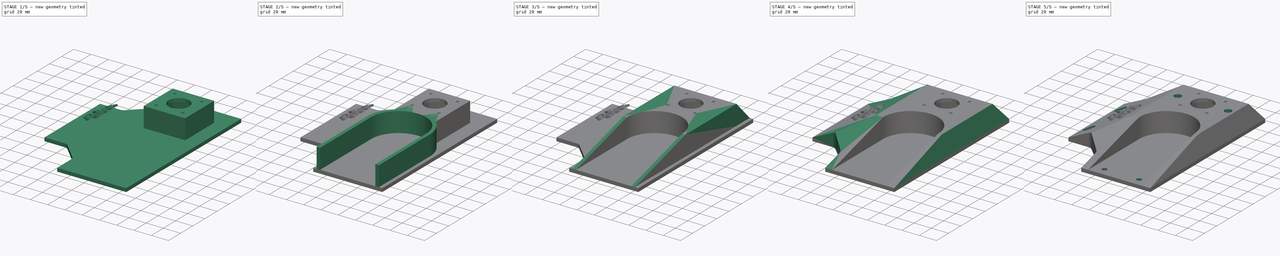
[diagram: build sequence overview — one tinted view per stage of 5, left to right]
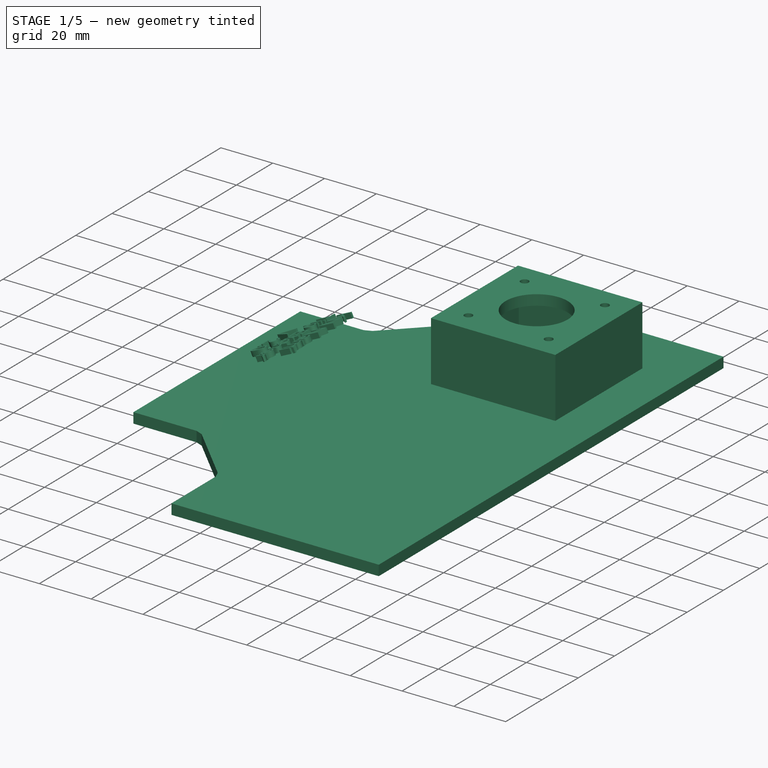
[diagram: stage 1 of 5 — iso view after this stage's code; geometry added in this stage tinted green]
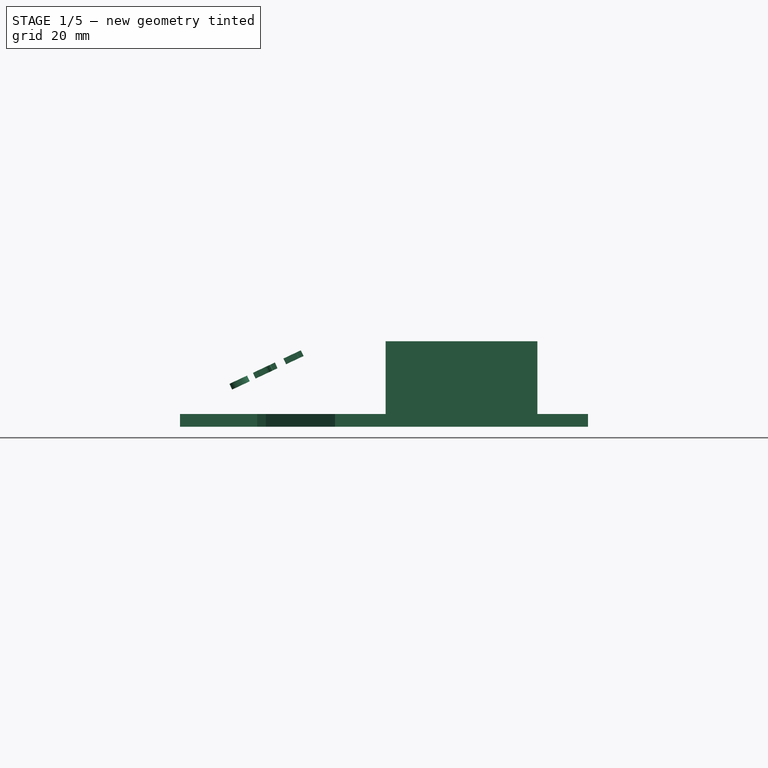
[diagram: stage 1 of 5 — front view after this stage's code; geometry added in this stage tinted green]
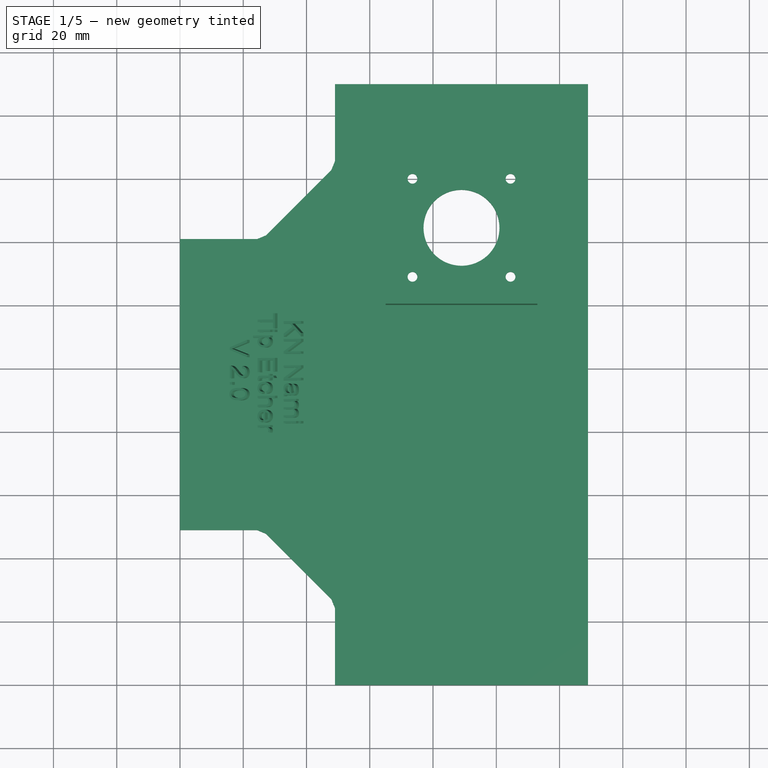
[diagram: stage 1 of 5 — top view after this stage's code; geometry added in this stage tinted green]
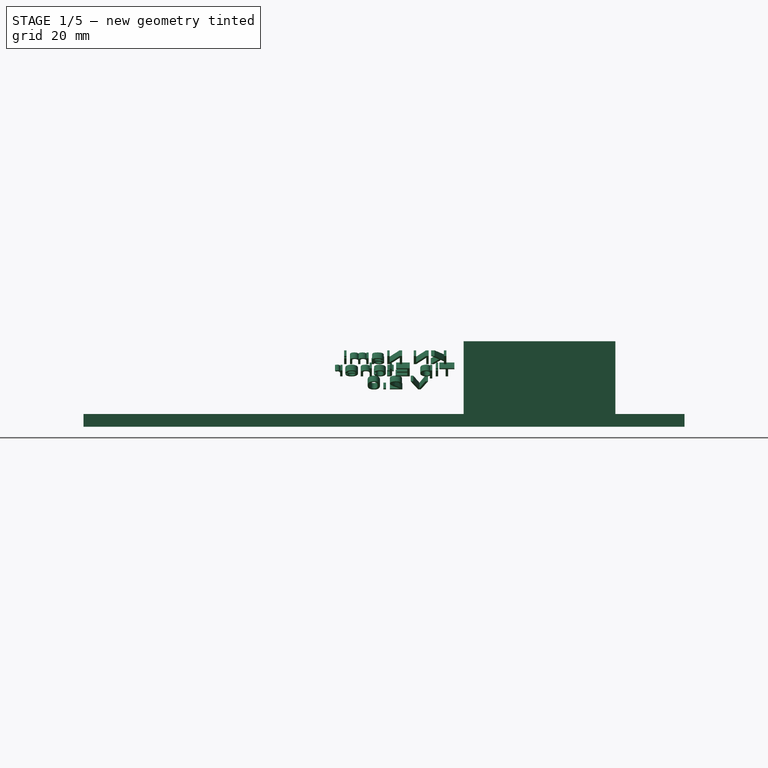
[diagram: stage 1 of 5 — right view after this stage's code; geometry added in this stage tinted green]
FCSTD DOCUMENT  (FreeCAD 1.0R39109 (Git))
Label: base
License: All rights reserved
LicenseURL: https://en.wikipedia.org/wiki/All_rights_reserved
objects: PartDesign::Pad×14, Sketcher::SketchObject×11, PartDesign::Chamfer×6, PartDesign::Pocket×4, PartDesign::Fillet×4, Part::Part2DObjectPython×3, Part::Extrusion×3, PartDesign::Hole×2, PartDesign::Body×1, App::DocumentObjectGroup×1
note: 119 computed .brp shape members not serialized (recipe doc carries the construction recipe); baked Part::Feature solids carry a one-line shape summary decoded from their .brp

FEATURE [Sketcher::SketchObject] Sketch
  ArcFitTolerance = 1e-06
  AttachmentSupport = -> [XY_Plane]
  FullyConstrained = true
  MakeInternals = false
  MapMode = 5
  sketch-geometry (72):
    g0: LineSegment [constr] StartX=0 StartY=0 StartZ=0 EndX=49 EndY=0 EndZ=0
    g1: LineSegment [constr] StartX=0 StartY=0 StartZ=0 EndX=0 EndY=49 EndZ=0
    g2: LineSegment StartX=0 StartY=49 StartZ=0 EndX=24.3764 EndY=49 EndZ=0
    g3: LineSegment StartX=49 StartY=0 StartZ=0 EndX=49 EndY=24.3764 EndZ=0
    g4: LineSegment StartX=47.8519 StartY=27.1481 StartZ=0 EndX=27.1481 EndY=47.8519 EndZ=0
    g5: ArcOfCircle [constr] CenterX=24.3764 CenterY=45.0803 CenterZ=0 NormalX=0 NormalY=0 NormalZ=1 AngleXU=0 Radius=3.91969 StartAngle=0.785398 EndAngle=1.5708
    g6: GeomPoint [constr] X=26 Y=49 Z=0
    g7: LineSegment StartX=27.1481 StartY=47.8519 StartZ=0 EndX=24.3764 EndY=49 EndZ=0
    g8: ArcOfCircle [constr] CenterX=45.0803 CenterY=24.3764 CenterZ=0 NormalX=0 NormalY=0 NormalZ=1 AngleXU=0 Radius=3.91969 StartAngle=2e-16 EndAngle=0.785398
    g9: GeomPoint [constr] X=49 Y=26 Z=0
    g10: LineSegment StartX=49 StartY=24.3764 StartZ=0 EndX=47.8519 EndY=27.1481 EndZ=0
    g11: LineSegment StartX=49 StartY=0 StartZ=0 EndX=129 EndY=0 EndZ=0
    g12: LineSegment StartX=129 StartY=0 StartZ=0 EndX=129 EndY=190 EndZ=0
    g13: LineSegment StartX=129 StartY=190 StartZ=0 EndX=49 EndY=190 EndZ=0
    g14: LineSegment StartX=49 StartY=190 StartZ=0 EndX=49 EndY=165.624 EndZ=0
    g15: LineSegment [constr] StartX=49 StartY=190 StartZ=0 EndX=0 EndY=190 EndZ=0
    g16: LineSegment [constr] StartX=0 StartY=190 StartZ=0 EndX=0 EndY=0 EndZ=0
    g17: LineSegment [constr] StartX=0 StartY=190 StartZ=0 EndX=0 EndY=141 EndZ=0
    g18: LineSegment StartX=0 StartY=141 StartZ=0 EndX=24.3764 EndY=141 EndZ=0
    g19: LineSegment StartX=27.1481 StartY=142.148 StartZ=0 EndX=47.8519 EndY=162.852 EndZ=0
    g20: ArcOfCircle [constr] CenterX=45.0803 CenterY=165.624 CenterZ=0 NormalX=0 NormalY=0 NormalZ=1 AngleXU=0 Radius=3.91969 StartAngle=5.49779 EndAngle=6.28319
    g21: GeomPoint [constr] X=49 Y=164 Z=0
    g22: LineSegment StartX=47.8519 StartY=162.852 StartZ=0 EndX=49 EndY=165.624 EndZ=0
    g23: ArcOfCircle [constr] CenterX=24.3764 CenterY=144.92 CenterZ=0 NormalX=0 NormalY=0 NormalZ=1 AngleXU=0 Radius=3.91969 StartAngle=4.71239 EndAngle=5.49779
    g24: GeomPoint [constr] X=26 Y=141 Z=0
    g25: LineSegment StartX=24.3764 StartY=141 StartZ=0 EndX=27.1481 EndY=142.148 EndZ=0
    g26: LineSegment StartX=0 StartY=141 StartZ=0 EndX=0 EndY=49 EndZ=0
    g27: LineSegment [constr] StartX=0 StartY=190 StartZ=0 EndX=0 EndY=144.16 EndZ=0
    g28: LineSegment [constr] StartX=0 StartY=144.16 StartZ=0 EndX=59.85 EndY=144.16 EndZ=0
    g29: Circle [constr] CenterX=59.85 CenterY=144.16 CenterZ=0 NormalX=0 NormalY=0 NormalZ=1 AngleXU=0 Radius=4.05
    g30: LineSegment [constr] StartX=59.85 StartY=144.16 StartZ=0 EndX=89 EndY=144.16 EndZ=0
    g31: LineSegment [constr] StartX=89 StartY=144.16 StartZ=0 EndX=118.15 EndY=144.16 EndZ=0
    g32: Circle [constr] CenterX=118.15 CenterY=144.16 CenterZ=0 NormalX=0 NormalY=0 NormalZ=1 AngleXU=0 Radius=4.05
    g33: Circle [constr] CenterX=89 CenterY=144.16 CenterZ=0 NormalX=0 NormalY=0 NormalZ=1 AngleXU=0 Radius=12
    g34: LineSegment [constr] StartX=89 StartY=144.16 StartZ=0 EndX=104.754 EndY=159.914 EndZ=0
    g35: Circle [constr] CenterX=104.754 CenterY=159.914 CenterZ=0 NormalX=0 NormalY=0 NormalZ=1 AngleXU=0 Radius=1.55
    g36: LineSegment [constr] StartX=104.754 StartY=159.914 StartZ=0 EndX=73.7543 EndY=159.914 EndZ=0
    g37: LineSegment [constr] StartX=73.7543 StartY=159.914 StartZ=0 EndX=73.7543 EndY=128.914 EndZ=0
    g38: LineSegment [constr] StartX=73.7543 StartY=128.914 StartZ=0 EndX=104.754 EndY=128.914 EndZ=0
    g39: LineSegment [constr] StartX=104.754 StartY=128.914 StartZ=0 EndX=104.754 EndY=159.914 EndZ=0
    g40: Circle [constr] CenterX=73.7543 CenterY=159.914 CenterZ=0 NormalX=0 NormalY=0 NormalZ=1 AngleXU=0 Radius=0
    g41: Circle [constr] CenterX=73.7543 CenterY=159.914 CenterZ=0 NormalX=0 NormalY=0 NormalZ=1 AngleXU=0 Radius=1.55
    g42: Circle [constr] CenterX=73.7543 CenterY=128.914 CenterZ=0 NormalX=0 NormalY=0 NormalZ=1 AngleXU=0 Radius=1.55
    g43: Circle [constr] CenterX=104.754 CenterY=128.914 CenterZ=0 NormalX=0 NormalY=0 NormalZ=1 AngleXU=0 Radius=1.55
    g44: LineSegment [constr] StartX=129 StartY=190 StartZ=0 EndX=129 EndY=180 EndZ=0
    g45: LineSegment [constr] StartX=129 StartY=180 StartZ=0 EndX=109 EndY=180 EndZ=0
    g46: Circle [constr] CenterX=109 CenterY=180 CenterZ=0 NormalX=0 NormalY=0 NormalZ=1 AngleXU=0 Radius=2.55
    g47: LineSegment [constr] StartX=49 StartY=190 StartZ=0 EndX=49 EndY=180 EndZ=0
    g48: LineSegment [constr] StartX=49 StartY=180 StartZ=0 EndX=69 EndY=180 EndZ=0
    g49: LineSegment [constr] StartX=69 StartY=180 StartZ=0 EndX=69 EndY=190 EndZ=0
    g50: LineSegment [constr] StartX=69 StartY=190 StartZ=0 EndX=49 EndY=190 EndZ=0
    g51: Circle [constr] CenterX=69 CenterY=180 CenterZ=0 NormalX=0 NormalY=0 NormalZ=1 AngleXU=0 Radius=2.55
    g52: LineSegment [constr] StartX=0 StartY=141 StartZ=0 EndX=0 EndY=121 EndZ=0
    g53: LineSegment [constr] StartX=0 StartY=121 StartZ=0 EndX=10 EndY=121 EndZ=0
    g54: LineSegment [constr] StartX=10 StartY=121 StartZ=0 EndX=10 EndY=141 EndZ=0
    g55: LineSegment [constr] StartX=10 StartY=141 StartZ=0 EndX=0 EndY=141 EndZ=0
    g56: LineSegment [constr] StartX=0 StartY=49 StartZ=0 EndX=10 EndY=49 EndZ=0
    g57: LineSegment [constr] StartX=10 StartY=49 StartZ=0 EndX=10 EndY=69 EndZ=0
    g58: LineSegment [constr] StartX=10 StartY=69 StartZ=0 EndX=0 EndY=69 EndZ=0
    g59: LineSegment [constr] StartX=0 StartY=69 StartZ=0 EndX=0 EndY=49 EndZ=0
    g60: Circle [constr] CenterX=10 CenterY=121 CenterZ=0 NormalX=0 NormalY=0 NormalZ=1 AngleXU=0 Radius=2.55
    g61: Circle [constr] CenterX=10 CenterY=69 CenterZ=0 NormalX=0 NormalY=0 NormalZ=1 AngleXU=0 Radius=2.55
    g62: LineSegment [constr] StartX=49 StartY=0 StartZ=0 EndX=69 EndY=0 EndZ=0
    g63: LineSegment [constr] StartX=69 StartY=0 StartZ=0 EndX=69 EndY=10 EndZ=0
    g64: LineSegment [constr] StartX=69 StartY=10 StartZ=0 EndX=49 EndY=10 EndZ=0
    g65: LineSegment [constr] StartX=49 StartY=10 StartZ=0 EndX=49 EndY=0 EndZ=0
    g66: LineSegment [constr] StartX=129 StartY=0 StartZ=0 EndX=129 EndY=10 EndZ=0
    g67: LineSegment [constr] StartX=129 StartY=10 StartZ=0 EndX=109 EndY=10 EndZ=0
    g68: LineSegment [constr] StartX=109 StartY=10 StartZ=0 EndX=109 EndY=0 EndZ=0
    g69: LineSegment [constr] StartX=109 StartY=0 StartZ=0 EndX=129 EndY=0 EndZ=0
    g70: Circle [constr] CenterX=69 CenterY=10 CenterZ=0 NormalX=0 NormalY=0 NormalZ=1 AngleXU=0 Radius=2.55
    g71: Circle [constr] CenterX=109 CenterY=10 CenterZ=0 NormalX=0 NormalY=0 NormalZ=1 AngleXU=0 Radius=2.55
  constraints (180):
    c: Distance(g0) = 49
    c: Coincident(g0,g-1)
    c: PointOnObject(g0,g-1)
    c: Distance(g1) = 49
    c: Coincident(g1,g0)
    c: PointOnObject(g1,g-2)
    c: Distance(g2,g6) = 26
    c: Coincident(g2,g1)
    c: Horizontal(g2)
    c: Distance(g3,g9) = 26
    c: Coincident(g3,g0)
    c: Vertical(g3)
    c: PointOnObject(g6,g2)
    c: PointOnObject(g6,g4)
    c: Tangent(g2,g5) = 1.5708
    c: Tangent(g4,g5) = -1.5708
    c: Coincident(g7,g2)
    c: Coincident(g7,g4)
    c: PointOnObject(g9,g3)
    c: PointOnObject(g9,g4)
    c: Tangent(g3,g8) = -1.5708
    c: Tangent(g4,g8) = -1.5708
    c: Coincident(g10,g3)
    c: Coincident(g10,g4)
    c: Distance(g10,g10) = 3
    c: Distance(g7,g7) = 3
    c: Distance(g11) = 80
    c: Coincident(g11,g0)
    c: PointOnObject(g11,g-1)
    c: Distance(g12) = 190
    c: Coincident(g12,g11)
    c: Vertical(g12)
    c: Distance(g13) = 80
    c: Coincident(g13,g12)
    c: Horizontal(g13)
    c: Distance(g14,g21) = 26
    c: Coincident(g14,g13)
    c: Vertical(g14)
    c: Coincident(g15,g13)
    c: PointOnObject(g15,g-2)
    c: Horizontal(g15)
    c: Coincident(g16,g15)
    c: Coincident(g16,g0)
    c: Distance(g17) = 49
    c: Coincident(g17,g15)
    c: PointOnObject(g17,g16)
    c: Distance(g18,g24) = 26
    c: Coincident(g18,g17)
    c: Horizontal(g18)
    c: PointOnObject(g21,g14)
    c: PointOnObject(g21,g19)
    c: Tangent(g14,g20) = 1.5708
    c: Tangent(g19,g20) = -1.5708
    c: Coincident(g22,g14)
    c: Coincident(g22,g19)
    c: PointOnObject(g24,g18)
    c: PointOnObject(g24,g19)
    c: Tangent(g18,g23) = -1.5708
    c: Tangent(g19,g23) = -1.5708
    c: Coincident(g25,g18)
    c: Coincident(g25,g19)
    c: Distance(g25,g25) = 3
    c: Distance(g22,g22) = 3
    c: Coincident(g26,g17)
    c: Coincident(g26,g1)
    c: Distance(g27) = 45.84
    c: Coincident(g27,g15)
    c: PointOnObject(g27,g16)
    c: Distance(g28) = 59.85
    c: Coincident(g28,g27)
    c: Horizontal(g28)
    c: Diameter(g29) = 8.1
    c: Coincident(g29,g28)
    c: Distance(g30) = 29.15
    c: Coincident(g30,g28)
    c: Horizontal(g30)
    c: Distance(g31) = 29.15
    c: Coincident(g31,g30)
    c: Horizontal(g31)
    c: Diameter(g32) = 8.1
    c: Coincident(g32,g31)
    c: Diameter(g33) = 24
    c: Coincident(g33,g30)
    c: Distance(g34) = 22.28
    c: Angle(g-1,g34) = 0.785398
    c: Coincident(g34,g30)
    c: Diameter(g35) = 3.1
    c: Coincident(g35,g34)
    c: Coincident(g36,g37)
    c: Coincident(g37,g38)
    c: Coincident(g38,g39)
    c: Coincident(g39,g36)
    c: Horizontal(g36)
    c: Horizontal(g38)
    c: Vertical(g37)
    c: Vertical(g39)
    c: Distance(g37,g39) = 31
    c: Distance(g36,g38) = 31
    c: Coincident(g36,g34)
    c: Coincident(g40,g36)
    c: Tangent(g40,g36)
    c: Diameter(g41) = 3.1
    c: Coincident(g41,g36)
    c: Diameter(g42) = 3.1
    c: Coincident(g42,g37)
    c: Diameter(g43) = 3.1
    c: Coincident(g43,g38)
    c: Distance(g44) = 10
    c: Coincident(g44,g12)
    c: PointOnObject(g44,g12)
    c: Distance(g45) = 20
    c: Coincident(g45,g44)
    c: Horizontal(g45)
    c: Diameter(g46) = 5.1
    c: Coincident(g46,g45)
    c: Coincident(g47,g48)
    c: Coincident(g48,g49)
    c: Coincident(g49,g50)
    c: Coincident(g50,g47)
    c: Vertical(g47)
    c: Vertical(g49)
    c: Horizontal(g48)
    c: Horizontal(g50)
    c: Distance(g47,g49) = 20
    c: Distance(g48,g50) = 10
    c: Coincident(g47,g13)
    c: Diameter(g51) = 5.1
    c: Coincident(g51,g48)
    c: Coincident(g52,g53)
    c: Coincident(g53,g54)
    c: Coincident(g54,g55)
    c: Coincident(g55,g52)
    c: Vertical(g52)
    c: Vertical(g54)
    c: Horizontal(g53)
    c: Horizontal(g55)
    c: Distance(g52,g54) = 10
    c: Distance(g53,g55) = 20
    c: Coincident(g52,g17)
    c: Coincident(g56,g57)
    c: Coincident(g57,g58)
    c: Coincident(g58,g59)
    c: Coincident(g59,g56)
    c: Horizontal(g56)
    c: Horizontal(g58)
    c: Vertical(g57)
    c: Vertical(g59)
    c: Distance(g57,g59) = 10
    c: Distance(g56,g58) = 20
    c: Coincident(g56,g1)
    c: Diameter(g60) = 5.1
    c: Coincident(g60,g53)
    c: Diameter(g61) = 5.1
    c: Coincident(g61,g57)
    c: Coincident(g62,g63)
    c: Coincident(g63,g64)
    c: Coincident(g64,g65)
    c: Coincident(g65,g62)
    c: Horizontal(g62)
    c: Horizontal(g64)
    c: Vertical(g63)
    c: Vertical(g65)
    c: Distance(g63,g65) = 20
    c: Distance(g62,g64) = 10
    c: Coincident(g62,g0)
    c: Coincident(g66,g67)
    c: Coincident(g67,g68)
    c: Coincident(g68,g69)
    c: Coincident(g69,g66)
    c: Vertical(g66)
    c: Vertical(g68)
    c: Horizontal(g67)
    c: Horizontal(g69)
    c: Distance(g66,g68) = 20
    c: Distance(g67,g69) = 10
    c: Coincident(g66,g11)
    c: Diameter(g70) = 5.1
    c: Coincident(g70,g63)
    c: Diameter(g71) = 5.1
    c: Coincident(g71,g67)
FEATURE [PartDesign::Pad] Pad
  Direction = (0,0,1)
  Length = 4
  Length2 = 10
  Profile = -> Sketch
  ReferenceAxis = -> Sketch [N_Axis]
  Refine = true
  Reversed = true
  Suppressed = false
  Type = 0
FEATURE [Sketcher::SketchObject] Sketch001
  ArcFitTolerance = 1e-06
  AttachmentSupport = -> [Pad]
  FullyConstrained = true
  MakeInternals = false
  MapMode = 5
  sketch-geometry (86):
    g0: LineSegment [constr] StartX=0 StartY=0 StartZ=0 EndX=49 EndY=0 EndZ=0
    g1: LineSegment [constr] StartX=0 StartY=0 StartZ=0 EndX=0 EndY=49 EndZ=0
    g2: LineSegment [constr] StartX=0 StartY=49 StartZ=0 EndX=24.3764 EndY=49 EndZ=0
    g3: LineSegment [constr] StartX=49 StartY=0 StartZ=0 EndX=49 EndY=24.3764 EndZ=0
    g4: LineSegment [constr] StartX=47.8519 StartY=27.1481 StartZ=0 EndX=27.1481 EndY=47.8519 EndZ=0
    g5: ArcOfCircle [constr] CenterX=24.3764 CenterY=45.0803 CenterZ=0 NormalX=0 NormalY=0 NormalZ=1 AngleXU=0 Radius=3.91969 StartAngle=0.785398 EndAngle=1.5708
    g6: GeomPoint [constr] X=26 Y=49 Z=0
    g7: LineSegment [constr] StartX=27.1481 StartY=47.8519 StartZ=0 EndX=24.3764 EndY=49 EndZ=0
    g8: ArcOfCircle [constr] CenterX=45.0803 CenterY=24.3764 CenterZ=0 NormalX=0 NormalY=0 NormalZ=1 AngleXU=0 Radius=3.91969 StartAngle=0 EndAngle=0.785398
    g9: GeomPoint [constr] X=49 Y=26 Z=0
    g10: LineSegment [constr] StartX=49 StartY=24.3764 StartZ=0 EndX=47.8519 EndY=27.1481 EndZ=0
    g11: LineSegment [constr] StartX=49 StartY=0 StartZ=0 EndX=129 EndY=0 EndZ=0
    g12: LineSegment [constr] StartX=129 StartY=0 StartZ=0 EndX=129 EndY=190 EndZ=0
    g13: LineSegment [constr] StartX=129 StartY=190 StartZ=0 EndX=49 EndY=190 EndZ=0
    g14: LineSegment [constr] StartX=49 StartY=190 StartZ=0 EndX=49 EndY=165.624 EndZ=0
    g15: LineSegment [constr] StartX=49 StartY=190 StartZ=0 EndX=0 EndY=190 EndZ=0
    g16: LineSegment [constr] StartX=0 StartY=190 StartZ=0 EndX=0 EndY=0 EndZ=0
    g17: LineSegment [constr] StartX=0 StartY=190 StartZ=0 EndX=0 EndY=141 EndZ=0
    g18: LineSegment [constr] StartX=0 StartY=141 StartZ=0 EndX=24.3764 EndY=141 EndZ=0
    g19: LineSegment [constr] StartX=27.1481 StartY=142.148 StartZ=0 EndX=47.8519 EndY=162.852 EndZ=0
    g20: ArcOfCircle [constr] CenterX=45.0803 CenterY=165.624 CenterZ=0 NormalX=0 NormalY=0 NormalZ=1 AngleXU=0 Radius=3.91969 StartAngle=5.49779 EndAngle=6.28319
    g21: GeomPoint [constr] X=49 Y=164 Z=0
    g22: LineSegment [constr] StartX=47.8519 StartY=162.852 StartZ=0 EndX=49 EndY=165.624 EndZ=0
    g23: ArcOfCircle [constr] CenterX=24.3764 CenterY=144.92 CenterZ=0 NormalX=0 NormalY=0 NormalZ=1 AngleXU=0 Radius=3.91969 StartAngle=4.71239 EndAngle=5.49779
    g24: GeomPoint [constr] X=26 Y=141 Z=0
    g25: LineSegment [constr] StartX=24.3764 StartY=141 StartZ=0 EndX=27.1481 EndY=142.148 EndZ=0
    g26: LineSegment [constr] StartX=0 StartY=141 StartZ=0 EndX=0 EndY=49 EndZ=0
    g27: LineSegment [constr] StartX=0 StartY=190 StartZ=0 EndX=0 EndY=144.16 EndZ=0
    g28: LineSegment [constr] StartX=0 StartY=144.16 StartZ=0 EndX=59.85 EndY=144.16 EndZ=0
    g29: Circle [constr] CenterX=59.85 CenterY=144.16 CenterZ=0 NormalX=0 NormalY=0 NormalZ=1 AngleXU=0 Radius=4.05
    g30: LineSegment [constr] StartX=59.85 StartY=144.16 StartZ=0 EndX=89 EndY=144.16 EndZ=0
    g31: LineSegment [constr] StartX=89 StartY=144.16 StartZ=0 EndX=118.15 EndY=144.16 EndZ=0
    g32: Circle [constr] CenterX=118.15 CenterY=144.16 CenterZ=0 NormalX=0 NormalY=0 NormalZ=1 AngleXU=0 Radius=4.05
    g33: Circle [constr] CenterX=89 CenterY=144.16 CenterZ=0 NormalX=0 NormalY=0 NormalZ=1 AngleXU=0 Radius=12
    g34: LineSegment [constr] StartX=89 StartY=144.16 StartZ=0 EndX=104.5 EndY=159.66 EndZ=0
    g35: Circle [constr] CenterX=104.5 CenterY=159.66 CenterZ=0 NormalX=0 NormalY=0 NormalZ=1 AngleXU=0 Radius=1.55
    g36: LineSegment [constr] StartX=129 StartY=190 StartZ=0 EndX=129 EndY=180 EndZ=0
    g37: LineSegment [constr] StartX=129 StartY=180 StartZ=0 EndX=109 EndY=180 EndZ=0
    g38: Circle [constr] CenterX=109 CenterY=180 CenterZ=0 NormalX=0 NormalY=0 NormalZ=1 AngleXU=0 Radius=2.55
    g39: LineSegment [constr] StartX=49 StartY=190 StartZ=0 EndX=49 EndY=180 EndZ=0
    g40: LineSegment [constr] StartX=49 StartY=180 StartZ=0 EndX=69 EndY=180 EndZ=0
    g41: LineSegment [constr] StartX=69 StartY=180 StartZ=0 EndX=69 EndY=190 EndZ=0
    g42: LineSegment [constr] StartX=69 StartY=190 StartZ=0 EndX=49 EndY=190 EndZ=0
    g43: Circle [constr] CenterX=69 CenterY=180 CenterZ=0 NormalX=0 NormalY=0 NormalZ=1 AngleXU=0 Radius=2.55
    g44: LineSegment [constr] StartX=0 StartY=141 StartZ=0 EndX=0 EndY=121 EndZ=0
    g45: LineSegment [constr] StartX=0 StartY=121 StartZ=0 EndX=10 EndY=121 EndZ=0
    g46: LineSegment [constr] StartX=10 StartY=121 StartZ=0 EndX=10 EndY=141 EndZ=0
    g47: LineSegment [constr] StartX=10 StartY=141 StartZ=0 EndX=0 EndY=141 EndZ=0
    g48: LineSegment [constr] StartX=0 StartY=49 StartZ=0 EndX=10 EndY=49 EndZ=0
    g49: LineSegment [constr] StartX=10 StartY=49 StartZ=0 EndX=10 EndY=69 EndZ=0
    g50: LineSegment [constr] StartX=10 StartY=69 StartZ=0 EndX=0 EndY=69 EndZ=0
    g51: LineSegment [constr] StartX=0 StartY=69 StartZ=0 EndX=0 EndY=49 EndZ=0
    g52: Circle [constr] CenterX=10 CenterY=121 CenterZ=0 NormalX=0 NormalY=0 NormalZ=1 AngleXU=0 Radius=2.55
    g53: Circle [constr] CenterX=10 CenterY=69 CenterZ=0 NormalX=0 NormalY=0 NormalZ=1 AngleXU=0 Radius=2.55
    g54: LineSegment [constr] StartX=49 StartY=0 StartZ=0 EndX=69 EndY=0 EndZ=0
    g55: LineSegment [constr] StartX=69 StartY=0 StartZ=0 EndX=69 EndY=10 EndZ=0
    g56: LineSegment [constr] StartX=69 StartY=10 StartZ=0 EndX=49 EndY=10 EndZ=0
    g57: LineSegment [constr] StartX=49 StartY=10 StartZ=0 EndX=49 EndY=0 EndZ=0
    g58: LineSegment [constr] StartX=129 StartY=0 StartZ=0 EndX=129 EndY=10 EndZ=0
    g59: LineSegment [constr] StartX=129 StartY=10 StartZ=0 EndX=109 EndY=10 EndZ=0
    g60: LineSegment [constr] StartX=109 StartY=10 StartZ=0 EndX=109 EndY=0 EndZ=0
    g61: LineSegment [constr] StartX=109 StartY=0 StartZ=0 EndX=129 EndY=0 EndZ=0
    g62: Circle [constr] CenterX=69 CenterY=10 CenterZ=0 NormalX=0 NormalY=0 NormalZ=1 AngleXU=0 Radius=2.55
    g63: Circle [constr] CenterX=109 CenterY=10 CenterZ=0 NormalX=0 NormalY=0 NormalZ=1 AngleXU=0 Radius=2.55
    g64: LineSegment [constr] StartX=89 StartY=144.16 StartZ=0 EndX=73.5 EndY=144.16 EndZ=0
    g65: LineSegment [constr] StartX=73.5 StartY=144.16 StartZ=0 EndX=73.5 EndY=128.66 EndZ=0
    g66: LineSegment [constr] StartX=73.5 StartY=128.66 StartZ=0 EndX=89 EndY=128.66 EndZ=0
    g67: LineSegment [constr] StartX=89 StartY=128.66 StartZ=0 EndX=89 EndY=144.16 EndZ=0
    g68: LineSegment StartX=65.9 StartY=121.06 StartZ=0 EndX=112.1 EndY=121.06 EndZ=0
    g69: LineSegment StartX=112.1 StartY=121.06 StartZ=0 EndX=112.1 EndY=167.26 EndZ=0
    g70: LineSegment StartX=112.1 StartY=167.26 StartZ=0 EndX=65.9 EndY=167.26 EndZ=0
    g71: LineSegment StartX=65.9 StartY=167.26 StartZ=0 EndX=65.9 EndY=121.06 EndZ=0
    g72: GeomPoint [constr] X=89 Y=144.16 Z=0
    g73: LineSegment [constr] StartX=73.5002 StartY=128.66 StartZ=0 EndX=104.5 EndY=128.66 EndZ=0
    g74: LineSegment [constr] StartX=104.5 StartY=128.66 StartZ=0 EndX=104.5 EndY=159.66 EndZ=0
    g75: LineSegment [constr] StartX=104.5 StartY=159.66 StartZ=0 EndX=73.5002 EndY=159.66 EndZ=0
    g76: LineSegment [constr] StartX=73.5002 StartY=159.66 StartZ=0 EndX=73.5002 EndY=128.66 EndZ=0
    g77: GeomPoint [constr] X=89 Y=144.16 Z=0
    g78: LineSegment [constr] StartX=65 StartY=120.16 StartZ=0 EndX=113 EndY=120.16 EndZ=0
    g79: LineSegment [constr] StartX=113 StartY=120.16 StartZ=0 EndX=113 EndY=168.16 EndZ=0
    g80: LineSegment [constr] StartX=113 StartY=168.16 StartZ=0 EndX=65 EndY=168.16 EndZ=0
    g81: LineSegment [constr] StartX=65 StartY=168.16 StartZ=0 EndX=65 EndY=120.16 EndZ=0
    g82: GeomPoint [constr] X=89 Y=144.16 Z=0
    g83: Circle [constr] CenterX=73.5002 CenterY=159.66 CenterZ=0 NormalX=0 NormalY=0 NormalZ=1 AngleXU=0 Radius=1.55
    g84: Circle [constr] CenterX=73.5 CenterY=128.66 CenterZ=0 NormalX=0 NormalY=0 NormalZ=1 AngleXU=0 Radius=1.55
    g85: Circle [constr] CenterX=104.5 CenterY=128.66 CenterZ=0 NormalX=0 NormalY=0 NormalZ=1 AngleXU=0 Radius=1.55
  constraints (213):
    c: Distance(g0) = 49
    c: Coincident(g0,g-1)
    c: PointOnObject(g0,g-1)
    c: Distance(g1) = 49
    c: Coincident(g1,g0)
    c: PointOnObject(g1,g-2)
    c: Distance(g2,g6) = 26
    c: Coincident(g2,g1)
    c: Horizontal(g2)
    c: Distance(g3,g9) = 26
    c: Coincident(g3,g0)
    c: Vertical(g3)
    c: PointOnObject(g6,g2)
    c: PointOnObject(g6,g4)
    c: Tangent(g2,g5) = 1.5708
    c: Tangent(g4,g5) = -1.5708
    c: Coincident(g7,g2)
    c: Coincident(g7,g4)
    c: PointOnObject(g9,g3)
    c: PointOnObject(g9,g4)
    c: Tangent(g3,g8) = -1.5708
    c: Tangent(g4,g8) = -1.5708
    c: Coincident(g10,g3)
    c: Coincident(g10,g4)
    c: Distance(g10,g10) = 3
    c: Distance(g7,g7) = 3
    c: Distance(g11) = 80
    c: Coincident(g11,g0)
    c: PointOnObject(g11,g-1)
    c: Distance(g12) = 190
    c: Coincident(g12,g11)
    c: Vertical(g12)
    c: Distance(g13) = 80
    c: Coincident(g13,g12)
    c: Horizontal(g13)
    c: Distance(g14,g21) = 26
    c: Coincident(g14,g13)
    c: Vertical(g14)
    c: Coincident(g15,g13)
    c: PointOnObject(g15,g-2)
    c: Horizontal(g15)
    c: Coincident(g16,g15)
    c: Coincident(g16,g0)
    c: Distance(g17) = 49
    c: Coincident(g17,g15)
    c: PointOnObject(g17,g16)
    c: Distance(g18,g24) = 26
    c: Coincident(g18,g17)
    c: Horizontal(g18)
    c: PointOnObject(g21,g14)
    c: PointOnObject(g21,g19)
    c: Tangent(g14,g20) = 1.5708
    c: Tangent(g19,g20) = -1.5708
    c: Coincident(g22,g14)
    c: Coincident(g22,g19)
    c: PointOnObject(g24,g18)
    c: PointOnObject(g24,g19)
    c: Tangent(g18,g23) = -1.5708
    c: Tangent(g19,g23) = -1.5708
    c: Coincident(g25,g18)
    c: Coincident(g25,g19)
    c: Distance(g25,g25) = 3
    c: Distance(g22,g22) = 3
    c: Coincident(g26,g17)
    c: Coincident(g26,g1)
    c: Distance(g27) = 45.84
    c: Coincident(g27,g15)
    c: PointOnObject(g27,g16)
    c: Distance(g28) = 59.85
    c: Coincident(g28,g27)
    c: Horizontal(g28)
    c: Diameter(g29) = 8.1
    c: Coincident(g29,g28)
    c: Distance(g30) = 29.15
    c: Coincident(g30,g28)
    c: Horizontal(g30)
    c: Distance(g31) = 29.15
    c: Coincident(g31,g30)
    c: Horizontal(g31)
    c: Diameter(g32) = 8.1
    c: Coincident(g32,g31)
    c: Diameter(g33) = 24
    c: Coincident(g33,g30)
    c: Distance(g34) = 21.92
    c: Angle(g-1,g34) = 0.785398
    c: Coincident(g34,g30)
    c: Diameter(g35) = 3.1
    c: Coincident(g35,g34)
    c: Distance(g36) = 10
    c: Coincident(g36,g12)
    c: PointOnObject(g36,g12)
    c: Distance(g37) = 20
    c: Coincident(g37,g36)
    c: Horizontal(g37)
    c: Diameter(g38) = 5.1
    c: Coincident(g38,g37)
    c: Coincident(g39,g40)
    c: Coincident(g40,g41)
    c: Coincident(g41,g42)
    c: Coincident(g42,g39)
    c: Vertical(g39)
    c: Vertical(g41)
    c: Horizontal(g40)
    c: Horizontal(g42)
    c: Distance(g39,g41) = 20
    c: Distance(g40,g42) = 10
    c: Coincident(g39,g13)
    c: Diameter(g43) = 5.1
    c: Coincident(g43,g40)
    c: Coincident(g44,g45)
    c: Coincident(g45,g46)
    c: Coincident(g46,g47)
    c: Coincident(g47,g44)
    c: Vertical(g44)
    c: Vertical(g46)
    c: Horizontal(g45)
    c: Horizontal(g47)
    c: Distance(g44,g46) = 10
    c: Distance(g45,g47) = 20
    c: Coincident(g44,g17)
    c: Coincident(g48,g49)
    c: Coincident(g49,g50)
    c: Coincident(g50,g51)
    c: Coincident(g51,g48)
    c: Horizontal(g48)
    c: Horizontal(g50)
    c: Vertical(g49)
    c: Vertical(g51)
    c: Distance(g49,g51) = 10
    c: Distance(g48,g50) = 20
    c: Coincident(g48,g1)
    c: Diameter(g52) = 5.1
    c: Coincident(g52,g45)
    c: Diameter(g53) = 5.1
    c: Coincident(g53,g49)
    c: Coincident(g54,g55)
    c: Coincident(g55,g56)
    c: Coincident(g56,g57)
    c: Coincident(g57,g54)
    c: Horizontal(g54)
    c: Horizontal(g56)
    c: Vertical(g55)
    c: Vertical(g57)
    c: Distance(g55,g57) = 20
    c: Distance(g54,g56) = 10
    c: Coincident(g54,g0)
    c: Coincident(g58,g59)
    c: Coincident(g59,g60)
    c: Coincident(g60,g61)
    c: Coincident(g61,g58)
    c: Vertical(g58)
    c: Vertical(g60)
    c: Horizontal(g59)
    c: Horizontal(g61)
    c: Distance(g58,g60) = 20
    c: Distance(g59,g61) = 10
    c: Coincident(g58,g11)
    c: Diameter(g62) = 5.1
    c: Coincident(g62,g55)
    c: Diameter(g63) = 5.1
    c: Coincident(g63,g59)
    c: Coincident(g64,g65)
    c: Coincident(g65,g66)
    c: Coincident(g66,g67)
    c: Coincident(g67,g64)
    c: Horizontal(g64)
    c: Horizontal(g66)
    c: Vertical(g65)
    c: Vertical(g67)
    c: Distance(g65,g67) = 15.5
    c: Distance(g64,g66) = 15.5
    c: Coincident(g64,g30)
    c: Coincident(g68,g69)
    c: Coincident(g69,g70)
    c: Coincident(g70,g71)
    c: Coincident(g71,g68)
    c: Horizontal(g68)
    c: Horizontal(g70)
    c: Vertical(g69)
    c: Vertical(g71)
    c: Symmetric(g70,g68,g72)
    c: Distance(g69,g71) = 46.2
    c: Distance(g68,g70) = 46.2
    c: Coincident(g72,g30)
    c: Coincident(g73,g74)
    c: Coincident(g74,g75)
    c: Coincident(g75,g76)
    c: Coincident(g76,g73)
    c: Horizontal(g73)
    c: Horizontal(g75)
    c: Vertical(g74)
    c: Vertical(g76)
    c: Symmetric(g75,g73,g77)
    c: Coincident(g77,g30)
    c: Coincident(g74,g34)
    c: Coincident(g78,g79)
    c: Coincident(g79,g80)
    c: Coincident(g80,g81)
    c: Coincident(g81,g78)
    c: Horizontal(g78)
    c: Horizontal(g80)
    c: Vertical(g79)
    c: Vertical(g81)
    c: Symmetric(g80,g78,g82)
    c: Distance(g79,g81) = 48
    c: Distance(g78,g80) = 48
    c: Coincident(g82,g30)
    c: Diameter(g83) = 3.1
    c: Coincident(g83,g75)
    c: Diameter(g84) = 3.1
    c: Coincident(g84,g65)
    c: Diameter(g85) = 3.1
    c: Coincident(g85,g73)
FEATURE [PartDesign::Pocket] Pocket
  BaseFeature = -> Pad
  Direction = (0,0,-1)
  Length = 5
  Length2 = 5
  Profile = -> Sketch001
  ReferenceAxis = -> Sketch001 [N_Axis]
  Refine = true
  Suppressed = false
  Type = 0
FEATURE [Sketcher::SketchObject] Sketch002
  ArcFitTolerance = 1e-06
  AttachmentSupport = -> [Pocket]
  FullyConstrained = true
  MakeInternals = false
  MapMode = 5
  sketch-geometry (86):
    g0: LineSegment [constr] StartX=0 StartY=0 StartZ=0 EndX=49 EndY=0 EndZ=0
    g1: LineSegment [constr] StartX=0 StartY=0 StartZ=0 EndX=0 EndY=49 EndZ=0
    g2: LineSegment [constr] StartX=0 StartY=49 StartZ=0 EndX=24.3764 EndY=49 EndZ=0
    g3: LineSegment [constr] StartX=49 StartY=0 StartZ=0 EndX=49 EndY=24.3764 EndZ=0
    g4: LineSegment [constr] StartX=47.8519 StartY=27.1481 StartZ=0 EndX=27.1481 EndY=47.8519 EndZ=0
    g5: ArcOfCircle [constr] CenterX=24.3764 CenterY=45.0803 CenterZ=0 NormalX=0 NormalY=0 NormalZ=1 AngleXU=0 Radius=3.91969 StartAngle=0.785398 EndAngle=1.5708
    g6: GeomPoint [constr] X=26 Y=49 Z=0
    g7: LineSegment [constr] StartX=27.1481 StartY=47.8519 StartZ=0 EndX=24.3764 EndY=49 EndZ=0
    g8: ArcOfCircle [constr] CenterX=45.0803 CenterY=24.3764 CenterZ=0 NormalX=0 NormalY=0 NormalZ=1 AngleXU=0 Radius=3.91969 StartAngle=0 EndAngle=0.785398
    g9: GeomPoint [constr] X=49 Y=26 Z=0
    g10: LineSegment [constr] StartX=49 StartY=24.3764 StartZ=0 EndX=47.8519 EndY=27.1481 EndZ=0
    g11: LineSegment [constr] StartX=49 StartY=0 StartZ=0 EndX=129 EndY=0 EndZ=0
    g12: LineSegment [constr] StartX=129 StartY=0 StartZ=0 EndX=129 EndY=190 EndZ=0
    g13: LineSegment [constr] StartX=129 StartY=190 StartZ=0 EndX=49 EndY=190 EndZ=0
    g14: LineSegment [constr] StartX=49 StartY=190 StartZ=0 EndX=49 EndY=165.624 EndZ=0
    g15: LineSegment [constr] StartX=49 StartY=190 StartZ=0 EndX=0 EndY=190 EndZ=0
    g16: LineSegment [constr] StartX=0 StartY=190 StartZ=0 EndX=0 EndY=0 EndZ=0
    g17: LineSegment [constr] StartX=0 StartY=190 StartZ=0 EndX=0 EndY=141 EndZ=0
    g18: LineSegment [constr] StartX=0 StartY=141 StartZ=0 EndX=24.3764 EndY=141 EndZ=0
    g19: LineSegment [constr] StartX=27.1481 StartY=142.148 StartZ=0 EndX=47.8519 EndY=162.852 EndZ=0
    g20: ArcOfCircle [constr] CenterX=45.0803 CenterY=165.624 CenterZ=0 NormalX=0 NormalY=0 NormalZ=1 AngleXU=0 Radius=3.91969 StartAngle=5.49779 EndAngle=6.28319
    g21: GeomPoint [constr] X=49 Y=164 Z=0
    g22: LineSegment [constr] StartX=47.8519 StartY=162.852 StartZ=0 EndX=49 EndY=165.624 EndZ=0
    g23: ArcOfCircle [constr] CenterX=24.3764 CenterY=144.92 CenterZ=0 NormalX=0 NormalY=0 NormalZ=1 AngleXU=0 Radius=3.91969 StartAngle=4.71239 EndAngle=5.49779
    g24: GeomPoint [constr] X=26 Y=141 Z=0
    g25: LineSegment [constr] StartX=24.3764 StartY=141 StartZ=0 EndX=27.1481 EndY=142.148 EndZ=0
    g26: LineSegment [constr] StartX=0 StartY=141 StartZ=0 EndX=0 EndY=49 EndZ=0
    g27: LineSegment [constr] StartX=0 StartY=190 StartZ=0 EndX=0 EndY=144.16 EndZ=0
    g28: LineSegment [constr] StartX=0 StartY=144.16 StartZ=0 EndX=59.85 EndY=144.16 EndZ=0
    g29: Circle [constr] CenterX=59.85 CenterY=144.16 CenterZ=0 NormalX=0 NormalY=0 NormalZ=1 AngleXU=0 Radius=4.05
    g30: LineSegment [constr] StartX=59.85 StartY=144.16 StartZ=0 EndX=89 EndY=144.16 EndZ=0
    g31: LineSegment [constr] StartX=89 StartY=144.16 StartZ=0 EndX=118.15 EndY=144.16 EndZ=0
    g32: Circle [constr] CenterX=118.15 CenterY=144.16 CenterZ=0 NormalX=0 NormalY=0 NormalZ=1 AngleXU=0 Radius=4.05
    g33: Circle [constr] CenterX=89 CenterY=144.16 CenterZ=0 NormalX=0 NormalY=0 NormalZ=1 AngleXU=0 Radius=12
    g34: LineSegment [constr] StartX=89 StartY=144.16 StartZ=0 EndX=104.5 EndY=159.66 EndZ=0
    g35: Circle [constr] CenterX=104.5 CenterY=159.66 CenterZ=0 NormalX=0 NormalY=0 NormalZ=1 AngleXU=0 Radius=1.55
    g36: LineSegment [constr] StartX=129 StartY=190 StartZ=0 EndX=129 EndY=180 EndZ=0
    g37: LineSegment [constr] StartX=129 StartY=180 StartZ=0 EndX=109 EndY=180 EndZ=0
    g38: Circle [constr] CenterX=109 CenterY=180 CenterZ=0 NormalX=0 NormalY=0 NormalZ=1 AngleXU=0 Radius=2.55
    g39: LineSegment [constr] StartX=49 StartY=190 StartZ=0 EndX=49 EndY=180 EndZ=0
    g40: LineSegment [constr] StartX=49 StartY=180 StartZ=0 EndX=69 EndY=180 EndZ=0
    g41: LineSegment [constr] StartX=69 StartY=180 StartZ=0 EndX=69 EndY=190 EndZ=0
    g42: LineSegment [constr] StartX=69 StartY=190 StartZ=0 EndX=49 EndY=190 EndZ=0
    g43: Circle [constr] CenterX=69 CenterY=180 CenterZ=0 NormalX=0 NormalY=0 NormalZ=1 AngleXU=0 Radius=2.55
    g44: LineSegment [constr] StartX=0 StartY=141 StartZ=0 EndX=0 EndY=121 EndZ=0
    g45: LineSegment [constr] StartX=0 StartY=121 StartZ=0 EndX=10 EndY=121 EndZ=0
    g46: LineSegment [constr] StartX=10 StartY=121 StartZ=0 EndX=10 EndY=141 EndZ=0
    g47: LineSegment [constr] StartX=10 StartY=141 StartZ=0 EndX=0 EndY=141 EndZ=0
    g48: LineSegment [constr] StartX=0 StartY=49 StartZ=0 EndX=10 EndY=49 EndZ=0
    g49: LineSegment [constr] StartX=10 StartY=49 StartZ=0 EndX=10 EndY=69 EndZ=0
    g50: LineSegment [constr] StartX=10 StartY=69 StartZ=0 EndX=0 EndY=69 EndZ=0
    g51: LineSegment [constr] StartX=0 StartY=69 StartZ=0 EndX=0 EndY=49 EndZ=0
    g52: Circle [constr] CenterX=10 CenterY=121 CenterZ=0 NormalX=0 NormalY=0 NormalZ=1 AngleXU=0 Radius=2.55
    g53: Circle [constr] CenterX=10 CenterY=69 CenterZ=0 NormalX=0 NormalY=0 NormalZ=1 AngleXU=0 Radius=2.55
    g54: LineSegment [constr] StartX=49 StartY=0 StartZ=0 EndX=69 EndY=0 EndZ=0
    g55: LineSegment [constr] StartX=69 StartY=0 StartZ=0 EndX=69 EndY=10 EndZ=0
    g56: LineSegment [constr] StartX=69 StartY=10 StartZ=0 EndX=49 EndY=10 EndZ=0
    g57: LineSegment [constr] StartX=49 StartY=10 StartZ=0 EndX=49 EndY=0 EndZ=0
    g58: LineSegment [constr] StartX=129 StartY=0 StartZ=0 EndX=129 EndY=10 EndZ=0
    g59: LineSegment [constr] StartX=129 StartY=10 StartZ=0 EndX=109 EndY=10 EndZ=0
    g60: LineSegment [constr] StartX=109 StartY=10 StartZ=0 EndX=109 EndY=0 EndZ=0
    g61: LineSegment [constr] StartX=109 StartY=0 StartZ=0 EndX=129 EndY=0 EndZ=0
    g62: Circle [constr] CenterX=69 CenterY=10 CenterZ=0 NormalX=0 NormalY=0 NormalZ=1 AngleXU=0 Radius=2.55
    g63: Circle [constr] CenterX=109 CenterY=10 CenterZ=0 NormalX=0 NormalY=0 NormalZ=1 AngleXU=0 Radius=2.55
    g64: LineSegment [constr] StartX=89 StartY=144.16 StartZ=0 EndX=73.5 EndY=144.16 EndZ=0
    g65: LineSegment [constr] StartX=73.5 StartY=144.16 StartZ=0 EndX=73.5 EndY=128.66 EndZ=0
    g66: LineSegment [constr] StartX=73.5 StartY=128.66 StartZ=0 EndX=89 EndY=128.66 EndZ=0
    g67: LineSegment [constr] StartX=89 StartY=128.66 StartZ=0 EndX=89 EndY=144.16 EndZ=0
    g68: LineSegment StartX=65.9 StartY=121.06 StartZ=0 EndX=112.1 EndY=121.06 EndZ=0
    g69: LineSegment StartX=112.1 StartY=121.06 StartZ=0 EndX=112.1 EndY=167.26 EndZ=0
    g70: LineSegment StartX=112.1 StartY=167.26 StartZ=0 EndX=65.9 EndY=167.26 EndZ=0
    g71: LineSegment StartX=65.9 StartY=167.26 StartZ=0 EndX=65.9 EndY=121.06 EndZ=0
    g72: GeomPoint [constr] X=89 Y=144.16 Z=0
    g73: LineSegment [constr] StartX=73.5002 StartY=128.66 StartZ=0 EndX=104.5 EndY=128.66 EndZ=0
    g74: LineSegment [constr] StartX=104.5 StartY=128.66 StartZ=0 EndX=104.5 EndY=159.66 EndZ=0
    g75: LineSegment [constr] StartX=104.5 StartY=159.66 StartZ=0 EndX=73.5002 EndY=159.66 EndZ=0
    g76: LineSegment [constr] StartX=73.5002 StartY=159.66 StartZ=0 EndX=73.5002 EndY=128.66 EndZ=0
    g77: GeomPoint [constr] X=89 Y=144.16 Z=0
    g78: LineSegment StartX=65 StartY=120.16 StartZ=0 EndX=113 EndY=120.16 EndZ=0
    g79: LineSegment StartX=113 StartY=120.16 StartZ=0 EndX=113 EndY=168.16 EndZ=0
    g80: LineSegment StartX=113 StartY=168.16 StartZ=0 EndX=65 EndY=168.16 EndZ=0
    g81: LineSegment StartX=65 StartY=168.16 StartZ=0 EndX=65 EndY=120.16 EndZ=0
    g82: GeomPoint [constr] X=89 Y=144.16 Z=0
    g83: Circle [constr] CenterX=73.5002 CenterY=159.66 CenterZ=0 NormalX=0 NormalY=0 NormalZ=1 AngleXU=0 Radius=1.55
    g84: Circle [constr] CenterX=73.5 CenterY=128.66 CenterZ=0 NormalX=0 NormalY=0 NormalZ=1 AngleXU=0 Radius=1.55
    g85: Circle [constr] CenterX=104.5 CenterY=128.66 CenterZ=0 NormalX=0 NormalY=0 NormalZ=1 AngleXU=0 Radius=1.55
  constraints (213):
    c: Distance(g0) = 49
    c: Coincident(g0,g-1)
    c: PointOnObject(g0,g-1)
    c: Distance(g1) = 49
    c: Coincident(g1,g0)
    c: PointOnObject(g1,g-2)
    c: Distance(g2,g6) = 26
    c: Coincident(g2,g1)
    c: Horizontal(g2)
    c: Distance(g3,g9) = 26
    c: Coincident(g3,g0)
    c: Vertical(g3)
    c: PointOnObject(g6,g2)
    c: PointOnObject(g6,g4)
    c: Tangent(g2,g5) = 1.5708
    c: Tangent(g4,g5) = -1.5708
    c: Coincident(g7,g2)
    c: Coincident(g7,g4)
    c: PointOnObject(g9,g3)
    c: PointOnObject(g9,g4)
    c: Tangent(g3,g8) = -1.5708
    c: Tangent(g4,g8) = -1.5708
    c: Coincident(g10,g3)
    c: Coincident(g10,g4)
    c: Distance(g10,g10) = 3
    c: Distance(g7,g7) = 3
    c: Distance(g11) = 80
    c: Coincident(g11,g0)
    c: PointOnObject(g11,g-1)
    c: Distance(g12) = 190
    c: Coincident(g12,g11)
    c: Vertical(g12)
    c: Distance(g13) = 80
    c: Coincident(g13,g12)
    c: Horizontal(g13)
    c: Distance(g14,g21) = 26
    c: Coincident(g14,g13)
    c: Vertical(g14)
    c: Coincident(g15,g13)
    c: PointOnObject(g15,g-2)
    c: Horizontal(g15)
    c: Coincident(g16,g15)
    c: Coincident(g16,g0)
    c: Distance(g17) = 49
    c: Coincident(g17,g15)
    c: PointOnObject(g17,g16)
    c: Distance(g18,g24) = 26
    c: Coincident(g18,g17)
    c: Horizontal(g18)
    c: PointOnObject(g21,g14)
    c: PointOnObject(g21,g19)
    c: Tangent(g14,g20) = 1.5708
    c: Tangent(g19,g20) = -1.5708
    c: Coincident(g22,g14)
    c: Coincident(g22,g19)
    c: PointOnObject(g24,g18)
    c: PointOnObject(g24,g19)
    c: Tangent(g18,g23) = -1.5708
    c: Tangent(g19,g23) = -1.5708
    c: Coincident(g25,g18)
    c: Coincident(g25,g19)
    c: Distance(g25,g25) = 3
    c: Distance(g22,g22) = 3
    c: Coincident(g26,g17)
    c: Coincident(g26,g1)
    c: Distance(g27) = 45.84
    c: Coincident(g27,g15)
    c: PointOnObject(g27,g16)
    c: Distance(g28) = 59.85
    c: Coincident(g28,g27)
    c: Horizontal(g28)
    c: Diameter(g29) = 8.1
    c: Coincident(g29,g28)
    c: Distance(g30) = 29.15
    c: Coincident(g30,g28)
    c: Horizontal(g30)
    c: Distance(g31) = 29.15
    c: Coincident(g31,g30)
    c: Horizontal(g31)
    c: Diameter(g32) = 8.1
    c: Coincident(g32,g31)
    c: Diameter(g33) = 24
    c: Coincident(g33,g30)
    c: Distance(g34) = 21.92
    c: Angle(g-1,g34) = 0.785398
    c: Coincident(g34,g30)
    c: Diameter(g35) = 3.1
    c: Coincident(g35,g34)
    c: Distance(g36) = 10
    c: Coincident(g36,g12)
    c: PointOnObject(g36,g12)
    c: Distance(g37) = 20
    c: Coincident(g37,g36)
    c: Horizontal(g37)
    c: Diameter(g38) = 5.1
    c: Coincident(g38,g37)
    c: Coincident(g39,g40)
    c: Coincident(g40,g41)
    c: Coincident(g41,g42)
    c: Coincident(g42,g39)
    c: Vertical(g39)
    c: Vertical(g41)
    c: Horizontal(g40)
    c: Horizontal(g42)
    c: Distance(g39,g41) = 20
    c: Distance(g40,g42) = 10
    c: Coincident(g39,g13)
    c: Diameter(g43) = 5.1
    c: Coincident(g43,g40)
    c: Coincident(g44,g45)
    c: Coincident(g45,g46)
    c: Coincident(g46,g47)
    c: Coincident(g47,g44)
    c: Vertical(g44)
    c: Vertical(g46)
    c: Horizontal(g45)
    c: Horizontal(g47)
    c: Distance(g44,g46) = 10
    c: Distance(g45,g47) = 20
    c: Coincident(g44,g17)
    c: Coincident(g48,g49)
    c: Coincident(g49,g50)
    c: Coincident(g50,g51)
    c: Coincident(g51,g48)
    c: Horizontal(g48)
    c: Horizontal(g50)
    c: Vertical(g49)
    c: Vertical(g51)
    c: Distance(g49,g51) = 10
    c: Distance(g48,g50) = 20
    c: Coincident(g48,g1)
    c: Diameter(g52) = 5.1
    c: Coincident(g52,g45)
    c: Diameter(g53) = 5.1
    c: Coincident(g53,g49)
    c: Coincident(g54,g55)
    c: Coincident(g55,g56)
    c: Coincident(g56,g57)
    c: Coincident(g57,g54)
    c: Horizontal(g54)
    c: Horizontal(g56)
    c: Vertical(g55)
    c: Vertical(g57)
    c: Distance(g55,g57) = 20
    c: Distance(g54,g56) = 10
    c: Coincident(g54,g0)
    c: Coincident(g58,g59)
    c: Coincident(g59,g60)
    c: Coincident(g60,g61)
    c: Coincident(g61,g58)
    c: Vertical(g58)
    c: Vertical(g60)
    c: Horizontal(g59)
    c: Horizontal(g61)
    c: Distance(g58,g60) = 20
    c: Distance(g59,g61) = 10
    c: Coincident(g58,g11)
    c: Diameter(g62) = 5.1
    c: Coincident(g62,g55)
    c: Diameter(g63) = 5.1
    c: Coincident(g63,g59)
    c: Coincident(g64,g65)
    c: Coincident(g65,g66)
    c: Coincident(g66,g67)
    c: Coincident(g67,g64)
    c: Horizontal(g64)
    c: Horizontal(g66)
    c: Vertical(g65)
    c: Vertical(g67)
    c: Distance(g65,g67) = 15.5
    c: Distance(g64,g66) = 15.5
    c: Coincident(g64,g30)
    c: Coincident(g68,g69)
    c: Coincident(g69,g70)
    c: Coincident(g70,g71)
    c: Coincident(g71,g68)
    c: Horizontal(g68)
    c: Horizontal(g70)
    c: Vertical(g69)
    c: Vertical(g71)
    c: Symmetric(g70,g68,g72)
    c: Distance(g69,g71) = 46.2
    c: Distance(g68,g70) = 46.2
    c: Coincident(g72,g30)
    c: Coincident(g73,g74)
    c: Coincident(g74,g75)
    c: Coincident(g75,g76)
    c: Coincident(g76,g73)
    c: Horizontal(g73)
    c: Horizontal(g75)
    c: Vertical(g74)
    c: Vertical(g76)
    c: Symmetric(g75,g73,g77)
    c: Coincident(g77,g30)
    c: Coincident(g74,g34)
    c: Coincident(g78,g79)
    c: Coincident(g79,g80)
    c: Coincident(g80,g81)
    c: Coincident(g81,g78)
    c: Horizontal(g78)
    c: Horizontal(g80)
    c: Vertical(g79)
    c: Vertical(g81)
    c: Symmetric(g80,g78,g82)
    c: Distance(g79,g81) = 48
    c: Distance(g78,g80) = 48
    c: Coincident(g82,g30)
    c: Diameter(g83) = 3.1
    c: Coincident(g83,g75)
    c: Diameter(g84) = 3.1
    c: Coincident(g84,g65)
    c: Diameter(g85) = 3.1
    c: Coincident(g85,g73)
FEATURE [PartDesign::Pad] Pad001
  BaseFeature = -> Pocket
  Direction = (0,0,1)
  Length = 19
  Length2 = 10
  Profile = -> Sketch002
  ReferenceAxis = -> Sketch002 [N_Axis]
  Refine = true
  Suppressed = false
  Type = 0
FEATURE [Sketcher::SketchObject] Sketch003
  ArcFitTolerance = 1e-06
  AttachmentSupport = -> [Pad001]
  FullyConstrained = true
  MakeInternals = false
  MapMode = 5
  Placement = pos=(0,0,19) rot=(0,0,1;0rad)
  sketch-geometry (86):
    g0: LineSegment [constr] StartX=0 StartY=0 StartZ=0 EndX=49 EndY=0 EndZ=0
    g1: LineSegment [constr] StartX=0 StartY=0 StartZ=0 EndX=0 EndY=49 EndZ=0
    g2: LineSegment [constr] StartX=0 StartY=49 StartZ=0 EndX=24.3764 EndY=49 EndZ=0
    g3: LineSegment [constr] StartX=49 StartY=0 StartZ=0 EndX=49 EndY=24.3764 EndZ=0
    g4: LineSegment [constr] StartX=47.8519 StartY=27.1481 StartZ=0 EndX=27.1481 EndY=47.8519 EndZ=0
    g5: ArcOfCircle [constr] CenterX=24.3764 CenterY=45.0803 CenterZ=0 NormalX=0 NormalY=0 NormalZ=1 AngleXU=0 Radius=3.91969 StartAngle=0.785398 EndAngle=1.5708
    g6: GeomPoint [constr] X=26 Y=49 Z=0
    g7: LineSegment [constr] StartX=27.1481 StartY=47.8519 StartZ=0 EndX=24.3764 EndY=49 EndZ=0
    g8: ArcOfCircle [constr] CenterX=45.0803 CenterY=24.3764 CenterZ=0 NormalX=0 NormalY=0 NormalZ=1 AngleXU=0 Radius=3.91969 StartAngle=0 EndAngle=0.785398
    g9: GeomPoint [constr] X=49 Y=26 Z=0
    g10: LineSegment [constr] StartX=49 StartY=24.3764 StartZ=0 EndX=47.8519 EndY=27.1481 EndZ=0
    g11: LineSegment [constr] StartX=49 StartY=0 StartZ=0 EndX=129 EndY=0 EndZ=0
    g12: LineSegment [constr] StartX=129 StartY=0 StartZ=0 EndX=129 EndY=190 EndZ=0
    g13: LineSegment [constr] StartX=129 StartY=190 StartZ=0 EndX=49 EndY=190 EndZ=0
    g14: LineSegment [constr] StartX=49 StartY=190 StartZ=0 EndX=49 EndY=165.624 EndZ=0
    g15: LineSegment [constr] StartX=49 StartY=190 StartZ=0 EndX=0 EndY=190 EndZ=0
    g16: LineSegment [constr] StartX=0 StartY=190 StartZ=0 EndX=0 EndY=0 EndZ=0
    g17: LineSegment [constr] StartX=0 StartY=190 StartZ=0 EndX=0 EndY=141 EndZ=0
    g18: LineSegment [constr] StartX=0 StartY=141 StartZ=0 EndX=24.3764 EndY=141 EndZ=0
    g19: LineSegment [constr] StartX=27.1481 StartY=142.148 StartZ=0 EndX=47.8519 EndY=162.852 EndZ=0
    g20: ArcOfCircle [constr] CenterX=45.0803 CenterY=165.624 CenterZ=0 NormalX=0 NormalY=0 NormalZ=1 AngleXU=0 Radius=3.91969 StartAngle=5.49779 EndAngle=6.28319
    g21: GeomPoint [constr] X=49 Y=164 Z=0
    g22: LineSegment [constr] StartX=47.8519 StartY=162.852 StartZ=0 EndX=49 EndY=165.624 EndZ=0
    g23: ArcOfCircle [constr] CenterX=24.3764 CenterY=144.92 CenterZ=0 NormalX=0 NormalY=0 NormalZ=1 AngleXU=0 Radius=3.91969 StartAngle=4.71239 EndAngle=5.49779
    g24: GeomPoint [constr] X=26 Y=141 Z=0
    g25: LineSegment [constr] StartX=24.3764 StartY=141 StartZ=0 EndX=27.1481 EndY=142.148 EndZ=0
    g26: LineSegment [constr] StartX=0 StartY=141 StartZ=0 EndX=0 EndY=49 EndZ=0
    g27: LineSegment [constr] StartX=0 StartY=190 StartZ=0 EndX=0 EndY=144.16 EndZ=0
    g28: LineSegment [constr] StartX=0 StartY=144.16 StartZ=0 EndX=59.85 EndY=144.16 EndZ=0
    g29: Circle [constr] CenterX=59.85 CenterY=144.16 CenterZ=0 NormalX=0 NormalY=0 NormalZ=1 AngleXU=0 Radius=4.05
    g30: LineSegment [constr] StartX=59.85 StartY=144.16 StartZ=0 EndX=89 EndY=144.16 EndZ=0
    g31: LineSegment [constr] StartX=89 StartY=144.16 StartZ=0 EndX=118.15 EndY=144.16 EndZ=0
    g32: Circle [constr] CenterX=118.15 CenterY=144.16 CenterZ=0 NormalX=0 NormalY=0 NormalZ=1 AngleXU=0 Radius=4.05
    g33: Circle CenterX=89 CenterY=144.16 CenterZ=0 NormalX=0 NormalY=0 NormalZ=1 AngleXU=0 Radius=12
    g34: LineSegment [constr] StartX=89 StartY=144.16 StartZ=0 EndX=104.5 EndY=159.66 EndZ=0
    g35: Circle CenterX=104.5 CenterY=159.66 CenterZ=0 NormalX=0 NormalY=0 NormalZ=1 AngleXU=0 Radius=1.55
    g36: LineSegment [constr] StartX=129 StartY=190 StartZ=0 EndX=129 EndY=180 EndZ=0
    g37: LineSegment [constr] StartX=129 StartY=180 StartZ=0 EndX=109 EndY=180 EndZ=0
    g38: Circle [constr] CenterX=109 CenterY=180 CenterZ=0 NormalX=0 NormalY=0 NormalZ=1 AngleXU=0 Radius=2.55
    g39: LineSegment [constr] StartX=49 StartY=190 StartZ=0 EndX=49 EndY=180 EndZ=0
    g40: LineSegment [constr] StartX=49 StartY=180 StartZ=0 EndX=69 EndY=180 EndZ=0
    g41: LineSegment [constr] StartX=69 StartY=180 StartZ=0 EndX=69 EndY=190 EndZ=0
    g42: LineSegment [constr] StartX=69 StartY=190 StartZ=0 EndX=49 EndY=190 EndZ=0
    g43: Circle [constr] CenterX=69 CenterY=180 CenterZ=0 NormalX=0 NormalY=0 NormalZ=1 AngleXU=0 Radius=2.55
    g44: LineSegment [constr] StartX=0 StartY=141 StartZ=0 EndX=0 EndY=121 EndZ=0
    g45: LineSegment [constr] StartX=0 StartY=121 StartZ=0 EndX=10 EndY=121 EndZ=0
    g46: LineSegment [constr] StartX=10 StartY=121 StartZ=0 EndX=10 EndY=141 EndZ=0
    g47: LineSegment [constr] StartX=10 StartY=141 StartZ=0 EndX=0 EndY=141 EndZ=0
    g48: LineSegment [constr] StartX=0 StartY=49 StartZ=0 EndX=10 EndY=49 EndZ=0
    g49: LineSegment [constr] StartX=10 StartY=49 StartZ=0 EndX=10 EndY=69 EndZ=0
    g50: LineSegment [constr] StartX=10 StartY=69 StartZ=0 EndX=0 EndY=69 EndZ=0
    g51: LineSegment [constr] StartX=0 StartY=69 StartZ=0 EndX=0 EndY=49 EndZ=0
    g52: Circle [constr] CenterX=10 CenterY=121 CenterZ=0 NormalX=0 NormalY=0 NormalZ=1 AngleXU=0 Radius=2.55
    g53: Circle [constr] CenterX=10 CenterY=69 CenterZ=0 NormalX=0 NormalY=0 NormalZ=1 AngleXU=0 Radius=2.55
    g54: LineSegment [constr] StartX=49 StartY=0 StartZ=0 EndX=69 EndY=0 EndZ=0
    g55: LineSegment [constr] StartX=69 StartY=0 StartZ=0 EndX=69 EndY=10 EndZ=0
    g56: LineSegment [constr] StartX=69 StartY=10 StartZ=0 EndX=49 EndY=10 EndZ=0
    g57: LineSegment [constr] StartX=49 StartY=10 StartZ=0 EndX=49 EndY=0 EndZ=0
    g58: LineSegment [constr] StartX=129 StartY=0 StartZ=0 EndX=129 EndY=10 EndZ=0
    g59: LineSegment [constr] StartX=129 StartY=10 StartZ=0 EndX=109 EndY=10 EndZ=0
    g60: LineSegment [constr] StartX=109 StartY=10 StartZ=0 EndX=109 EndY=0 EndZ=0
    g61: LineSegment [constr] StartX=109 StartY=0 StartZ=0 EndX=129 EndY=0 EndZ=0
    g62: Circle [constr] CenterX=69 CenterY=10 CenterZ=0 NormalX=0 NormalY=0 NormalZ=1 AngleXU=0 Radius=2.55
    g63: Circle [constr] CenterX=109 CenterY=10 CenterZ=0 NormalX=0 NormalY=0 NormalZ=1 AngleXU=0 Radius=2.55
    g64: LineSegment [constr] StartX=89 StartY=144.16 StartZ=0 EndX=73.5 EndY=144.16 EndZ=0
    g65: LineSegment [constr] StartX=73.5 StartY=144.16 StartZ=0 EndX=73.5 EndY=128.66 EndZ=0
    g66: LineSegment [constr] StartX=73.5 StartY=128.66 StartZ=0 EndX=89 EndY=128.66 EndZ=0
    g67: LineSegment [constr] StartX=89 StartY=128.66 StartZ=0 EndX=89 EndY=144.16 EndZ=0
    g68: LineSegment [constr] StartX=65.9 StartY=121.06 StartZ=0 EndX=112.1 EndY=121.06 EndZ=0
    g69: LineSegment [constr] StartX=112.1 StartY=121.06 StartZ=0 EndX=112.1 EndY=167.26 EndZ=0
    g70: LineSegment [constr] StartX=112.1 StartY=167.26 StartZ=0 EndX=65.9 EndY=167.26 EndZ=0
    g71: LineSegment [constr] StartX=65.9 StartY=167.26 StartZ=0 EndX=65.9 EndY=121.06 EndZ=0
    g72: GeomPoint [constr] X=89 Y=144.16 Z=0
    g73: LineSegment [constr] StartX=73.5002 StartY=128.66 StartZ=0 EndX=104.5 EndY=128.66 EndZ=0
    g74: LineSegment [constr] StartX=104.5 StartY=128.66 StartZ=0 EndX=104.5 EndY=159.66 EndZ=0
    g75: LineSegment [constr] StartX=104.5 StartY=159.66 StartZ=0 EndX=73.5002 EndY=159.66 EndZ=0
    g76: LineSegment [constr] StartX=73.5002 StartY=159.66 StartZ=0 EndX=73.5002 EndY=128.66 EndZ=0
    g77: GeomPoint [constr] X=89 Y=144.16 Z=0
    g78: LineSegment StartX=65 StartY=120.16 StartZ=0 EndX=113 EndY=120.16 EndZ=0
    g79: LineSegment StartX=113 StartY=120.16 StartZ=0 EndX=113 EndY=168.16 EndZ=0
    g80: LineSegment StartX=113 StartY=168.16 StartZ=0 EndX=65 EndY=168.16 EndZ=0
    g81: LineSegment StartX=65 StartY=168.16 StartZ=0 EndX=65 EndY=120.16 EndZ=0
    g82: GeomPoint [constr] X=89 Y=144.16 Z=0
    g83: Circle CenterX=73.5002 CenterY=159.66 CenterZ=0 NormalX=0 NormalY=0 NormalZ=1 AngleXU=0 Radius=1.55
    g84: Circle CenterX=73.5 CenterY=128.66 CenterZ=0 NormalX=0 NormalY=0 NormalZ=1 AngleXU=0 Radius=1.55
    g85: Circle CenterX=104.5 CenterY=128.66 CenterZ=0 NormalX=0 NormalY=0 NormalZ=1 AngleXU=0 Radius=1.55
  constraints (213):
    c: Distance(g0) = 49
    c: Coincident(g0,g-1)
    c: PointOnObject(g0,g-1)
    c: Distance(g1) = 49
    c: Coincident(g1,g0)
    c: PointOnObject(g1,g-2)
    c: Distance(g2,g6) = 26
    c: Coincident(g2,g1)
    c: Horizontal(g2)
    c: Distance(g3,g9) = 26
    c: Coincident(g3,g0)
    c: Vertical(g3)
    c: PointOnObject(g6,g2)
    c: PointOnObject(g6,g4)
    c: Tangent(g2,g5) = 1.5708
    c: Tangent(g4,g5) = -1.5708
    c: Coincident(g7,g2)
    c: Coincident(g7,g4)
    c: PointOnObject(g9,g3)
    c: PointOnObject(g9,g4)
    c: Tangent(g3,g8) = -1.5708
    c: Tangent(g4,g8) = -1.5708
    c: Coincident(g10,g3)
    c: Coincident(g10,g4)
    c: Distance(g10,g10) = 3
    c: Distance(g7,g7) = 3
    c: Distance(g11) = 80
    c: Coincident(g11,g0)
    c: PointOnObject(g11,g-1)
    c: Distance(g12) = 190
    c: Coincident(g12,g11)
    c: Vertical(g12)
    c: Distance(g13) = 80
    c: Coincident(g13,g12)
    c: Horizontal(g13)
    c: Distance(g14,g21) = 26
    c: Coincident(g14,g13)
    c: Vertical(g14)
    c: Coincident(g15,g13)
    c: PointOnObject(g15,g-2)
    c: Horizontal(g15)
    c: Coincident(g16,g15)
    c: Coincident(g16,g0)
    c: Distance(g17) = 49
    c: Coincident(g17,g15)
    c: PointOnObject(g17,g16)
    c: Distance(g18,g24) = 26
    c: Coincident(g18,g17)
    c: Horizontal(g18)
    c: PointOnObject(g21,g14)
    c: PointOnObject(g21,g19)
    c: Tangent(g14,g20) = 1.5708
    c: Tangent(g19,g20) = -1.5708
    c: Coincident(g22,g14)
    c: Coincident(g22,g19)
    c: PointOnObject(g24,g18)
    c: PointOnObject(g24,g19)
    c: Tangent(g18,g23) = -1.5708
    c: Tangent(g19,g23) = -1.5708
    c: Coincident(g25,g18)
    c: Coincident(g25,g19)
    c: Distance(g25,g25) = 3
    c: Distance(g22,g22) = 3
    c: Coincident(g26,g17)
    c: Coincident(g26,g1)
    c: Distance(g27) = 45.84
    c: Coincident(g27,g15)
    c: PointOnObject(g27,g16)
    c: Distance(g28) = 59.85
    c: Coincident(g28,g27)
    c: Horizontal(g28)
    c: Diameter(g29) = 8.1
    c: Coincident(g29,g28)
    c: Distance(g30) = 29.15
    c: Coincident(g30,g28)
    c: Horizontal(g30)
    c: Distance(g31) = 29.15
    c: Coincident(g31,g30)
    c: Horizontal(g31)
    c: Diameter(g32) = 8.1
    c: Coincident(g32,g31)
    c: Diameter(g33) = 24
    c: Coincident(g33,g30)
    c: Distance(g34) = 21.92
    c: Angle(g-1,g34) = 0.785398
    c: Coincident(g34,g30)
    c: Diameter(g35) = 3.1
    c: Coincident(g35,g34)
    c: Distance(g36) = 10
    c: Coincident(g36,g12)
    c: PointOnObject(g36,g12)
    c: Distance(g37) = 20
    c: Coincident(g37,g36)
    c: Horizontal(g37)
    c: Diameter(g38) = 5.1
    c: Coincident(g38,g37)
    c: Coincident(g39,g40)
    c: Coincident(g40,g41)
    c: Coincident(g41,g42)
    c: Coincident(g42,g39)
    c: Vertical(g39)
    c: Vertical(g41)
    c: Horizontal(g40)
    c: Horizontal(g42)
    c: Distance(g39,g41) = 20
    c: Distance(g40,g42) = 10
    c: Coincident(g39,g13)
    c: Diameter(g43) = 5.1
    c: Coincident(g43,g40)
    c: Coincident(g44,g45)
    c: Coincident(g45,g46)
    c: Coincident(g46,g47)
    c: Coincident(g47,g44)
    c: Vertical(g44)
    c: Vertical(g46)
    c: Horizontal(g45)
    c: Horizontal(g47)
    c: Distance(g44,g46) = 10
    c: Distance(g45,g47) = 20
    c: Coincident(g44,g17)
    c: Coincident(g48,g49)
    c: Coincident(g49,g50)
    c: Coincident(g50,g51)
    c: Coincident(g51,g48)
    c: Horizontal(g48)
    c: Horizontal(g50)
    c: Vertical(g49)
    c: Vertical(g51)
    c: Distance(g49,g51) = 10
    c: Distance(g48,g50) = 20
    c: Coincident(g48,g1)
    c: Diameter(g52) = 5.1
    c: Coincident(g52,g45)
    c: Diameter(g53) = 5.1
    c: Coincident(g53,g49)
    c: Coincident(g54,g55)
    c: Coincident(g55,g56)
    c: Coincident(g56,g57)
    c: Coincident(g57,g54)
    c: Horizontal(g54)
    c: Horizontal(g56)
    c: Vertical(g55)
    c: Vertical(g57)
    c: Distance(g55,g57) = 20
    c: Distance(g54,g56) = 10
    c: Coincident(g54,g0)
    c: Coincident(g58,g59)
    c: Coincident(g59,g60)
    c: Coincident(g60,g61)
    c: Coincident(g61,g58)
    c: Vertical(g58)
    c: Vertical(g60)
    c: Horizontal(g59)
    c: Horizontal(g61)
    c: Distance(g58,g60) = 20
    c: Distance(g59,g61) = 10
    c: Coincident(g58,g11)
    c: Diameter(g62) = 5.1
    c: Coincident(g62,g55)
    c: Diameter(g63) = 5.1
    c: Coincident(g63,g59)
    c: Coincident(g64,g65)
    c: Coincident(g65,g66)
    c: Coincident(g66,g67)
    c: Coincident(g67,g64)
    c: Horizontal(g64)
    c: Horizontal(g66)
    c: Vertical(g65)
    c: Vertical(g67)
    c: Distance(g65,g67) = 15.5
    c: Distance(g64,g66) = 15.5
    c: Coincident(g64,g30)
    c: Coincident(g68,g69)
    c: Coincident(g69,g70)
    c: Coincident(g70,g71)
    c: Coincident(g71,g68)
    c: Horizontal(g68)
    c: Horizontal(g70)
    c: Vertical(g69)
    c: Vertical(g71)
    c: Symmetric(g70,g68,g72)
    c: Distance(g69,g71) = 46.2
    c: Distance(g68,g70) = 46.2
    c: Coincident(g72,g30)
    c: Coincident(g73,g74)
    c: Coincident(g74,g75)
    c: Coincident(g75,g76)
    c: Coincident(g76,g73)
    c: Horizontal(g73)
    c: Horizontal(g75)
    c: Vertical(g74)
    c: Vertical(g76)
    c: Symmetric(g75,g73,g77)
    c: Coincident(g77,g30)
    c: Coincident(g74,g34)
    c: Coincident(g78,g79)
    c: Coincident(g79,g80)
    c: Coincident(g80,g81)
    c: Coincident(g81,g78)
    c: Horizontal(g78)
    c: Horizontal(g80)
    c: Vertical(g79)
    c: Vertical(g81)
    c: Symmetric(g80,g78,g82)
    c: Distance(g79,g81) = 48
    c: Distance(g78,g80) = 48
    c: Coincident(g82,g30)
    c: Diameter(g83) = 3.1
    c: Coincident(g83,g75)
    c: Diameter(g84) = 3.1
    c: Coincident(g84,g65)
    c: Diameter(g85) = 3.1
    c: Coincident(g85,g73)
FEATURE [PartDesign::Pad] Pad002
  BaseFeature = -> Pad001
  Direction = (0,0,1)
  Length = 4
  Length2 = 10
  Profile = -> Sketch003
  ReferenceAxis = -> Sketch003 [N_Axis]
  Refine = true
  Suppressed = false
  Type = 0
FEATURE [PartDesign::Body] Body
  AllowCompound = false
  Group = -> [Sketch,Pad,Sketch001,Pocket,Sketch002,Pad001,Sketch003,Pad002,Sketch004,Pad003,Sketch005,Pad004,Pad005,Pad006,Pad007,Pad008,Pad009,Pad010,Pad011,Pad012,Sketch006,Pocket001,Chamfer,Chamfer001,Chamfer002,Sketch007,Pad013,Chamfer003,Pocket002,Chamfer004,Chamfer005,Fillet,Sketch008,Pocket003,Fillet001,Fillet002,Sketch009,Hole,Sketch010,Hole001,Fillet003]
  Origin = -> Origin
  Tip = -> Fillet003
FEATURE [Part::Part2DObjectPython] ShapeString  # Draft 2D object (typed FeaturePython)
  FontFile = <path>
  Fuse = false
  Justification = 6
  JustificationReference = 0
  KeepLeftMargin = false
  MakeFace = true
  ObliqueAngle = 0
  Placement = pos=(33.6344,114.726,15.789) rot=(-0.212692,0.212692,0.95369;4.66499rad)
  ScaleToSize = true
  Size = 6
  String = KN Nami
  Tracking = 0
FEATURE [Part::Part2DObjectPython] ShapeString001  # Draft 2D object (typed FeaturePython)
  FontFile = <path>
  Fuse = false
  Justification = 6
  JustificationReference = 0
  KeepLeftMargin = false
  MakeFace = true
  ObliqueAngle = 0
  Placement = pos=(25.4152,117.264,11.9276) rot=(-0.212692,0.212692,0.95369;4.66499rad)
  ScaleToSize = true
  Size = 6
  String = Tip Etcher 
  Tracking = 0
FEATURE [Part::Part2DObjectPython] ShapeString002  # Draft 2D object (typed FeaturePython)
  FontFile = <path>
  Fuse = false
  Justification = 6
  JustificationReference = 0
  KeepLeftMargin = false
  MakeFace = true
  ObliqueAngle = 0
  Placement = pos=(16.5891,108.928,7.78672) rot=(-0.212692,0.212692,0.95369;4.66499rad)
  ScaleToSize = true
  Size = 6
  String = V 2.0
  Tracking = 0
FEATURE [App::DocumentObjectGroup] Draft_Construction  label="Construction"
  Group = -> [ShapeString,ShapeString001,ShapeString002]
FEATURE [Part::Extrusion] Extrude
  Base = -> ShapeString
  Dir = (-0.424907,0,0.905237)
  DirMode = 2
  FaceMakerClass = Part::FaceMakerBullseye
  FaceMakerMode = 3
  LengthFwd = 2
  LengthRev = 0
  Solid = true
  Symmetric = false
FEATURE [Part::Extrusion] Extrude001
  Base = -> ShapeString001
  Dir = (-0.424907,0,0.905237)
  DirMode = 2
  FaceMakerClass = Part::FaceMakerBullseye
  FaceMakerMode = 3
  LengthFwd = 2
  LengthRev = 0
  Solid = true
  Symmetric = false
FEATURE [Part::Extrusion] Extrude002
  Base = -> ShapeString002
  Dir = (-0.424907,0,0.905237)
  DirMode = 2
  FaceMakerClass = Part::FaceMakerBullseye
  FaceMakerMode = 3
  LengthFwd = 2
  LengthRev = 0
  Solid = true
  Symmetric = false
note: 3 file-system paths scrubbed to <path> (originals preserved in the JSON sidecar)
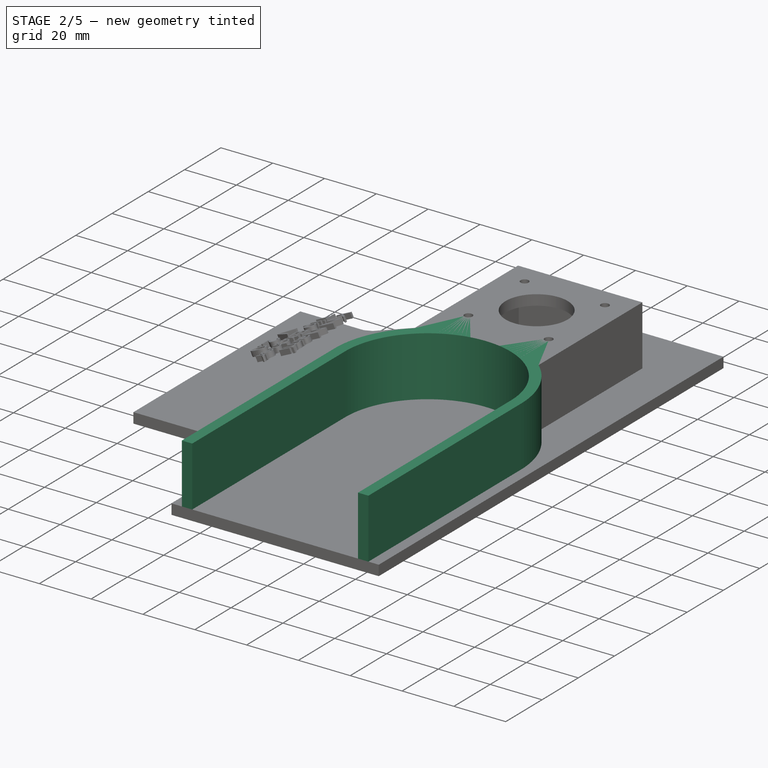
[diagram: stage 2 of 5 — iso view after this stage's code; geometry added in this stage tinted green]
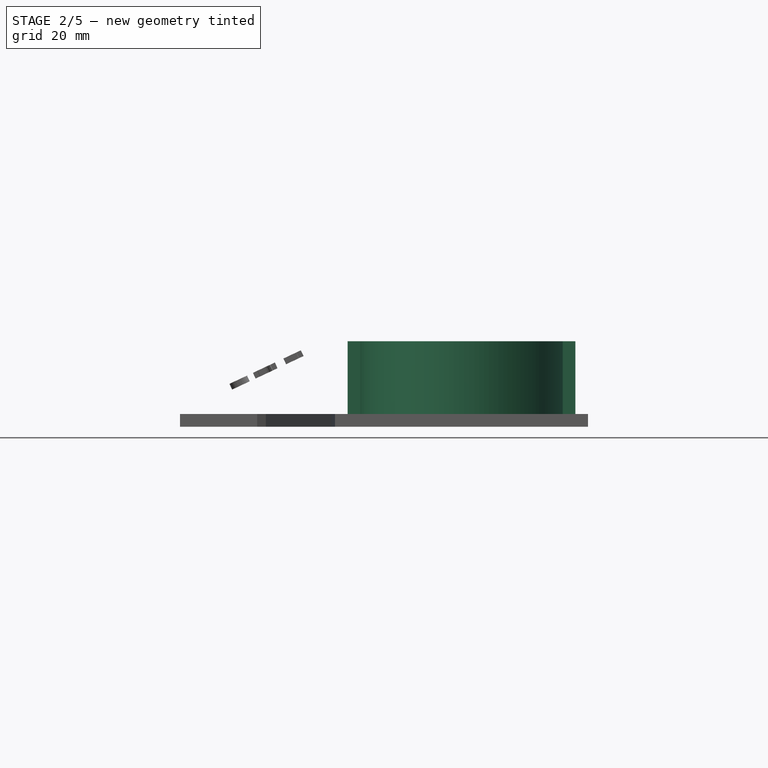
[diagram: stage 2 of 5 — front view after this stage's code; geometry added in this stage tinted green]
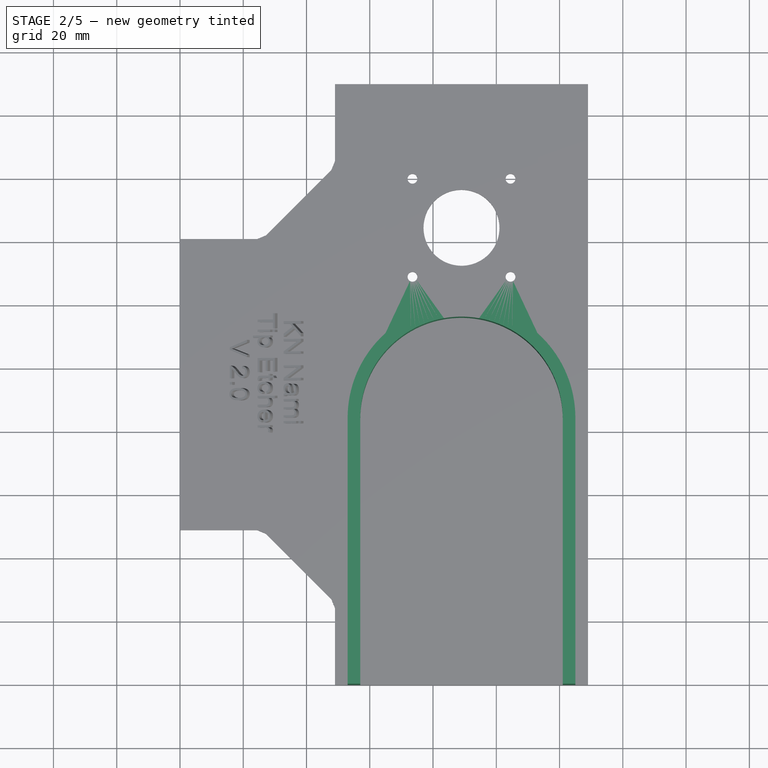
[diagram: stage 2 of 5 — top view after this stage's code; geometry added in this stage tinted green]
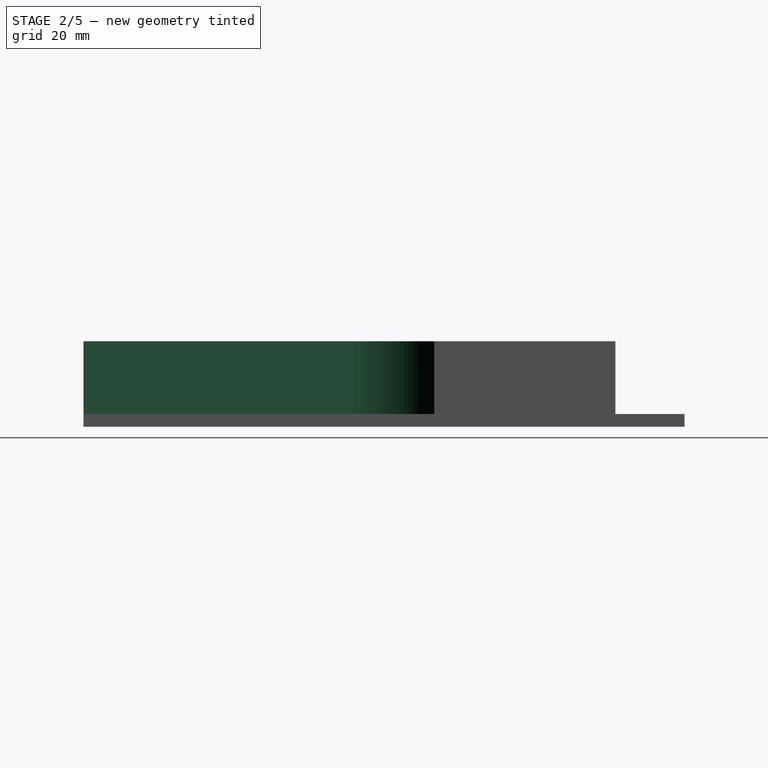
[diagram: stage 2 of 5 — right view after this stage's code; geometry added in this stage tinted green]
FEATURE [Sketcher::SketchObject] Sketch004
  ArcFitTolerance = 1e-06
  AttachmentSupport = -> [Pad002]
  FullyConstrained = true
  MakeInternals = false
  MapMode = 5
  sketch-geometry (97):
    g0: LineSegment [constr] StartX=0 StartY=0 StartZ=0 EndX=49 EndY=0 EndZ=0
    g1: LineSegment [constr] StartX=0 StartY=0 StartZ=0 EndX=0 EndY=49 EndZ=0
    g2: LineSegment [constr] StartX=0 StartY=49 StartZ=0 EndX=24.3764 EndY=49 EndZ=0
    g3: LineSegment [constr] StartX=49 StartY=0 StartZ=0 EndX=49 EndY=24.3764 EndZ=0
    g4: LineSegment [constr] StartX=47.8519 StartY=27.1481 StartZ=0 EndX=27.1481 EndY=47.8519 EndZ=0
    g5: ArcOfCircle [constr] CenterX=24.3764 CenterY=45.0803 CenterZ=0 NormalX=0 NormalY=0 NormalZ=1 AngleXU=0 Radius=3.91969 StartAngle=0.785398 EndAngle=1.5708
    g6: GeomPoint [constr] X=26 Y=49 Z=0
    g7: LineSegment [constr] StartX=27.1481 StartY=47.8519 StartZ=0 EndX=24.3764 EndY=49 EndZ=0
    g8: ArcOfCircle [constr] CenterX=45.0803 CenterY=24.3764 CenterZ=0 NormalX=0 NormalY=0 NormalZ=1 AngleXU=0 Radius=3.91969 StartAngle=0 EndAngle=0.785398
    g9: GeomPoint [constr] X=49 Y=26 Z=0
    g10: LineSegment [constr] StartX=49 StartY=24.3764 StartZ=0 EndX=47.8519 EndY=27.1481 EndZ=0
    g11: LineSegment [constr] StartX=49 StartY=0 StartZ=0 EndX=129 EndY=0 EndZ=0
    g12: LineSegment [constr] StartX=129 StartY=0 StartZ=0 EndX=129 EndY=190 EndZ=0
    g13: LineSegment [constr] StartX=129 StartY=190 StartZ=0 EndX=49 EndY=190 EndZ=0
    g14: LineSegment [constr] StartX=49 StartY=190 StartZ=0 EndX=49 EndY=165.624 EndZ=0
    g15: LineSegment [constr] StartX=49 StartY=190 StartZ=0 EndX=0 EndY=190 EndZ=0
    g16: LineSegment [constr] StartX=0 StartY=190 StartZ=0 EndX=0 EndY=0 EndZ=0
    g17: LineSegment [constr] StartX=0 StartY=190 StartZ=0 EndX=0 EndY=141 EndZ=0
    g18: LineSegment [constr] StartX=0 StartY=141 StartZ=0 EndX=24.3764 EndY=141 EndZ=0
    g19: LineSegment [constr] StartX=27.1481 StartY=142.148 StartZ=0 EndX=47.8519 EndY=162.852 EndZ=0
    g20: ArcOfCircle [constr] CenterX=45.0803 CenterY=165.624 CenterZ=0 NormalX=0 NormalY=0 NormalZ=1 AngleXU=0 Radius=3.91969 StartAngle=5.49779 EndAngle=6.28319
    g21: GeomPoint [constr] X=49 Y=164 Z=0
    g22: LineSegment [constr] StartX=47.8519 StartY=162.852 StartZ=0 EndX=49 EndY=165.624 EndZ=0
    g23: ArcOfCircle [constr] CenterX=24.3764 CenterY=144.92 CenterZ=0 NormalX=0 NormalY=0 NormalZ=1 AngleXU=0 Radius=3.91969 StartAngle=4.71239 EndAngle=5.49779
    g24: GeomPoint [constr] X=26 Y=141 Z=0
    g25: LineSegment [constr] StartX=24.3764 StartY=141 StartZ=0 EndX=27.1481 EndY=142.148 EndZ=0
    g26: LineSegment [constr] StartX=0 StartY=141 StartZ=0 EndX=0 EndY=49 EndZ=0
    g27: LineSegment [constr] StartX=0 StartY=190 StartZ=0 EndX=0 EndY=144.16 EndZ=0
    g28: LineSegment [constr] StartX=0 StartY=144.16 StartZ=0 EndX=59.85 EndY=144.16 EndZ=0
    g29: Circle [constr] CenterX=59.85 CenterY=144.16 CenterZ=0 NormalX=0 NormalY=0 NormalZ=1 AngleXU=0 Radius=4.05
    g30: LineSegment [constr] StartX=59.85 StartY=144.16 StartZ=0 EndX=89 EndY=144.16 EndZ=0
    g31: LineSegment [constr] StartX=89 StartY=144.16 StartZ=0 EndX=118.15 EndY=144.16 EndZ=0
    g32: Circle [constr] CenterX=118.15 CenterY=144.16 CenterZ=0 NormalX=0 NormalY=0 NormalZ=1 AngleXU=0 Radius=4.05
    g33: Circle [constr] CenterX=89 CenterY=144.16 CenterZ=0 NormalX=0 NormalY=0 NormalZ=1 AngleXU=0 Radius=12
    g34: LineSegment [constr] StartX=89 StartY=144.16 StartZ=0 EndX=104.5 EndY=159.66 EndZ=0
    g35: Circle [constr] CenterX=104.5 CenterY=159.66 CenterZ=0 NormalX=0 NormalY=0 NormalZ=1 AngleXU=0 Radius=1.55
    g36: LineSegment [constr] StartX=129 StartY=190 StartZ=0 EndX=129 EndY=180 EndZ=0
    g37: LineSegment [constr] StartX=129 StartY=180 StartZ=0 EndX=109 EndY=180 EndZ=0
    g38: Circle [constr] CenterX=109 CenterY=180 CenterZ=0 NormalX=0 NormalY=0 NormalZ=1 AngleXU=0 Radius=2.55
    g39: LineSegment [constr] StartX=49 StartY=190 StartZ=0 EndX=49 EndY=180 EndZ=0
    g40: LineSegment [constr] StartX=49 StartY=180 StartZ=0 EndX=69 EndY=180 EndZ=0
    g41: LineSegment [constr] StartX=69 StartY=180 StartZ=0 EndX=69 EndY=190 EndZ=0
    g42: LineSegment [constr] StartX=69 StartY=190 StartZ=0 EndX=49 EndY=190 EndZ=0
    g43: Circle [constr] CenterX=69 CenterY=180 CenterZ=0 NormalX=0 NormalY=0 NormalZ=1 AngleXU=0 Radius=2.55
    g44: LineSegment [constr] StartX=0 StartY=141 StartZ=0 EndX=0 EndY=121 EndZ=0
    g45: LineSegment [constr] StartX=0 StartY=121 StartZ=0 EndX=10 EndY=121 EndZ=0
    g46: LineSegment [constr] StartX=10 StartY=121 StartZ=0 EndX=10 EndY=141 EndZ=0
    g47: LineSegment [constr] StartX=10 StartY=141 StartZ=0 EndX=0 EndY=141 EndZ=0
    g48: LineSegment [constr] StartX=0 StartY=49 StartZ=0 EndX=10 EndY=49 EndZ=0
    g49: LineSegment [constr] StartX=10 StartY=49 StartZ=0 EndX=10 EndY=69 EndZ=0
    g50: LineSegment [constr] StartX=10 StartY=69 StartZ=0 EndX=0 EndY=69 EndZ=0
    g51: LineSegment [constr] StartX=0 StartY=69 StartZ=0 EndX=0 EndY=49 EndZ=0
    g52: Circle [constr] CenterX=10 CenterY=121 CenterZ=0 NormalX=0 NormalY=0 NormalZ=1 AngleXU=0 Radius=2.55
    g53: Circle [constr] CenterX=10 CenterY=69 CenterZ=0 NormalX=0 NormalY=0 NormalZ=1 AngleXU=0 Radius=2.55
    g54: LineSegment [constr] StartX=49 StartY=0 StartZ=0 EndX=69 EndY=0 EndZ=0
    g55: LineSegment [constr] StartX=69 StartY=0 StartZ=0 EndX=69 EndY=10 EndZ=0
    g56: LineSegment [constr] StartX=69 StartY=10 StartZ=0 EndX=49 EndY=10 EndZ=0
    g57: LineSegment [constr] StartX=49 StartY=10 StartZ=0 EndX=49 EndY=0 EndZ=0
    g58: LineSegment [constr] StartX=129 StartY=0 StartZ=0 EndX=129 EndY=10 EndZ=0
    g59: LineSegment [constr] StartX=129 StartY=10 StartZ=0 EndX=109 EndY=10 EndZ=0
    g60: LineSegment [constr] StartX=109 StartY=10 StartZ=0 EndX=109 EndY=0 EndZ=0
    g61: LineSegment [constr] StartX=109 StartY=0 StartZ=0 EndX=129 EndY=0 EndZ=0
    g62: Circle [constr] CenterX=69 CenterY=10 CenterZ=0 NormalX=0 NormalY=0 NormalZ=1 AngleXU=0 Radius=2.55
    g63: Circle [constr] CenterX=109 CenterY=10 CenterZ=0 NormalX=0 NormalY=0 NormalZ=1 AngleXU=0 Radius=2.55
    g64: LineSegment [constr] StartX=89 StartY=144.16 StartZ=0 EndX=73.5 EndY=144.16 EndZ=0
    g65: LineSegment [constr] StartX=73.5 StartY=144.16 StartZ=0 EndX=73.5 EndY=128.66 EndZ=0
    g66: LineSegment [constr] StartX=73.5 StartY=128.66 StartZ=0 EndX=89 EndY=128.66 EndZ=0
    g67: LineSegment [constr] StartX=89 StartY=128.66 StartZ=0 EndX=89 EndY=144.16 EndZ=0
    g68: LineSegment [constr] StartX=65.9 StartY=121.06 StartZ=0 EndX=112.1 EndY=121.06 EndZ=0
    g69: LineSegment [constr] StartX=112.1 StartY=121.06 StartZ=0 EndX=112.1 EndY=167.26 EndZ=0
    g70: LineSegment [constr] StartX=112.1 StartY=167.26 StartZ=0 EndX=65.9 EndY=167.26 EndZ=0
    g71: LineSegment [constr] StartX=65.9 StartY=167.26 StartZ=0 EndX=65.9 EndY=121.06 EndZ=0
    g72: GeomPoint [constr] X=89 Y=144.16 Z=0
    g73: LineSegment [constr] StartX=73.5002 StartY=128.66 StartZ=0 EndX=104.5 EndY=128.66 EndZ=0
    g74: LineSegment [constr] StartX=104.5 StartY=128.66 StartZ=0 EndX=104.5 EndY=159.66 EndZ=0
    g75: LineSegment [constr] StartX=104.5 StartY=159.66 StartZ=0 EndX=73.5002 EndY=159.66 EndZ=0
    g76: LineSegment [constr] StartX=73.5002 StartY=159.66 StartZ=0 EndX=73.5002 EndY=128.66 EndZ=0
    g77: GeomPoint [constr] X=89 Y=144.16 Z=0
    g78: LineSegment [constr] StartX=65 StartY=120.16 StartZ=0 EndX=113 EndY=120.16 EndZ=0
    g79: LineSegment [constr] StartX=113 StartY=120.16 StartZ=0 EndX=113 EndY=168.16 EndZ=0
    g80: LineSegment [constr] StartX=113 StartY=168.16 StartZ=0 EndX=65 EndY=168.16 EndZ=0
    g81: LineSegment [constr] StartX=65 StartY=168.16 StartZ=0 EndX=65 EndY=120.16 EndZ=0
    g82: GeomPoint [constr] X=89 Y=144.16 Z=0
    g83: Circle [constr] CenterX=73.5002 CenterY=159.66 CenterZ=0 NormalX=0 NormalY=0 NormalZ=1 AngleXU=0 Radius=1.55
    g84: Circle [constr] CenterX=73.5 CenterY=128.66 CenterZ=0 NormalX=0 NormalY=0 NormalZ=1 AngleXU=0 Radius=1.55
    g85: Circle [constr] CenterX=104.5 CenterY=128.66 CenterZ=0 NormalX=0 NormalY=0 NormalZ=1 AngleXU=0 Radius=1.55
    g86: LineSegment [constr] StartX=89 StartY=144.16 StartZ=0 EndX=89 EndY=84.073 EndZ=0
    g87: LineSegment [constr] StartX=89 StartY=84.073 StartZ=0 EndX=121 EndY=84.073 EndZ=0
    g88: ArcOfCircle CenterX=89 CenterY=84.073 CenterZ=0 NormalX=0 NormalY=0 NormalZ=1 AngleXU=0 Radius=32 StartAngle=0 EndAngle=3.14159
    g89: LineSegment StartX=57 StartY=84.073 StartZ=0 EndX=57 EndY=0 EndZ=0
    g90: LineSegment StartX=121 StartY=84.073 StartZ=0 EndX=121 EndY=0 EndZ=0
    g91: LineSegment [constr] StartX=89 StartY=84.073 StartZ=0 EndX=125 EndY=84.073 EndZ=0
    g92: ArcOfCircle CenterX=89 CenterY=84.073 CenterZ=0 NormalX=0 NormalY=0 NormalZ=1 AngleXU=0 Radius=36 StartAngle=0 EndAngle=3.14159
    g93: LineSegment StartX=53 StartY=84.073 StartZ=0 EndX=53 EndY=0 EndZ=0
    g94: LineSegment StartX=125 StartY=84.073 StartZ=0 EndX=125 EndY=0 EndZ=0
    g95: LineSegment StartX=125 StartY=0 StartZ=0 EndX=121 EndY=0 EndZ=0
    g96: LineSegment StartX=57 StartY=0 StartZ=0 EndX=53 EndY=0 EndZ=0
  constraints (244):
    c: Distance(g0) = 49
    c: Coincident(g0,g-1)
    c: PointOnObject(g0,g-1)
    c: Distance(g1) = 49
    c: Coincident(g1,g0)
    c: PointOnObject(g1,g-2)
    c: Distance(g2,g6) = 26
    c: Coincident(g2,g1)
    c: Horizontal(g2)
    c: Distance(g3,g9) = 26
    c: Coincident(g3,g0)
    c: Vertical(g3)
    c: PointOnObject(g6,g2)
    c: PointOnObject(g6,g4)
    c: Tangent(g2,g5) = 1.5708
    c: Tangent(g4,g5) = -1.5708
    c: Coincident(g7,g2)
    c: Coincident(g7,g4)
    c: PointOnObject(g9,g3)
    c: PointOnObject(g9,g4)
    c: Tangent(g3,g8) = -1.5708
    c: Tangent(g4,g8) = -1.5708
    c: Coincident(g10,g3)
    c: Coincident(g10,g4)
    c: Distance(g10,g10) = 3
    c: Distance(g7,g7) = 3
    c: Distance(g11) = 80
    c: Coincident(g11,g0)
    c: PointOnObject(g11,g-1)
    c: Distance(g12) = 190
    c: Coincident(g12,g11)
    c: Vertical(g12)
    c: Distance(g13) = 80
    c: Coincident(g13,g12)
    c: Horizontal(g13)
    c: Distance(g14,g21) = 26
    c: Coincident(g14,g13)
    c: Vertical(g14)
    c: Coincident(g15,g13)
    c: PointOnObject(g15,g-2)
    c: Horizontal(g15)
    c: Coincident(g16,g15)
    c: Coincident(g16,g0)
    c: Distance(g17) = 49
    c: Coincident(g17,g15)
    c: PointOnObject(g17,g16)
    c: Distance(g18,g24) = 26
    c: Coincident(g18,g17)
    c: Horizontal(g18)
    c: PointOnObject(g21,g14)
    c: PointOnObject(g21,g19)
    c: Tangent(g14,g20) = 1.5708
    c: Tangent(g19,g20) = -1.5708
    c: Coincident(g22,g14)
    c: Coincident(g22,g19)
    c: PointOnObject(g24,g18)
    c: PointOnObject(g24,g19)
    c: Tangent(g18,g23) = -1.5708
    c: Tangent(g19,g23) = -1.5708
    c: Coincident(g25,g18)
    c: Coincident(g25,g19)
    c: Distance(g25,g25) = 3
    c: Distance(g22,g22) = 3
    c: Coincident(g26,g17)
    c: Coincident(g26,g1)
    c: Distance(g27) = 45.84
    c: Coincident(g27,g15)
    c: PointOnObject(g27,g16)
    c: Distance(g28) = 59.85
    c: Coincident(g28,g27)
    c: Horizontal(g28)
    c: Diameter(g29) = 8.1
    c: Coincident(g29,g28)
    c: Distance(g30) = 29.15
    c: Coincident(g30,g28)
    c: Horizontal(g30)
    c: Distance(g31) = 29.15
    c: Coincident(g31,g30)
    c: Horizontal(g31)
    c: Diameter(g32) = 8.1
    c: Coincident(g32,g31)
    c: Diameter(g33) = 24
    c: Coincident(g33,g30)
    c: Distance(g34) = 21.92
    c: Angle(g-1,g34) = 0.785398
    c: Coincident(g34,g30)
    c: Diameter(g35) = 3.1
    c: Coincident(g35,g34)
    c: Distance(g36) = 10
    c: Coincident(g36,g12)
    c: PointOnObject(g36,g12)
    c: Distance(g37) = 20
    c: Coincident(g37,g36)
    c: Horizontal(g37)
    c: Diameter(g38) = 5.1
    c: Coincident(g38,g37)
    c: Coincident(g39,g40)
    c: Coincident(g40,g41)
    c: Coincident(g41,g42)
    c: Coincident(g42,g39)
    c: Vertical(g39)
    c: Vertical(g41)
    c: Horizontal(g40)
    c: Horizontal(g42)
    c: Distance(g39,g41) = 20
    c: Distance(g40,g42) = 10
    c: Coincident(g39,g13)
    c: Diameter(g43) = 5.1
    c: Coincident(g43,g40)
    c: Coincident(g44,g45)
    c: Coincident(g45,g46)
    c: Coincident(g46,g47)
    c: Coincident(g47,g44)
    c: Vertical(g44)
    c: Vertical(g46)
    c: Horizontal(g45)
    c: Horizontal(g47)
    c: Distance(g44,g46) = 10
    c: Distance(g45,g47) = 20
    c: Coincident(g44,g17)
    c: Coincident(g48,g49)
    c: Coincident(g49,g50)
    c: Coincident(g50,g51)
    c: Coincident(g51,g48)
    c: Horizontal(g48)
    c: Horizontal(g50)
    c: Vertical(g49)
    c: Vertical(g51)
    c: Distance(g49,g51) = 10
    c: Distance(g48,g50) = 20
    c: Coincident(g48,g1)
    c: Diameter(g52) = 5.1
    c: Coincident(g52,g45)
    c: Diameter(g53) = 5.1
    c: Coincident(g53,g49)
    c: Coincident(g54,g55)
    c: Coincident(g55,g56)
    c: Coincident(g56,g57)
    c: Coincident(g57,g54)
    c: Horizontal(g54)
    c: Horizontal(g56)
    c: Vertical(g55)
    c: Vertical(g57)
    c: Distance(g55,g57) = 20
    c: Distance(g54,g56) = 10
    c: Coincident(g54,g0)
    c: Coincident(g58,g59)
    c: Coincident(g59,g60)
    c: Coincident(g60,g61)
    c: Coincident(g61,g58)
    c: Vertical(g58)
    c: Vertical(g60)
    c: Horizontal(g59)
    c: Horizontal(g61)
    c: Distance(g58,g60) = 20
    c: Distance(g59,g61) = 10
    c: Coincident(g58,g11)
    c: Diameter(g62) = 5.1
    c: Coincident(g62,g55)
    c: Diameter(g63) = 5.1
    c: Coincident(g63,g59)
    c: Coincident(g64,g65)
    c: Coincident(g65,g66)
    c: Coincident(g66,g67)
    c: Coincident(g67,g64)
    c: Horizontal(g64)
    c: Horizontal(g66)
    c: Vertical(g65)
    c: Vertical(g67)
    c: Distance(g65,g67) = 15.5
    c: Distance(g64,g66) = 15.5
    c: Coincident(g64,g30)
    c: Coincident(g68,g69)
    c: Coincident(g69,g70)
    c: Coincident(g70,g71)
    c: Coincident(g71,g68)
    c: Horizontal(g68)
    c: Horizontal(g70)
    c: Vertical(g69)
    c: Vertical(g71)
    c: Symmetric(g70,g68,g72)
    c: Distance(g69,g71) = 46.2
    c: Distance(g68,g70) = 46.2
    c: Coincident(g72,g30)
    c: Coincident(g73,g74)
    c: Coincident(g74,g75)
    c: Coincident(g75,g76)
    c: Coincident(g76,g73)
    c: Horizontal(g73)
    c: Horizontal(g75)
    c: Vertical(g74)
    c: Vertical(g76)
    c: Symmetric(g75,g73,g77)
    c: Coincident(g77,g30)
    c: Coincident(g74,g34)
    c: Coincident(g78,g79)
    c: Coincident(g79,g80)
    c: Coincident(g80,g81)
    c: Coincident(g81,g78)
    c: Horizontal(g78)
    c: Horizontal(g80)
    c: Vertical(g79)
    c: Vertical(g81)
    c: Symmetric(g80,g78,g82)
    c: Distance(g79,g81) = 48
    c: Distance(g78,g80) = 48
    c: Coincident(g82,g30)
    c: Diameter(g83) = 3.1
    c: Coincident(g83,g75)
    c: Diameter(g84) = 3.1
    c: Coincident(g84,g65)
    c: Diameter(g85) = 3.1
    c: Coincident(g85,g73)
    c: Distance(g86) = 60.087
    c: Coincident(g86,g30)
    c: Vertical(g86)
    c: Distance(g87) = 32
    c: Coincident(g87,g86)
    c: Horizontal(g87)
    c: Angle(g88) = 3.14159
    c: Coincident(g88,g86)
    c: Coincident(g88,g87)
    c: Coincident(g89,g88)
    c: PointOnObject(g89,g11)
    c: Vertical(g89)
    c: Coincident(g90,g87)
    c: PointOnObject(g90,g11)
    c: Vertical(g90)
    c: Distance(g91) = 36
    c: Coincident(g91,g86)
    c: Horizontal(g91)
    c: Angle(g92) = 3.14159
    c: Coincident(g92,g86)
    c: Coincident(g92,g91)
    c: Coincident(g93,g92)
    c: PointOnObject(g93,g11)
    c: Vertical(g93)
    c: Coincident(g94,g91)
    c: PointOnObject(g94,g11)
    c: Vertical(g94)
    c: Coincident(g95,g94)
    c: Coincident(g95,g90)
    c: Coincident(g96,g89)
    c: Coincident(g96,g93)
FEATURE [PartDesign::Pad] Pad003
  BaseFeature = -> Pad002
  Direction = (0,0,1)
  Length = 23
  Length2 = 10
  Profile = -> Sketch004
  ReferenceAxis = -> Sketch004 [N_Axis]
  Refine = true
  Suppressed = false
  Type = 0
FEATURE [Sketcher::SketchObject] Sketch005
  ArcFitTolerance = 1e-06
  AttachmentSupport = -> [Pad003]
  FullyConstrained = true
  MakeInternals = false
  MapMode = 5
  sketch-geometry (107):
    g0: LineSegment [constr] StartX=0 StartY=0 StartZ=0 EndX=49 EndY=0 EndZ=0
    g1: LineSegment [constr] StartX=0 StartY=0 StartZ=0 EndX=0 EndY=49 EndZ=0
    g2: LineSegment [constr] StartX=0 StartY=49 StartZ=0 EndX=24.3764 EndY=49 EndZ=0
    g3: LineSegment [constr] StartX=49 StartY=0 StartZ=0 EndX=49 EndY=24.3764 EndZ=0
    g4: LineSegment [constr] StartX=47.8519 StartY=27.1481 StartZ=0 EndX=27.1481 EndY=47.8519 EndZ=0
    g5: ArcOfCircle [constr] CenterX=24.3764 CenterY=45.0803 CenterZ=0 NormalX=0 NormalY=0 NormalZ=1 AngleXU=0 Radius=3.91969 StartAngle=0.785398 EndAngle=1.5708
    g6: GeomPoint [constr] X=26 Y=49 Z=0
    g7: LineSegment [constr] StartX=27.1481 StartY=47.8519 StartZ=0 EndX=24.3764 EndY=49 EndZ=0
    g8: ArcOfCircle [constr] CenterX=45.0803 CenterY=24.3764 CenterZ=0 NormalX=0 NormalY=0 NormalZ=1 AngleXU=0 Radius=3.91969 StartAngle=0 EndAngle=0.785398
    g9: GeomPoint [constr] X=49 Y=26 Z=0
    g10: LineSegment [constr] StartX=49 StartY=24.3764 StartZ=0 EndX=47.8519 EndY=27.1481 EndZ=0
    g11: LineSegment [constr] StartX=49 StartY=0 StartZ=0 EndX=129 EndY=0 EndZ=0
    g12: LineSegment [constr] StartX=129 StartY=0 StartZ=0 EndX=129 EndY=190 EndZ=0
    g13: LineSegment [constr] StartX=129 StartY=190 StartZ=0 EndX=49 EndY=190 EndZ=0
    g14: LineSegment [constr] StartX=49 StartY=190 StartZ=0 EndX=49 EndY=165.624 EndZ=0
    g15: LineSegment [constr] StartX=49 StartY=190 StartZ=0 EndX=0 EndY=190 EndZ=0
    g16: LineSegment [constr] StartX=0 StartY=190 StartZ=0 EndX=0 EndY=0 EndZ=0
    g17: LineSegment [constr] StartX=0 StartY=190 StartZ=0 EndX=0 EndY=141 EndZ=0
    g18: LineSegment [constr] StartX=0 StartY=141 StartZ=0 EndX=24.3764 EndY=141 EndZ=0
    g19: LineSegment [constr] StartX=27.1481 StartY=142.148 StartZ=0 EndX=47.8519 EndY=162.852 EndZ=0
    g20: ArcOfCircle [constr] CenterX=45.0803 CenterY=165.624 CenterZ=0 NormalX=0 NormalY=0 NormalZ=1 AngleXU=0 Radius=3.91969 StartAngle=5.49779 EndAngle=6.28319
    g21: GeomPoint [constr] X=49 Y=164 Z=0
    g22: LineSegment [constr] StartX=47.8519 StartY=162.852 StartZ=0 EndX=49 EndY=165.624 EndZ=0
    g23: ArcOfCircle [constr] CenterX=24.3764 CenterY=144.92 CenterZ=0 NormalX=0 NormalY=0 NormalZ=1 AngleXU=0 Radius=3.91969 StartAngle=4.71239 EndAngle=5.49779
    g24: GeomPoint [constr] X=26 Y=141 Z=0
    g25: LineSegment [constr] StartX=24.3764 StartY=141 StartZ=0 EndX=27.1481 EndY=142.148 EndZ=0
    g26: LineSegment [constr] StartX=0 StartY=141 StartZ=0 EndX=0 EndY=49 EndZ=0
    g27: LineSegment [constr] StartX=0 StartY=190 StartZ=0 EndX=0 EndY=144.16 EndZ=0
    g28: LineSegment [constr] StartX=0 StartY=144.16 StartZ=0 EndX=59.85 EndY=144.16 EndZ=0
    g29: Circle [constr] CenterX=59.85 CenterY=144.16 CenterZ=0 NormalX=0 NormalY=0 NormalZ=1 AngleXU=0 Radius=4.05
    g30: LineSegment [constr] StartX=59.85 StartY=144.16 StartZ=0 EndX=89 EndY=144.16 EndZ=0
    g31: LineSegment [constr] StartX=89 StartY=144.16 StartZ=0 EndX=118.15 EndY=144.16 EndZ=0
    g32: Circle [constr] CenterX=118.15 CenterY=144.16 CenterZ=0 NormalX=0 NormalY=0 NormalZ=1 AngleXU=0 Radius=4.05
    g33: Circle [constr] CenterX=89 CenterY=144.16 CenterZ=0 NormalX=0 NormalY=0 NormalZ=1 AngleXU=0 Radius=12
    g34: LineSegment [constr] StartX=89 StartY=144.16 StartZ=0 EndX=104.5 EndY=159.66 EndZ=0
    g35: Circle [constr] CenterX=104.5 CenterY=159.66 CenterZ=0 NormalX=0 NormalY=0 NormalZ=1 AngleXU=0 Radius=1.55
    g36: LineSegment [constr] StartX=129 StartY=190 StartZ=0 EndX=129 EndY=180 EndZ=0
    g37: LineSegment [constr] StartX=129 StartY=180 StartZ=0 EndX=109 EndY=180 EndZ=0
    g38: Circle [constr] CenterX=109 CenterY=180 CenterZ=0 NormalX=0 NormalY=0 NormalZ=1 AngleXU=0 Radius=2.55
    g39: LineSegment [constr] StartX=49 StartY=190 StartZ=0 EndX=49 EndY=180 EndZ=0
    g40: LineSegment [constr] StartX=49 StartY=180 StartZ=0 EndX=69 EndY=180 EndZ=0
    g41: LineSegment [constr] StartX=69 StartY=180 StartZ=0 EndX=69 EndY=190 EndZ=0
    g42: LineSegment [constr] StartX=69 StartY=190 StartZ=0 EndX=49 EndY=190 EndZ=0
    g43: Circle [constr] CenterX=69 CenterY=180 CenterZ=0 NormalX=0 NormalY=0 NormalZ=1 AngleXU=0 Radius=2.55
    g44: LineSegment [constr] StartX=0 StartY=141 StartZ=0 EndX=0 EndY=121 EndZ=0
    g45: LineSegment [constr] StartX=0 StartY=121 StartZ=0 EndX=10 EndY=121 EndZ=0
    g46: LineSegment [constr] StartX=10 StartY=121 StartZ=0 EndX=10 EndY=141 EndZ=0
    g47: LineSegment [constr] StartX=10 StartY=141 StartZ=0 EndX=0 EndY=141 EndZ=0
    g48: LineSegment [constr] StartX=0 StartY=49 StartZ=0 EndX=10 EndY=49 EndZ=0
    g49: LineSegment [constr] StartX=10 StartY=49 StartZ=0 EndX=10 EndY=69 EndZ=0
    g50: LineSegment [constr] StartX=10 StartY=69 StartZ=0 EndX=0 EndY=69 EndZ=0
    g51: LineSegment [constr] StartX=0 StartY=69 StartZ=0 EndX=0 EndY=49 EndZ=0
    g52: Circle [constr] CenterX=10 CenterY=121 CenterZ=0 NormalX=0 NormalY=0 NormalZ=1 AngleXU=0 Radius=2.55
    g53: Circle [constr] CenterX=10 CenterY=69 CenterZ=0 NormalX=0 NormalY=0 NormalZ=1 AngleXU=0 Radius=2.55
    g54: LineSegment [constr] StartX=49 StartY=0 StartZ=0 EndX=69 EndY=0 EndZ=0
    g55: LineSegment [constr] StartX=69 StartY=0 StartZ=0 EndX=69 EndY=10 EndZ=0
    g56: LineSegment [constr] StartX=69 StartY=10 StartZ=0 EndX=49 EndY=10 EndZ=0
    g57: LineSegment [constr] StartX=49 StartY=10 StartZ=0 EndX=49 EndY=0 EndZ=0
    g58: LineSegment [constr] StartX=129 StartY=0 StartZ=0 EndX=129 EndY=10 EndZ=0
    g59: LineSegment [constr] StartX=129 StartY=10 StartZ=0 EndX=109 EndY=10 EndZ=0
    g60: LineSegment [constr] StartX=109 StartY=10 StartZ=0 EndX=109 EndY=0 EndZ=0
    g61: LineSegment [constr] StartX=109 StartY=0 StartZ=0 EndX=129 EndY=0 EndZ=0
    g62: Circle [constr] CenterX=69 CenterY=10 CenterZ=0 NormalX=0 NormalY=0 NormalZ=1 AngleXU=0 Radius=2.55
    g63: Circle [constr] CenterX=109 CenterY=10 CenterZ=0 NormalX=0 NormalY=0 NormalZ=1 AngleXU=0 Radius=2.55
    g64: LineSegment [constr] StartX=89 StartY=144.16 StartZ=0 EndX=73.5 EndY=144.16 EndZ=0
    g65: LineSegment [constr] StartX=73.5 StartY=144.16 StartZ=0 EndX=73.5 EndY=128.66 EndZ=0
    g66: LineSegment [constr] StartX=73.5 StartY=128.66 StartZ=0 EndX=89 EndY=128.66 EndZ=0
    g67: LineSegment [constr] StartX=89 StartY=128.66 StartZ=0 EndX=89 EndY=144.16 EndZ=0
    g68: LineSegment [constr] StartX=65.9 StartY=121.06 StartZ=0 EndX=112.1 EndY=121.06 EndZ=0
    g69: LineSegment [constr] StartX=112.1 StartY=121.06 StartZ=0 EndX=112.1 EndY=167.26 EndZ=0
    g70: LineSegment [constr] StartX=112.1 StartY=167.26 StartZ=0 EndX=65.9 EndY=167.26 EndZ=0
    g71: LineSegment [constr] StartX=65.9 StartY=167.26 StartZ=0 EndX=65.9 EndY=121.06 EndZ=0
    g72: GeomPoint [constr] X=89 Y=144.16 Z=0
    g73: LineSegment [constr] StartX=73.5002 StartY=128.66 StartZ=0 EndX=104.5 EndY=128.66 EndZ=0
    g74: LineSegment [constr] StartX=104.5 StartY=128.66 StartZ=0 EndX=104.5 EndY=159.66 EndZ=0
    g75: LineSegment [constr] StartX=104.5 StartY=159.66 StartZ=0 EndX=73.5002 EndY=159.66 EndZ=0
    g76: LineSegment [constr] StartX=73.5002 StartY=159.66 StartZ=0 EndX=73.5002 EndY=128.66 EndZ=0
    g77: GeomPoint [constr] X=89 Y=144.16 Z=0
    g78: LineSegment [constr] StartX=65 StartY=120.16 StartZ=0 EndX=113 EndY=120.16 EndZ=0
    g79: LineSegment [constr] StartX=113 StartY=120.16 StartZ=0 EndX=113 EndY=168.16 EndZ=0
    g80: LineSegment [constr] StartX=113 StartY=168.16 StartZ=0 EndX=65 EndY=168.16 EndZ=0
    g81: LineSegment [constr] StartX=65 StartY=168.16 StartZ=0 EndX=65 EndY=120.16 EndZ=0
    g82: GeomPoint [constr] X=89 Y=144.16 Z=0
    g83: Circle [constr] CenterX=73.5002 CenterY=159.66 CenterZ=0 NormalX=0 NormalY=0 NormalZ=1 AngleXU=0 Radius=1.55
    g84: Circle [constr] CenterX=73.5 CenterY=128.66 CenterZ=0 NormalX=0 NormalY=0 NormalZ=1 AngleXU=0 Radius=1.55
    g85: Circle [constr] CenterX=104.5 CenterY=128.66 CenterZ=0 NormalX=0 NormalY=0 NormalZ=1 AngleXU=0 Radius=1.55
    g86: LineSegment [constr] StartX=89 StartY=144.16 StartZ=0 EndX=89 EndY=84.073 EndZ=0
    g87: LineSegment [constr] StartX=89 StartY=84.073 StartZ=0 EndX=121 EndY=84.073 EndZ=0
    g88: ArcOfCircle [constr] CenterX=89 CenterY=84.073 CenterZ=0 NormalX=0 NormalY=0 NormalZ=1 AngleXU=0 Radius=32 StartAngle=0 EndAngle=3.14159
    g89: LineSegment [constr] StartX=57 StartY=84.073 StartZ=0 EndX=57 EndY=0 EndZ=0
    g90: LineSegment [constr] StartX=121 StartY=84.073 StartZ=0 EndX=121 EndY=0 EndZ=0
    g91: LineSegment [constr] StartX=89 StartY=84.073 StartZ=0 EndX=125 EndY=84.073 EndZ=0
    g92: ArcOfCircle [constr] CenterX=89 CenterY=84.073 CenterZ=0 NormalX=0 NormalY=0 NormalZ=1 AngleXU=0 Radius=36 StartAngle=0 EndAngle=3.14159
    g93: LineSegment [constr] StartX=53 StartY=84.073 StartZ=0 EndX=53 EndY=0 EndZ=0
    g94: LineSegment [constr] StartX=125 StartY=84.073 StartZ=0 EndX=125 EndY=0 EndZ=0
    g95: LineSegment [constr] StartX=125 StartY=0 StartZ=0 EndX=121 EndY=0 EndZ=0
    g96: LineSegment [constr] StartX=57 StartY=0 StartZ=0 EndX=53 EndY=0 EndZ=0
    g97: LineSegment StartX=113 StartY=168.16 StartZ=0 EndX=125 EndY=168.16 EndZ=0
    g98: LineSegment StartX=65 StartY=168.16 StartZ=0 EndX=53 EndY=168.16 EndZ=0
    g99: LineSegment StartX=53 StartY=168.16 StartZ=0 EndX=53 EndY=120.16 EndZ=0
    g100: LineSegment StartX=53 StartY=120.16 StartZ=0 EndX=65 EndY=120.16 EndZ=0
    g101: LineSegment StartX=65 StartY=120.16 StartZ=0 EndX=65 EndY=168.16 EndZ=0
    g102: LineSegment StartX=65 StartY=168.16 StartZ=0 EndX=53 EndY=168.16 EndZ=0
    g103: LineSegment StartX=125 StartY=168.16 StartZ=0 EndX=113 EndY=168.16 EndZ=0
    g104: LineSegment StartX=113 StartY=168.16 StartZ=0 EndX=113 EndY=120.16 EndZ=0
    g105: LineSegment StartX=113 StartY=120.16 StartZ=0 EndX=125 EndY=120.16 EndZ=0
    g106: LineSegment StartX=125 StartY=120.16 StartZ=0 EndX=125 EndY=168.16 EndZ=0
  constraints (270):
    c: Distance(g0) = 49
    c: Coincident(g0,g-1)
    c: PointOnObject(g0,g-1)
    c: Distance(g1) = 49
    c: Coincident(g1,g0)
    c: PointOnObject(g1,g-2)
    c: Distance(g2,g6) = 26
    c: Coincident(g2,g1)
    c: Horizontal(g2)
    c: Distance(g3,g9) = 26
    c: Coincident(g3,g0)
    c: Vertical(g3)
    c: PointOnObject(g6,g2)
    c: PointOnObject(g6,g4)
    c: Tangent(g2,g5) = 1.5708
    c: Tangent(g4,g5) = -1.5708
    c: Coincident(g7,g2)
    c: Coincident(g7,g4)
    c: PointOnObject(g9,g3)
    c: PointOnObject(g9,g4)
    c: Tangent(g3,g8) = -1.5708
    c: Tangent(g4,g8) = -1.5708
    c: Coincident(g10,g3)
    c: Coincident(g10,g4)
    c: Distance(g10,g10) = 3
    c: Distance(g7,g7) = 3
    c: Distance(g11) = 80
    c: Coincident(g11,g0)
    c: PointOnObject(g11,g-1)
    c: Distance(g12) = 190
    c: Coincident(g12,g11)
    c: Vertical(g12)
    c: Distance(g13) = 80
    c: Coincident(g13,g12)
    c: Horizontal(g13)
    c: Distance(g14,g21) = 26
    c: Coincident(g14,g13)
    c: Vertical(g14)
    c: Coincident(g15,g13)
    c: PointOnObject(g15,g-2)
    c: Horizontal(g15)
    c: Coincident(g16,g15)
    c: Coincident(g16,g0)
    c: Distance(g17) = 49
    c: Coincident(g17,g15)
    c: PointOnObject(g17,g16)
    c: Distance(g18,g24) = 26
    c: Coincident(g18,g17)
    c: Horizontal(g18)
    c: PointOnObject(g21,g14)
    c: PointOnObject(g21,g19)
    c: Tangent(g14,g20) = 1.5708
    c: Tangent(g19,g20) = -1.5708
    c: Coincident(g22,g14)
    c: Coincident(g22,g19)
    c: PointOnObject(g24,g18)
    c: PointOnObject(g24,g19)
    c: Tangent(g18,g23) = -1.5708
    c: Tangent(g19,g23) = -1.5708
    c: Coincident(g25,g18)
    c: Coincident(g25,g19)
    c: Distance(g25,g25) = 3
    c: Distance(g22,g22) = 3
    c: Coincident(g26,g17)
    c: Coincident(g26,g1)
    c: Distance(g27) = 45.84
    c: Coincident(g27,g15)
    c: PointOnObject(g27,g16)
    c: Distance(g28) = 59.85
    c: Coincident(g28,g27)
    c: Horizontal(g28)
    c: Diameter(g29) = 8.1
    c: Coincident(g29,g28)
    c: Distance(g30) = 29.15
    c: Coincident(g30,g28)
    c: Horizontal(g30)
    c: Distance(g31) = 29.15
    c: Coincident(g31,g30)
    c: Horizontal(g31)
    c: Diameter(g32) = 8.1
    c: Coincident(g32,g31)
    c: Diameter(g33) = 24
    c: Coincident(g33,g30)
    c: Distance(g34) = 21.92
    c: Angle(g-1,g34) = 0.785398
    c: Coincident(g34,g30)
    c: Diameter(g35) = 3.1
    c: Coincident(g35,g34)
    c: Distance(g36) = 10
    c: Coincident(g36,g12)
    c: PointOnObject(g36,g12)
    c: Distance(g37) = 20
    c: Coincident(g37,g36)
    c: Horizontal(g37)
    c: Diameter(g38) = 5.1
    c: Coincident(g38,g37)
    c: Coincident(g39,g40)
    c: Coincident(g40,g41)
    c: Coincident(g41,g42)
    c: Coincident(g42,g39)
    c: Vertical(g39)
    c: Vertical(g41)
    c: Horizontal(g40)
    c: Horizontal(g42)
    c: Distance(g39,g41) = 20
    c: Distance(g40,g42) = 10
    c: Coincident(g39,g13)
    c: Diameter(g43) = 5.1
    c: Coincident(g43,g40)
    c: Coincident(g44,g45)
    c: Coincident(g45,g46)
    c: Coincident(g46,g47)
    c: Coincident(g47,g44)
    c: Vertical(g44)
    c: Vertical(g46)
    c: Horizontal(g45)
    c: Horizontal(g47)
    c: Distance(g44,g46) = 10
    c: Distance(g45,g47) = 20
    c: Coincident(g44,g17)
    c: Coincident(g48,g49)
    c: Coincident(g49,g50)
    c: Coincident(g50,g51)
    c: Coincident(g51,g48)
    c: Horizontal(g48)
    c: Horizontal(g50)
    c: Vertical(g49)
    c: Vertical(g51)
    c: Distance(g49,g51) = 10
    c: Distance(g48,g50) = 20
    c: Coincident(g48,g1)
    c: Diameter(g52) = 5.1
    c: Coincident(g52,g45)
    c: Diameter(g53) = 5.1
    c: Coincident(g53,g49)
    c: Coincident(g54,g55)
    c: Coincident(g55,g56)
    c: Coincident(g56,g57)
    c: Coincident(g57,g54)
    c: Horizontal(g54)
    c: Horizontal(g56)
    c: Vertical(g55)
    c: Vertical(g57)
    c: Distance(g55,g57) = 20
    c: Distance(g54,g56) = 10
    c: Coincident(g54,g0)
    c: Coincident(g58,g59)
    c: Coincident(g59,g60)
    c: Coincident(g60,g61)
    c: Coincident(g61,g58)
    c: Vertical(g58)
    c: Vertical(g60)
    c: Horizontal(g59)
    c: Horizontal(g61)
    c: Distance(g58,g60) = 20
    c: Distance(g59,g61) = 10
    c: Coincident(g58,g11)
    c: Diameter(g62) = 5.1
    c: Coincident(g62,g55)
    c: Diameter(g63) = 5.1
    c: Coincident(g63,g59)
    c: Coincident(g64,g65)
    c: Coincident(g65,g66)
    c: Coincident(g66,g67)
    c: Coincident(g67,g64)
    c: Horizontal(g64)
    c: Horizontal(g66)
    c: Vertical(g65)
    c: Vertical(g67)
    c: Distance(g65,g67) = 15.5
    c: Distance(g64,g66) = 15.5
    c: Coincident(g64,g30)
    c: Coincident(g68,g69)
    c: Coincident(g69,g70)
    c: Coincident(g70,g71)
    c: Coincident(g71,g68)
    c: Horizontal(g68)
    c: Horizontal(g70)
    c: Vertical(g69)
    c: Vertical(g71)
    c: Symmetric(g70,g68,g72)
    c: Distance(g69,g71) = 46.2
    c: Distance(g68,g70) = 46.2
    c: Coincident(g72,g30)
    c: Coincident(g73,g74)
    c: Coincident(g74,g75)
    c: Coincident(g75,g76)
    c: Coincident(g76,g73)
    c: Horizontal(g73)
    c: Horizontal(g75)
    c: Vertical(g74)
    c: Vertical(g76)
    c: Symmetric(g75,g73,g77)
    c: Coincident(g77,g30)
    c: Coincident(g74,g34)
    c: Coincident(g78,g79)
    c: Coincident(g79,g80)
    c: Coincident(g80,g81)
    c: Coincident(g81,g78)
    c: Horizontal(g78)
    c: Horizontal(g80)
    c: Vertical(g79)
    c: Vertical(g81)
    c: Symmetric(g80,g78,g82)
    c: Distance(g79,g81) = 48
    c: Distance(g78,g80) = 48
    c: Coincident(g82,g30)
    c: Diameter(g83) = 3.1
    c: Coincident(g83,g75)
    c: Diameter(g84) = 3.1
    c: Coincident(g84,g65)
    c: Diameter(g85) = 3.1
    c: Coincident(g85,g73)
    c: Distance(g86) = 60.087
    c: Coincident(g86,g30)
    c: Vertical(g86)
    c: Distance(g87) = 32
    c: Coincident(g87,g86)
    c: Horizontal(g87)
    c: Angle(g88) = 3.14159
    c: Coincident(g88,g86)
    c: Coincident(g88,g87)
    c: Coincident(g89,g88)
    c: PointOnObject(g89,g11)
    c: Vertical(g89)
    c: Coincident(g90,g87)
    c: PointOnObject(g90,g11)
    c: Vertical(g90)
    c: Distance(g91) = 36
    c: Coincident(g91,g86)
    c: Horizontal(g91)
    c: Angle(g92) = 3.14159
    c: Coincident(g92,g86)
    c: Coincident(g92,g91)
    c: Coincident(g93,g92)
    c: PointOnObject(g93,g11)
    c: Vertical(g93)
    c: Coincident(g94,g91)
    c: PointOnObject(g94,g11)
    c: Vertical(g94)
    c: Coincident(g95,g94)
    c: Coincident(g95,g90)
    c: Coincident(g96,g89)
    c: Coincident(g96,g93)
    c: Distance(g97) = 12
    c: Coincident(g97,g79)
    c: Horizontal(g97)
    c: Distance(g98) = 12
    c: Coincident(g98,g80)
    c: Horizontal(g98)
    c: Coincident(g99,g100)
    c: Coincident(g100,g101)
    c: Coincident(g101,g102)
    c: Coincident(g102,g99)
    c: Vertical(g99)
    c: Vertical(g101)
    c: Horizontal(g100)
    c: Horizontal(g102)
    c: Coincident(g99,g98)
    c: Coincident(g100,g78)
    c: Coincident(g103,g104)
    c: Coincident(g104,g105)
    c: Coincident(g105,g106)
    c: Coincident(g106,g103)
    c: Horizontal(g103)
    c: Horizontal(g105)
    c: Vertical(g104)
    c: Vertical(g106)
    c: Coincident(g103,g97)
    c: Coincident(g104,g78)
FEATURE [PartDesign::Pad] Pad004
  BaseFeature = -> Pad003
  Direction = (0,-1,0)
  Length = 4
  Length2 = 10
  Profile = -> Pad003 [Face21]
  Refine = true
  Suppressed = false
  Type = 0
FEATURE [PartDesign::Pad] Pad005
  BaseFeature = -> Pad004
  Direction = (0,-1,0)
  Length = 4
  Length2 = 10
  Profile = -> Pad004 [Face29]
  Refine = true
  Suppressed = false
  Type = 0
FEATURE [PartDesign::Pad] Pad006
  BaseFeature = -> Pad005
  Direction = (0,-1,0)
  Length = 4
  Length2 = 10
  Profile = -> Pad005 [Face32]
  Refine = true
  Suppressed = false
  Type = 0
FEATURE [PartDesign::Pad] Pad007
  BaseFeature = -> Pad006
  Direction = (0,-1,0)
  Length = 4
  Length2 = 10
  Profile = -> Pad006 [Face13]
  Refine = true
  Suppressed = false
  Type = 0
FEATURE [PartDesign::Pad] Pad008
  BaseFeature = -> Pad007
  Direction = (0,-1,0)
  Length = 5
  Length2 = 10
  Profile = -> Pad007 [Face31]
  Refine = true
  Suppressed = false
  Type = 0
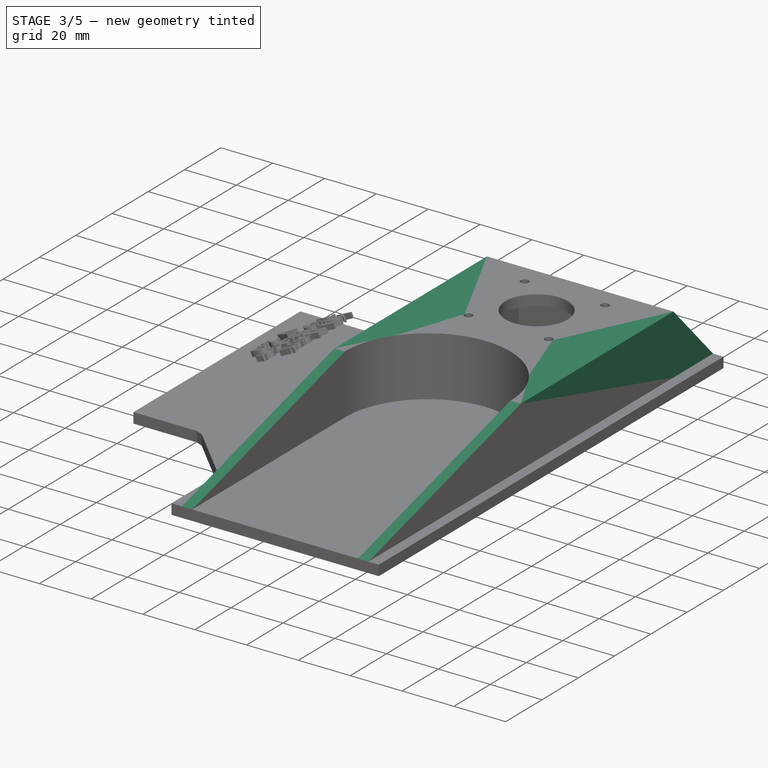
[diagram: stage 3 of 5 — iso view after this stage's code; geometry added in this stage tinted green]
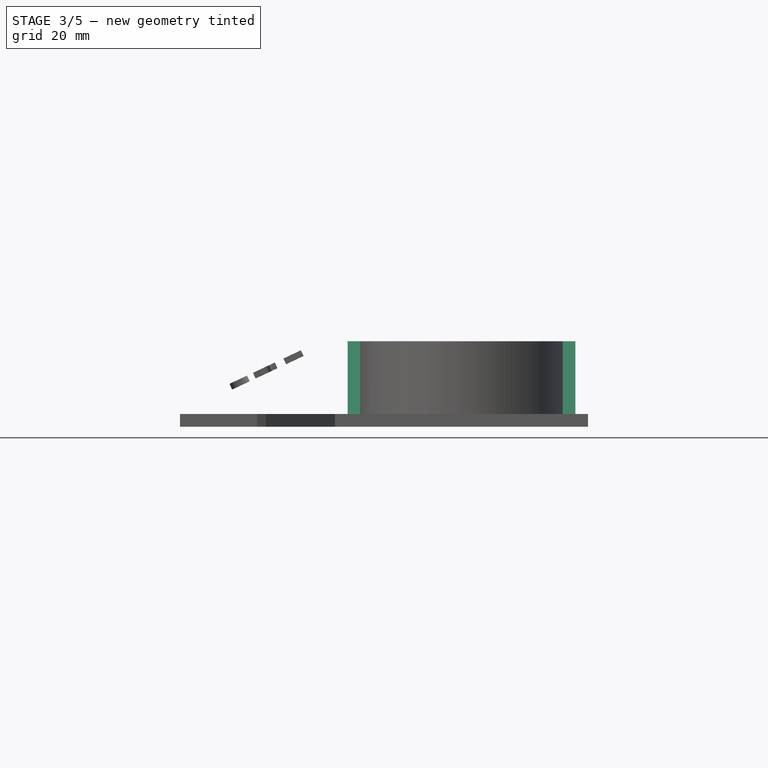
[diagram: stage 3 of 5 — front view after this stage's code; geometry added in this stage tinted green]
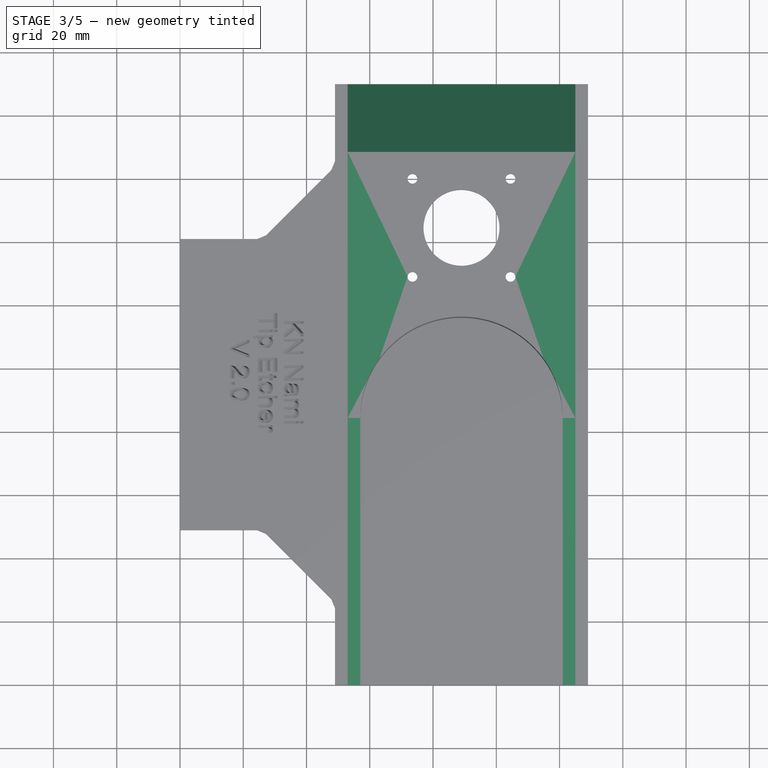
[diagram: stage 3 of 5 — top view after this stage's code; geometry added in this stage tinted green]
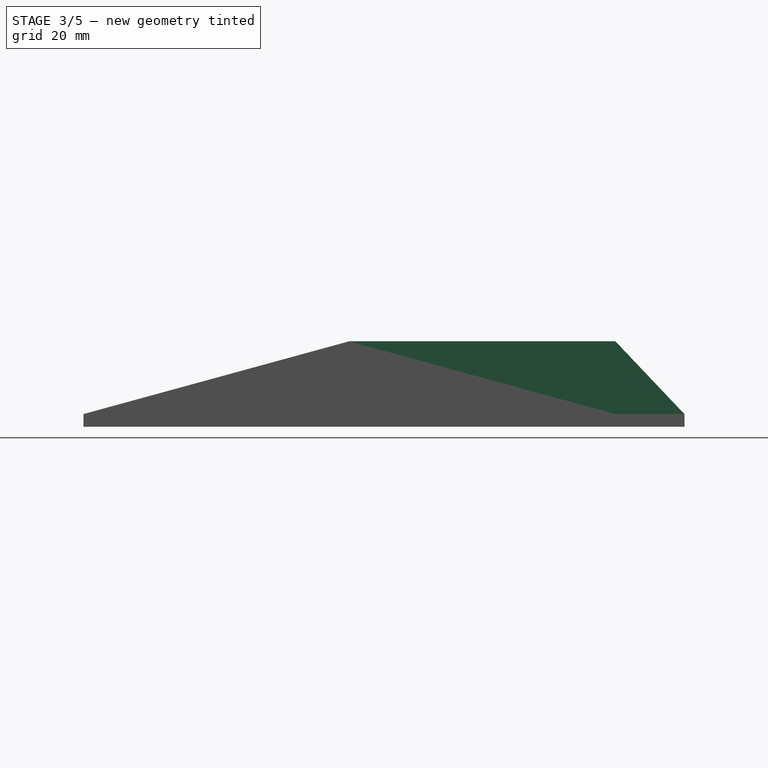
[diagram: stage 3 of 5 — right view after this stage's code; geometry added in this stage tinted green]
FEATURE [PartDesign::Pad] Pad009
  BaseFeature = -> Pad008
  Direction = (1,0,0)
  Length = 12
  Length2 = 10
  Profile = -> Pad008 [Face14]
  Refine = true
  Suppressed = false
  Type = 0
FEATURE [PartDesign::Pad] Pad010
  BaseFeature = -> Pad009
  Direction = (0,-1,0)
  Length = 27
  Length2 = 10
  Profile = -> Pad009 [Face30]
  Refine = true
  Suppressed = false
  Type = 0
FEATURE [PartDesign::Pad] Pad011
  BaseFeature = -> Pad010
  Direction = (-1,0,0)
  Length = 12
  Length2 = 10
  Profile = -> Pad010 [Face14]
  Refine = true
  Suppressed = false
  Type = 0
FEATURE [PartDesign::Pad] Pad012
  BaseFeature = -> Pad011
  Direction = (0,-1,0)
  Length = 27
  Length2 = 10
  Profile = -> Pad011 [Face31]
  Refine = true
  Suppressed = false
  Type = 0
FEATURE [Sketcher::SketchObject] Sketch006
  ArcFitTolerance = 1e-06
  AttachmentSupport = -> [Pad012]
  FullyConstrained = true
  MakeInternals = false
  MapMode = 5
  sketch-geometry (98):
    g0: LineSegment [constr] StartX=0 StartY=0 StartZ=0 EndX=49 EndY=0 EndZ=0
    g1: LineSegment [constr] StartX=0 StartY=0 StartZ=0 EndX=0 EndY=49 EndZ=0
    g2: LineSegment [constr] StartX=0 StartY=49 StartZ=0 EndX=24.3764 EndY=49 EndZ=0
    g3: LineSegment [constr] StartX=49 StartY=0 StartZ=0 EndX=49 EndY=24.3764 EndZ=0
    g4: LineSegment [constr] StartX=47.8519 StartY=27.1481 StartZ=0 EndX=27.1481 EndY=47.8519 EndZ=0
    g5: ArcOfCircle [constr] CenterX=24.3764 CenterY=45.0803 CenterZ=0 NormalX=0 NormalY=0 NormalZ=1 AngleXU=0 Radius=3.91969 StartAngle=0.785398 EndAngle=1.5708
    g6: GeomPoint [constr] X=26 Y=49 Z=0
    g7: LineSegment [constr] StartX=27.1481 StartY=47.8519 StartZ=0 EndX=24.3764 EndY=49 EndZ=0
    g8: ArcOfCircle [constr] CenterX=45.0803 CenterY=24.3764 CenterZ=0 NormalX=0 NormalY=0 NormalZ=1 AngleXU=0 Radius=3.91969 StartAngle=0 EndAngle=0.785398
    g9: GeomPoint [constr] X=49 Y=26 Z=0
    g10: LineSegment [constr] StartX=49 StartY=24.3764 StartZ=0 EndX=47.8519 EndY=27.1481 EndZ=0
    g11: LineSegment [constr] StartX=49 StartY=0 StartZ=0 EndX=129 EndY=0 EndZ=0
    g12: LineSegment [constr] StartX=129 StartY=0 StartZ=0 EndX=129 EndY=190 EndZ=0
    g13: LineSegment [constr] StartX=129 StartY=190 StartZ=0 EndX=49 EndY=190 EndZ=0
    g14: LineSegment [constr] StartX=49 StartY=190 StartZ=0 EndX=49 EndY=165.624 EndZ=0
    g15: LineSegment [constr] StartX=49 StartY=190 StartZ=0 EndX=0 EndY=190 EndZ=0
    g16: LineSegment [constr] StartX=0 StartY=190 StartZ=0 EndX=0 EndY=0 EndZ=0
    g17: LineSegment [constr] StartX=0 StartY=190 StartZ=0 EndX=0 EndY=141 EndZ=0
    g18: LineSegment [constr] StartX=0 StartY=141 StartZ=0 EndX=24.3764 EndY=141 EndZ=0
    g19: LineSegment [constr] StartX=27.1481 StartY=142.148 StartZ=0 EndX=47.8519 EndY=162.852 EndZ=0
    g20: ArcOfCircle [constr] CenterX=45.0803 CenterY=165.624 CenterZ=0 NormalX=0 NormalY=0 NormalZ=1 AngleXU=0 Radius=3.91969 StartAngle=5.49779 EndAngle=6.28319
    g21: GeomPoint [constr] X=49 Y=164 Z=0
    g22: LineSegment [constr] StartX=47.8519 StartY=162.852 StartZ=0 EndX=49 EndY=165.624 EndZ=0
    g23: ArcOfCircle [constr] CenterX=24.3764 CenterY=144.92 CenterZ=0 NormalX=0 NormalY=0 NormalZ=1 AngleXU=0 Radius=3.91969 StartAngle=4.71239 EndAngle=5.49779
    g24: GeomPoint [constr] X=26 Y=141 Z=0
    g25: LineSegment [constr] StartX=24.3764 StartY=141 StartZ=0 EndX=27.1481 EndY=142.148 EndZ=0
    g26: LineSegment [constr] StartX=0 StartY=141 StartZ=0 EndX=0 EndY=49 EndZ=0
    g27: LineSegment [constr] StartX=0 StartY=190 StartZ=0 EndX=0 EndY=144.16 EndZ=0
    g28: LineSegment [constr] StartX=0 StartY=144.16 StartZ=0 EndX=59.85 EndY=144.16 EndZ=0
    g29: Circle [constr] CenterX=59.85 CenterY=144.16 CenterZ=0 NormalX=0 NormalY=0 NormalZ=1 AngleXU=0 Radius=4.05
    g30: LineSegment [constr] StartX=59.85 StartY=144.16 StartZ=0 EndX=89 EndY=144.16 EndZ=0
    g31: LineSegment [constr] StartX=89 StartY=144.16 StartZ=0 EndX=118.15 EndY=144.16 EndZ=0
    g32: Circle [constr] CenterX=118.15 CenterY=144.16 CenterZ=0 NormalX=0 NormalY=0 NormalZ=1 AngleXU=0 Radius=4.05
    g33: Circle [constr] CenterX=89 CenterY=144.16 CenterZ=0 NormalX=0 NormalY=0 NormalZ=1 AngleXU=0 Radius=12
    g34: LineSegment [constr] StartX=89 StartY=144.16 StartZ=0 EndX=104.5 EndY=159.66 EndZ=0
    g35: Circle [constr] CenterX=104.5 CenterY=159.66 CenterZ=0 NormalX=0 NormalY=0 NormalZ=1 AngleXU=0 Radius=1.55
    g36: LineSegment [constr] StartX=129 StartY=190 StartZ=0 EndX=129 EndY=180 EndZ=0
    g37: LineSegment [constr] StartX=129 StartY=180 StartZ=0 EndX=109 EndY=180 EndZ=0
    g38: Circle [constr] CenterX=109 CenterY=180 CenterZ=0 NormalX=0 NormalY=0 NormalZ=1 AngleXU=0 Radius=2.55
    g39: LineSegment [constr] StartX=49 StartY=190 StartZ=0 EndX=49 EndY=180 EndZ=0
    g40: LineSegment [constr] StartX=49 StartY=180 StartZ=0 EndX=69 EndY=180 EndZ=0
    g41: LineSegment [constr] StartX=69 StartY=180 StartZ=0 EndX=69 EndY=190 EndZ=0
    g42: LineSegment [constr] StartX=69 StartY=190 StartZ=0 EndX=49 EndY=190 EndZ=0
    g43: Circle [constr] CenterX=69 CenterY=180 CenterZ=0 NormalX=0 NormalY=0 NormalZ=1 AngleXU=0 Radius=2.55
    g44: LineSegment [constr] StartX=0 StartY=141 StartZ=0 EndX=0 EndY=121 EndZ=0
    g45: LineSegment [constr] StartX=0 StartY=121 StartZ=0 EndX=10 EndY=121 EndZ=0
    g46: LineSegment [constr] StartX=10 StartY=121 StartZ=0 EndX=10 EndY=141 EndZ=0
    g47: LineSegment [constr] StartX=10 StartY=141 StartZ=0 EndX=0 EndY=141 EndZ=0
    g48: LineSegment [constr] StartX=0 StartY=49 StartZ=0 EndX=10 EndY=49 EndZ=0
    g49: LineSegment [constr] StartX=10 StartY=49 StartZ=0 EndX=10 EndY=69 EndZ=0
    g50: LineSegment [constr] StartX=10 StartY=69 StartZ=0 EndX=0 EndY=69 EndZ=0
    g51: LineSegment [constr] StartX=0 StartY=69 StartZ=0 EndX=0 EndY=49 EndZ=0
    g52: Circle [constr] CenterX=10 CenterY=121 CenterZ=0 NormalX=0 NormalY=0 NormalZ=1 AngleXU=0 Radius=2.55
    g53: Circle [constr] CenterX=10 CenterY=69 CenterZ=0 NormalX=0 NormalY=0 NormalZ=1 AngleXU=0 Radius=2.55
    g54: LineSegment [constr] StartX=49 StartY=0 StartZ=0 EndX=69 EndY=0 EndZ=0
    g55: LineSegment [constr] StartX=69 StartY=0 StartZ=0 EndX=69 EndY=10 EndZ=0
    g56: LineSegment [constr] StartX=69 StartY=10 StartZ=0 EndX=49 EndY=10 EndZ=0
    g57: LineSegment [constr] StartX=49 StartY=10 StartZ=0 EndX=49 EndY=0 EndZ=0
    g58: LineSegment [constr] StartX=129 StartY=0 StartZ=0 EndX=129 EndY=10 EndZ=0
    g59: LineSegment [constr] StartX=129 StartY=10 StartZ=0 EndX=109 EndY=10 EndZ=0
    g60: LineSegment [constr] StartX=109 StartY=10 StartZ=0 EndX=109 EndY=0 EndZ=0
    g61: LineSegment [constr] StartX=109 StartY=0 StartZ=0 EndX=129 EndY=0 EndZ=0
    g62: Circle [constr] CenterX=69 CenterY=10 CenterZ=0 NormalX=0 NormalY=0 NormalZ=1 AngleXU=0 Radius=2.55
    g63: Circle [constr] CenterX=109 CenterY=10 CenterZ=0 NormalX=0 NormalY=0 NormalZ=1 AngleXU=0 Radius=2.55
    g64: LineSegment [constr] StartX=89 StartY=144.16 StartZ=0 EndX=73.5 EndY=144.16 EndZ=0
    g65: LineSegment [constr] StartX=73.5 StartY=144.16 StartZ=0 EndX=73.5 EndY=128.66 EndZ=0
    g66: LineSegment [constr] StartX=73.5 StartY=128.66 StartZ=0 EndX=89 EndY=128.66 EndZ=0
    g67: LineSegment [constr] StartX=89 StartY=128.66 StartZ=0 EndX=89 EndY=144.16 EndZ=0
    g68: LineSegment [constr] StartX=65.9 StartY=121.06 StartZ=0 EndX=112.1 EndY=121.06 EndZ=0
    g69: LineSegment [constr] StartX=112.1 StartY=121.06 StartZ=0 EndX=112.1 EndY=167.26 EndZ=0
    g70: LineSegment [constr] StartX=112.1 StartY=167.26 StartZ=0 EndX=65.9 EndY=167.26 EndZ=0
    g71: LineSegment [constr] StartX=65.9 StartY=167.26 StartZ=0 EndX=65.9 EndY=121.06 EndZ=0
    g72: GeomPoint [constr] X=89 Y=144.16 Z=0
    g73: LineSegment [constr] StartX=73.5002 StartY=128.66 StartZ=0 EndX=104.5 EndY=128.66 EndZ=0
    g74: LineSegment [constr] StartX=104.5 StartY=128.66 StartZ=0 EndX=104.5 EndY=159.66 EndZ=0
    g75: LineSegment [constr] StartX=104.5 StartY=159.66 StartZ=0 EndX=73.5002 EndY=159.66 EndZ=0
    g76: LineSegment [constr] StartX=73.5002 StartY=159.66 StartZ=0 EndX=73.5002 EndY=128.66 EndZ=0
    g77: GeomPoint [constr] X=89 Y=144.16 Z=0
    g78: LineSegment [constr] StartX=65 StartY=120.16 StartZ=0 EndX=113 EndY=120.16 EndZ=0
    g79: LineSegment [constr] StartX=113 StartY=120.16 StartZ=0 EndX=113 EndY=168.16 EndZ=0
    g80: LineSegment [constr] StartX=113 StartY=168.16 StartZ=0 EndX=65 EndY=168.16 EndZ=0
    g81: LineSegment [constr] StartX=65 StartY=168.16 StartZ=0 EndX=65 EndY=120.16 EndZ=0
    g82: GeomPoint [constr] X=89 Y=144.16 Z=0
    g83: Circle [constr] CenterX=73.5002 CenterY=159.66 CenterZ=0 NormalX=0 NormalY=0 NormalZ=1 AngleXU=0 Radius=1.55
    g84: Circle [constr] CenterX=73.5 CenterY=128.66 CenterZ=0 NormalX=0 NormalY=0 NormalZ=1 AngleXU=0 Radius=1.55
    g85: Circle [constr] CenterX=104.5 CenterY=128.66 CenterZ=0 NormalX=0 NormalY=0 NormalZ=1 AngleXU=0 Radius=1.55
    g86: LineSegment [constr] StartX=89 StartY=144.16 StartZ=0 EndX=89 EndY=84.073 EndZ=0
    g87: LineSegment [constr] StartX=89 StartY=84.073 StartZ=0 EndX=121 EndY=84.073 EndZ=0
    g88: ArcOfCircle CenterX=89 CenterY=84.073 CenterZ=0 NormalX=0 NormalY=0 NormalZ=1 AngleXU=0 Radius=32 StartAngle=0 EndAngle=3.14159
    g89: LineSegment StartX=57 StartY=84.073 StartZ=0 EndX=57 EndY=0 EndZ=0
    g90: LineSegment StartX=121 StartY=84.073 StartZ=0 EndX=121 EndY=0 EndZ=0
    g91: LineSegment [constr] StartX=89 StartY=84.073 StartZ=0 EndX=125 EndY=84.073 EndZ=0
    g92: ArcOfCircle [constr] CenterX=89 CenterY=84.073 CenterZ=0 NormalX=0 NormalY=0 NormalZ=1 AngleXU=0 Radius=36 StartAngle=0 EndAngle=3.14159
    g93: LineSegment [constr] StartX=53 StartY=84.073 StartZ=0 EndX=53 EndY=0 EndZ=0
    g94: LineSegment [constr] StartX=125 StartY=84.073 StartZ=0 EndX=125 EndY=0 EndZ=0
    g95: LineSegment [constr] StartX=125 StartY=0 StartZ=0 EndX=121 EndY=0 EndZ=0
    g96: LineSegment [constr] StartX=57 StartY=0 StartZ=0 EndX=53 EndY=0 EndZ=0
    g97: LineSegment StartX=57 StartY=0 StartZ=0 EndX=121 EndY=0 EndZ=0
  constraints (246):
    c: Distance(g0) = 49
    c: Coincident(g0,g-1)
    c: PointOnObject(g0,g-1)
    c: Distance(g1) = 49
    c: Coincident(g1,g0)
    c: PointOnObject(g1,g-2)
    c: Distance(g2,g6) = 26
    c: Coincident(g2,g1)
    c: Horizontal(g2)
    c: Distance(g3,g9) = 26
    c: Coincident(g3,g0)
    c: Vertical(g3)
    c: PointOnObject(g6,g2)
    c: PointOnObject(g6,g4)
    c: Tangent(g2,g5) = 1.5708
    c: Tangent(g4,g5) = -1.5708
    c: Coincident(g7,g2)
    c: Coincident(g7,g4)
    c: PointOnObject(g9,g3)
    c: PointOnObject(g9,g4)
    c: Tangent(g3,g8) = -1.5708
    c: Tangent(g4,g8) = -1.5708
    c: Coincident(g10,g3)
    c: Coincident(g10,g4)
    c: Distance(g10,g10) = 3
    c: Distance(g7,g7) = 3
    c: Distance(g11) = 80
    c: Coincident(g11,g0)
    c: PointOnObject(g11,g-1)
    c: Distance(g12) = 190
    c: Coincident(g12,g11)
    c: Vertical(g12)
    c: Distance(g13) = 80
    c: Coincident(g13,g12)
    c: Horizontal(g13)
    c: Distance(g14,g21) = 26
    c: Coincident(g14,g13)
    c: Vertical(g14)
    c: Coincident(g15,g13)
    c: PointOnObject(g15,g-2)
    c: Horizontal(g15)
    c: Coincident(g16,g15)
    c: Coincident(g16,g0)
    c: Distance(g17) = 49
    c: Coincident(g17,g15)
    c: PointOnObject(g17,g16)
    c: Distance(g18,g24) = 26
    c: Coincident(g18,g17)
    c: Horizontal(g18)
    c: PointOnObject(g21,g14)
    c: PointOnObject(g21,g19)
    c: Tangent(g14,g20) = 1.5708
    c: Tangent(g19,g20) = -1.5708
    c: Coincident(g22,g14)
    c: Coincident(g22,g19)
    c: PointOnObject(g24,g18)
    c: PointOnObject(g24,g19)
    c: Tangent(g18,g23) = -1.5708
    c: Tangent(g19,g23) = -1.5708
    c: Coincident(g25,g18)
    c: Coincident(g25,g19)
    c: Distance(g25,g25) = 3
    c: Distance(g22,g22) = 3
    c: Coincident(g26,g17)
    c: Coincident(g26,g1)
    c: Distance(g27) = 45.84
    c: Coincident(g27,g15)
    c: PointOnObject(g27,g16)
    c: Distance(g28) = 59.85
    c: Coincident(g28,g27)
    c: Horizontal(g28)
    c: Diameter(g29) = 8.1
    c: Coincident(g29,g28)
    c: Distance(g30) = 29.15
    c: Coincident(g30,g28)
    c: Horizontal(g30)
    c: Distance(g31) = 29.15
    c: Coincident(g31,g30)
    c: Horizontal(g31)
    c: Diameter(g32) = 8.1
    c: Coincident(g32,g31)
    c: Diameter(g33) = 24
    c: Coincident(g33,g30)
    c: Distance(g34) = 21.92
    c: Angle(g-1,g34) = 0.785398
    c: Coincident(g34,g30)
    c: Diameter(g35) = 3.1
    c: Coincident(g35,g34)
    c: Distance(g36) = 10
    c: Coincident(g36,g12)
    c: PointOnObject(g36,g12)
    c: Distance(g37) = 20
    c: Coincident(g37,g36)
    c: Horizontal(g37)
    c: Diameter(g38) = 5.1
    c: Coincident(g38,g37)
    c: Coincident(g39,g40)
    c: Coincident(g40,g41)
    c: Coincident(g41,g42)
    c: Coincident(g42,g39)
    c: Vertical(g39)
    c: Vertical(g41)
    c: Horizontal(g40)
    c: Horizontal(g42)
    c: Distance(g39,g41) = 20
    c: Distance(g40,g42) = 10
    c: Coincident(g39,g13)
    c: Diameter(g43) = 5.1
    c: Coincident(g43,g40)
    c: Coincident(g44,g45)
    c: Coincident(g45,g46)
    c: Coincident(g46,g47)
    c: Coincident(g47,g44)
    c: Vertical(g44)
    c: Vertical(g46)
    c: Horizontal(g45)
    c: Horizontal(g47)
    c: Distance(g44,g46) = 10
    c: Distance(g45,g47) = 20
    c: Coincident(g44,g17)
    c: Coincident(g48,g49)
    c: Coincident(g49,g50)
    c: Coincident(g50,g51)
    c: Coincident(g51,g48)
    c: Horizontal(g48)
    c: Horizontal(g50)
    c: Vertical(g49)
    c: Vertical(g51)
    c: Distance(g49,g51) = 10
    c: Distance(g48,g50) = 20
    c: Coincident(g48,g1)
    c: Diameter(g52) = 5.1
    c: Coincident(g52,g45)
    c: Diameter(g53) = 5.1
    c: Coincident(g53,g49)
    c: Coincident(g54,g55)
    c: Coincident(g55,g56)
    c: Coincident(g56,g57)
    c: Coincident(g57,g54)
    c: Horizontal(g54)
    c: Horizontal(g56)
    c: Vertical(g55)
    c: Vertical(g57)
    c: Distance(g55,g57) = 20
    c: Distance(g54,g56) = 10
    c: Coincident(g54,g0)
    c: Coincident(g58,g59)
    c: Coincident(g59,g60)
    c: Coincident(g60,g61)
    c: Coincident(g61,g58)
    c: Vertical(g58)
    c: Vertical(g60)
    c: Horizontal(g59)
    c: Horizontal(g61)
    c: Distance(g58,g60) = 20
    c: Distance(g59,g61) = 10
    c: Coincident(g58,g11)
    c: Diameter(g62) = 5.1
    c: Coincident(g62,g55)
    c: Diameter(g63) = 5.1
    c: Coincident(g63,g59)
    c: Coincident(g64,g65)
    c: Coincident(g65,g66)
    c: Coincident(g66,g67)
    c: Coincident(g67,g64)
    c: Horizontal(g64)
    c: Horizontal(g66)
    c: Vertical(g65)
    c: Vertical(g67)
    c: Distance(g65,g67) = 15.5
    c: Distance(g64,g66) = 15.5
    c: Coincident(g64,g30)
    c: Coincident(g68,g69)
    c: Coincident(g69,g70)
    c: Coincident(g70,g71)
    c: Coincident(g71,g68)
    c: Horizontal(g68)
    c: Horizontal(g70)
    c: Vertical(g69)
    c: Vertical(g71)
    c: Symmetric(g70,g68,g72)
    c: Distance(g69,g71) = 46.2
    c: Distance(g68,g70) = 46.2
    c: Coincident(g72,g30)
    c: Coincident(g73,g74)
    c: Coincident(g74,g75)
    c: Coincident(g75,g76)
    c: Coincident(g76,g73)
    c: Horizontal(g73)
    c: Horizontal(g75)
    c: Vertical(g74)
    c: Vertical(g76)
    c: Symmetric(g75,g73,g77)
    c: Coincident(g77,g30)
    c: Coincident(g74,g34)
    c: Coincident(g78,g79)
    c: Coincident(g79,g80)
    c: Coincident(g80,g81)
    c: Coincident(g81,g78)
    c: Horizontal(g78)
    c: Horizontal(g80)
    c: Vertical(g79)
    c: Vertical(g81)
    c: Symmetric(g80,g78,g82)
    c: Distance(g79,g81) = 48
    c: Distance(g78,g80) = 48
    c: Coincident(g82,g30)
    c: Diameter(g83) = 3.1
    c: Coincident(g83,g75)
    c: Diameter(g84) = 3.1
    c: Coincident(g84,g65)
    c: Diameter(g85) = 3.1
    c: Coincident(g85,g73)
    c: Distance(g86) = 60.087
    c: Coincident(g86,g30)
    c: Vertical(g86)
    c: Distance(g87) = 32
    c: Coincident(g87,g86)
    c: Horizontal(g87)
    c: Angle(g88) = 3.14159
    c: Coincident(g88,g86)
    c: Coincident(g88,g87)
    c: Coincident(g89,g88)
    c: PointOnObject(g89,g11)
    c: Vertical(g89)
    c: Coincident(g90,g87)
    c: PointOnObject(g90,g11)
    c: Vertical(g90)
    c: Distance(g91) = 36
    c: Coincident(g91,g86)
    c: Horizontal(g91)
    c: Angle(g92) = 3.14159
    c: Coincident(g92,g86)
    c: Coincident(g92,g91)
    c: Coincident(g93,g92)
    c: PointOnObject(g93,g11)
    c: Vertical(g93)
    c: Coincident(g94,g91)
    c: PointOnObject(g94,g11)
    c: Vertical(g94)
    c: Coincident(g95,g94)
    c: Coincident(g95,g90)
    c: Coincident(g96,g89)
    c: Coincident(g96,g93)
    c: Coincident(g97,g89)
    c: Coincident(g97,g90)
FEATURE [PartDesign::Pocket] Pocket001
  BaseFeature = -> Pad012
  Direction = (0,0,-1)
  Length = 23
  Length2 = 5
  Profile = -> Sketch006
  ReferenceAxis = -> Sketch006 [N_Axis]
  Refine = true
  Reversed = true
  Suppressed = false
  Type = 0
FEATURE [PartDesign::Chamfer] Chamfer
  Angle = 45
  Base = -> Pocket001 [Edge10,Edge6]
  BaseFeature = -> Pocket001
  ChamferType = 1
  FlipDirection = false
  Refine = true
  Size = 23
  Size2 = 84
  SupportTransform = false
  Suppressed = false
  UseAllEdges = false
FEATURE [PartDesign::Chamfer] Chamfer001
  Angle = 45
  Base = -> Chamfer [Edge25]
  BaseFeature = -> Chamfer
  ChamferType = 1
  FlipDirection = false
  Refine = true
  Size = 21.8
  Size2 = 22.99
  SupportTransform = false
  Suppressed = false
  UseAllEdges = false
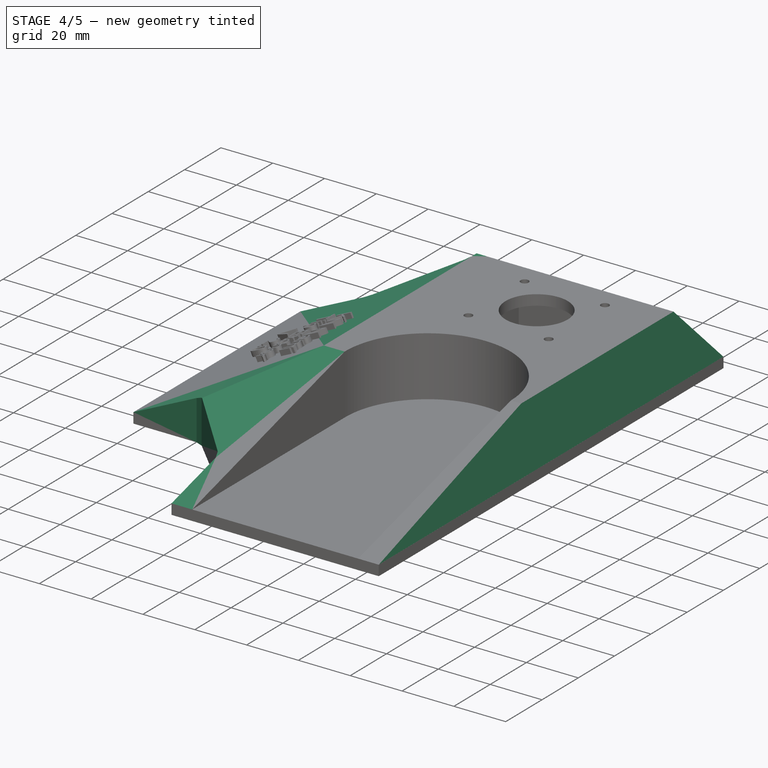
[diagram: stage 4 of 5 — iso view after this stage's code; geometry added in this stage tinted green]
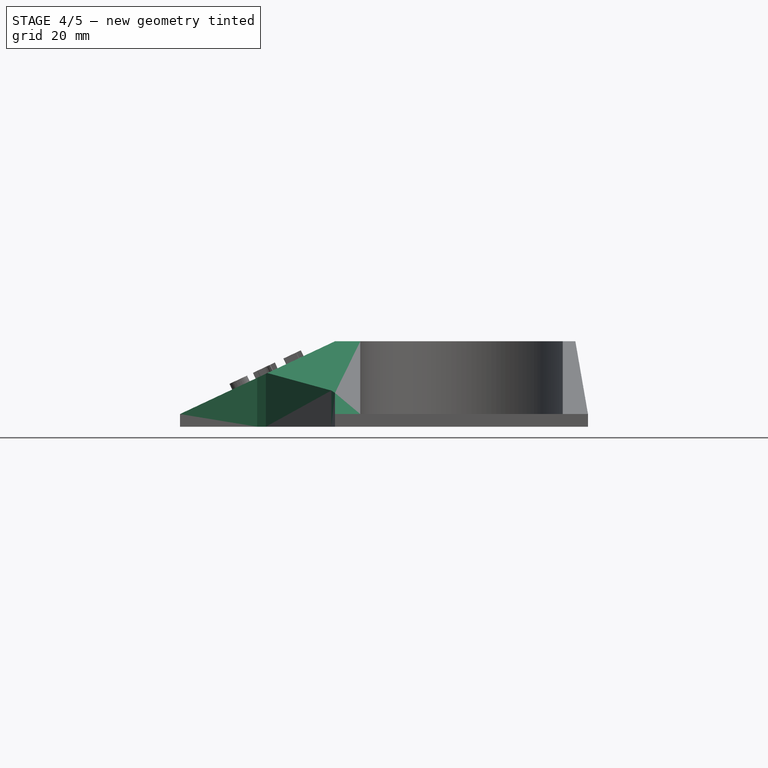
[diagram: stage 4 of 5 — front view after this stage's code; geometry added in this stage tinted green]
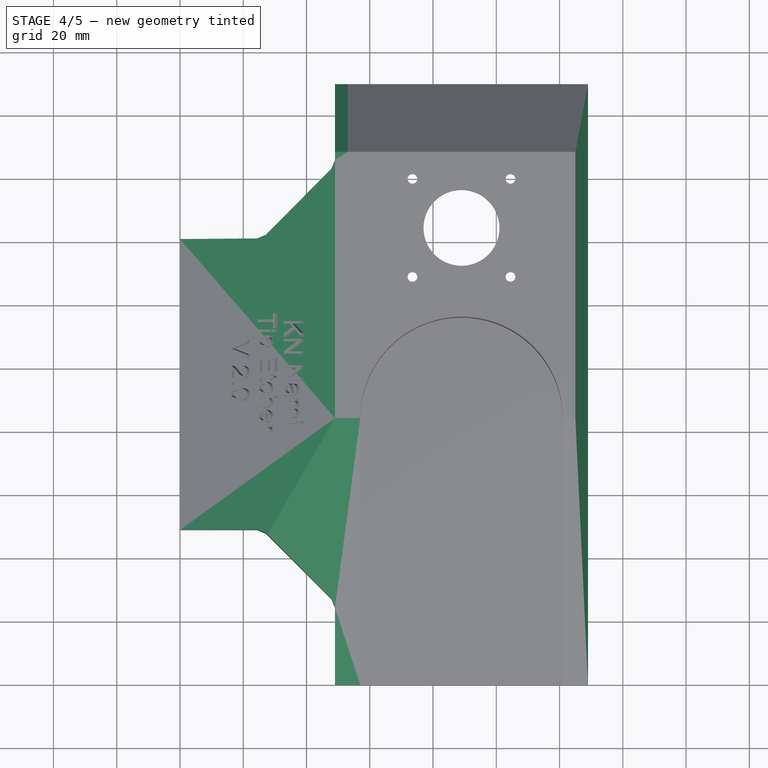
[diagram: stage 4 of 5 — top view after this stage's code; geometry added in this stage tinted green]
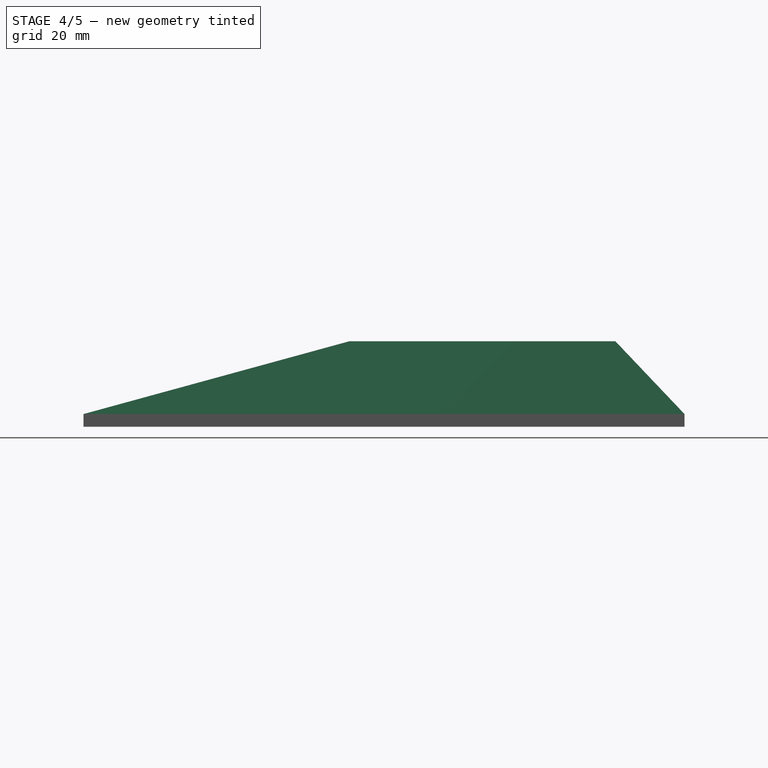
[diagram: stage 4 of 5 — right view after this stage's code; geometry added in this stage tinted green]
FEATURE [PartDesign::Chamfer] Chamfer002
  Angle = 45
  Base = -> Chamfer001 [Edge2]
  BaseFeature = -> Chamfer001
  ChamferType = 1
  FlipDirection = false
  Refine = true
  Size = 3.99
  Size2 = 22.99
  SupportTransform = false
  Suppressed = false
  UseAllEdges = false
FEATURE [Sketcher::SketchObject] Sketch007
  ArcFitTolerance = 1e-06
  AttachmentSupport = -> [Chamfer002]
  FullyConstrained = true
  MakeInternals = false
  MapMode = 5
  sketch-geometry (111):
    g0: LineSegment [constr] StartX=0 StartY=0 StartZ=0 EndX=49 EndY=0 EndZ=0
    g1: LineSegment [constr] StartX=0 StartY=0 StartZ=0 EndX=0 EndY=49 EndZ=0
    g2: LineSegment [constr] StartX=0 StartY=49 StartZ=0 EndX=24.3764 EndY=49 EndZ=0
    g3: LineSegment [constr] StartX=49 StartY=0 StartZ=0 EndX=49 EndY=24.3764 EndZ=0
    g4: LineSegment [constr] StartX=47.8519 StartY=27.1481 StartZ=0 EndX=27.1481 EndY=47.8519 EndZ=0
    g5: ArcOfCircle [constr] CenterX=24.3764 CenterY=45.0803 CenterZ=0 NormalX=0 NormalY=0 NormalZ=1 AngleXU=0 Radius=3.91969 StartAngle=0.785398 EndAngle=1.5708
    g6: GeomPoint [constr] X=26 Y=49 Z=0
    g7: LineSegment [constr] StartX=27.1481 StartY=47.8519 StartZ=0 EndX=24.3764 EndY=49 EndZ=0
    g8: ArcOfCircle [constr] CenterX=45.0803 CenterY=24.3764 CenterZ=0 NormalX=0 NormalY=0 NormalZ=1 AngleXU=0 Radius=3.91969 StartAngle=0 EndAngle=0.785398
    g9: GeomPoint [constr] X=49 Y=26 Z=0
    g10: LineSegment [constr] StartX=49 StartY=24.3764 StartZ=0 EndX=47.8519 EndY=27.1481 EndZ=0
    g11: LineSegment [constr] StartX=49 StartY=0 StartZ=0 EndX=129 EndY=0 EndZ=0
    g12: LineSegment [constr] StartX=129 StartY=0 StartZ=0 EndX=129 EndY=190 EndZ=0
    g13: LineSegment [constr] StartX=129 StartY=190 StartZ=0 EndX=49 EndY=190 EndZ=0
    g14: LineSegment [constr] StartX=49 StartY=190 StartZ=0 EndX=49 EndY=165.624 EndZ=0
    g15: LineSegment [constr] StartX=49 StartY=190 StartZ=0 EndX=0 EndY=190 EndZ=0
    g16: LineSegment [constr] StartX=0 StartY=190 StartZ=0 EndX=0 EndY=0 EndZ=0
    g17: LineSegment [constr] StartX=0 StartY=190 StartZ=0 EndX=0 EndY=141 EndZ=0
    g18: LineSegment [constr] StartX=0 StartY=141 StartZ=0 EndX=24.3764 EndY=141 EndZ=0
    g19: LineSegment [constr] StartX=27.1481 StartY=142.148 StartZ=0 EndX=47.8519 EndY=162.852 EndZ=0
    g20: ArcOfCircle [constr] CenterX=45.0803 CenterY=165.624 CenterZ=0 NormalX=0 NormalY=0 NormalZ=1 AngleXU=0 Radius=3.91969 StartAngle=5.49779 EndAngle=6.28319
    g21: GeomPoint [constr] X=49 Y=164 Z=0
    g22: LineSegment [constr] StartX=47.8519 StartY=162.852 StartZ=0 EndX=49 EndY=165.624 EndZ=0
    g23: ArcOfCircle [constr] CenterX=24.3764 CenterY=144.92 CenterZ=0 NormalX=0 NormalY=0 NormalZ=1 AngleXU=0 Radius=3.91969 StartAngle=4.71239 EndAngle=5.49779
    g24: GeomPoint [constr] X=26 Y=141 Z=0
    g25: LineSegment [constr] StartX=24.3764 StartY=141 StartZ=0 EndX=27.1481 EndY=142.148 EndZ=0
    g26: LineSegment [constr] StartX=0 StartY=141 StartZ=0 EndX=0 EndY=49 EndZ=0
    g27: LineSegment [constr] StartX=0 StartY=190 StartZ=0 EndX=0 EndY=144.16 EndZ=0
    g28: LineSegment [constr] StartX=0 StartY=144.16 StartZ=0 EndX=59.85 EndY=144.16 EndZ=0
    g29: Circle [constr] CenterX=59.85 CenterY=144.16 CenterZ=0 NormalX=0 NormalY=0 NormalZ=1 AngleXU=0 Radius=4.05
    g30: LineSegment [constr] StartX=59.85 StartY=144.16 StartZ=0 EndX=89 EndY=144.16 EndZ=0
    g31: LineSegment [constr] StartX=89 StartY=144.16 StartZ=0 EndX=118.15 EndY=144.16 EndZ=0
    g32: Circle [constr] CenterX=118.15 CenterY=144.16 CenterZ=0 NormalX=0 NormalY=0 NormalZ=1 AngleXU=0 Radius=4.05
    g33: Circle [constr] CenterX=89 CenterY=144.16 CenterZ=0 NormalX=0 NormalY=0 NormalZ=1 AngleXU=0 Radius=12
    g34: LineSegment [constr] StartX=89 StartY=144.16 StartZ=0 EndX=104.5 EndY=159.66 EndZ=0
    g35: Circle [constr] CenterX=104.5 CenterY=159.66 CenterZ=0 NormalX=0 NormalY=0 NormalZ=1 AngleXU=0 Radius=1.55
    g36: LineSegment [constr] StartX=129 StartY=190 StartZ=0 EndX=129 EndY=180 EndZ=0
    g37: LineSegment [constr] StartX=129 StartY=180 StartZ=0 EndX=109 EndY=180 EndZ=0
    g38: Circle [constr] CenterX=109 CenterY=180 CenterZ=0 NormalX=0 NormalY=0 NormalZ=1 AngleXU=0 Radius=2.55
    g39: LineSegment [constr] StartX=49 StartY=190 StartZ=0 EndX=49 EndY=180 EndZ=0
    g40: LineSegment [constr] StartX=49 StartY=180 StartZ=0 EndX=69 EndY=180 EndZ=0
    g41: LineSegment [constr] StartX=69 StartY=180 StartZ=0 EndX=69 EndY=190 EndZ=0
    g42: LineSegment [constr] StartX=69 StartY=190 StartZ=0 EndX=49 EndY=190 EndZ=0
    g43: Circle [constr] CenterX=69 CenterY=180 CenterZ=0 NormalX=0 NormalY=0 NormalZ=1 AngleXU=0 Radius=2.55
    g44: LineSegment [constr] StartX=0 StartY=141 StartZ=0 EndX=0 EndY=121 EndZ=0
    g45: LineSegment [constr] StartX=0 StartY=121 StartZ=0 EndX=10 EndY=121 EndZ=0
    g46: LineSegment [constr] StartX=10 StartY=121 StartZ=0 EndX=10 EndY=141 EndZ=0
    g47: LineSegment [constr] StartX=10 StartY=141 StartZ=0 EndX=0 EndY=141 EndZ=0
    g48: LineSegment [constr] StartX=0 StartY=49 StartZ=0 EndX=10 EndY=49 EndZ=0
    g49: LineSegment [constr] StartX=10 StartY=49 StartZ=0 EndX=10 EndY=69 EndZ=0
    g50: LineSegment [constr] StartX=10 StartY=69 StartZ=0 EndX=0 EndY=69 EndZ=0
    g51: LineSegment [constr] StartX=0 StartY=69 StartZ=0 EndX=0 EndY=49 EndZ=0
    g52: Circle [constr] CenterX=10 CenterY=121 CenterZ=0 NormalX=0 NormalY=0 NormalZ=1 AngleXU=0 Radius=2.55
    g53: Circle [constr] CenterX=10 CenterY=69 CenterZ=0 NormalX=0 NormalY=0 NormalZ=1 AngleXU=0 Radius=2.55
    g54: LineSegment [constr] StartX=49 StartY=0 StartZ=0 EndX=69 EndY=0 EndZ=0
    g55: LineSegment [constr] StartX=69 StartY=0 StartZ=0 EndX=69 EndY=10 EndZ=0
    g56: LineSegment [constr] StartX=69 StartY=10 StartZ=0 EndX=49 EndY=10 EndZ=0
    g57: LineSegment [constr] StartX=49 StartY=10 StartZ=0 EndX=49 EndY=0 EndZ=0
    g58: LineSegment [constr] StartX=129 StartY=0 StartZ=0 EndX=129 EndY=10 EndZ=0
    g59: LineSegment [constr] StartX=129 StartY=10 StartZ=0 EndX=109 EndY=10 EndZ=0
    g60: LineSegment [constr] StartX=109 StartY=10 StartZ=0 EndX=109 EndY=0 EndZ=0
    g61: LineSegment [constr] StartX=109 StartY=0 StartZ=0 EndX=129 EndY=0 EndZ=0
    g62: Circle [constr] CenterX=69 CenterY=10 CenterZ=0 NormalX=0 NormalY=0 NormalZ=1 AngleXU=0 Radius=2.55
    g63: Circle [constr] CenterX=109 CenterY=10 CenterZ=0 NormalX=0 NormalY=0 NormalZ=1 AngleXU=0 Radius=2.55
    g64: LineSegment [constr] StartX=89 StartY=144.16 StartZ=0 EndX=73.5 EndY=144.16 EndZ=0
    g65: LineSegment [constr] StartX=73.5 StartY=144.16 StartZ=0 EndX=73.5 EndY=128.66 EndZ=0
    g66: LineSegment [constr] StartX=73.5 StartY=128.66 StartZ=0 EndX=89 EndY=128.66 EndZ=0
    g67: LineSegment [constr] StartX=89 StartY=128.66 StartZ=0 EndX=89 EndY=144.16 EndZ=0
    g68: LineSegment [constr] StartX=65.9 StartY=121.06 StartZ=0 EndX=112.1 EndY=121.06 EndZ=0
    g69: LineSegment [constr] StartX=112.1 StartY=121.06 StartZ=0 EndX=112.1 EndY=167.26 EndZ=0
    g70: LineSegment [constr] StartX=112.1 StartY=167.26 StartZ=0 EndX=65.9 EndY=167.26 EndZ=0
    g71: LineSegment [constr] StartX=65.9 StartY=167.26 StartZ=0 EndX=65.9 EndY=121.06 EndZ=0
    g72: GeomPoint [constr] X=89 Y=144.16 Z=0
    g73: LineSegment [constr] StartX=73.5002 StartY=128.66 StartZ=0 EndX=104.5 EndY=128.66 EndZ=0
    g74: LineSegment [constr] StartX=104.5 StartY=128.66 StartZ=0 EndX=104.5 EndY=159.66 EndZ=0
    g75: LineSegment [constr] StartX=104.5 StartY=159.66 StartZ=0 EndX=73.5002 EndY=159.66 EndZ=0
    g76: LineSegment [constr] StartX=73.5002 StartY=159.66 StartZ=0 EndX=73.5002 EndY=128.66 EndZ=0
    g77: GeomPoint [constr] X=89 Y=144.16 Z=0
    g78: LineSegment [constr] StartX=65 StartY=120.16 StartZ=0 EndX=113 EndY=120.16 EndZ=0
    g79: LineSegment [constr] StartX=113 StartY=120.16 StartZ=0 EndX=113 EndY=168.16 EndZ=0
    g80: LineSegment [constr] StartX=113 StartY=168.16 StartZ=0 EndX=65 EndY=168.16 EndZ=0
    g81: LineSegment [constr] StartX=65 StartY=168.16 StartZ=0 EndX=65 EndY=120.16 EndZ=0
    g82: GeomPoint [constr] X=89 Y=144.16 Z=0
    g83: Circle [constr] CenterX=73.5002 CenterY=159.66 CenterZ=0 NormalX=0 NormalY=0 NormalZ=1 AngleXU=0 Radius=1.55
    g84: Circle [constr] CenterX=73.5 CenterY=128.66 CenterZ=0 NormalX=0 NormalY=0 NormalZ=1 AngleXU=0 Radius=1.55
    g85: Circle [constr] CenterX=104.5 CenterY=128.66 CenterZ=0 NormalX=0 NormalY=0 NormalZ=1 AngleXU=0 Radius=1.55
    g86: LineSegment [constr] StartX=89 StartY=144.16 StartZ=0 EndX=89 EndY=84.073 EndZ=0
    g87: LineSegment [constr] StartX=89 StartY=84.073 StartZ=0 EndX=121 EndY=84.073 EndZ=0
    g88: ArcOfCircle [constr] CenterX=89 CenterY=84.073 CenterZ=0 NormalX=0 NormalY=0 NormalZ=1 AngleXU=0 Radius=32 StartAngle=0 EndAngle=3.14159
    g89: LineSegment [constr] StartX=57 StartY=84.073 StartZ=0 EndX=57 EndY=0 EndZ=0
    g90: LineSegment [constr] StartX=121 StartY=84.073 StartZ=0 EndX=121 EndY=0 EndZ=0
    g91: LineSegment [constr] StartX=89 StartY=84.073 StartZ=0 EndX=125 EndY=84.073 EndZ=0
    g92: ArcOfCircle [constr] CenterX=89 CenterY=84.073 CenterZ=0 NormalX=0 NormalY=0 NormalZ=1 AngleXU=0 Radius=36 StartAngle=0 EndAngle=3.14159
    g93: LineSegment [constr] StartX=53 StartY=84.073 StartZ=0 EndX=53 EndY=0 EndZ=0
    g94: LineSegment [constr] StartX=125 StartY=84.073 StartZ=0 EndX=125 EndY=0 EndZ=0
    g95: LineSegment [constr] StartX=125 StartY=0 StartZ=0 EndX=121 EndY=0 EndZ=0
    g96: LineSegment [constr] StartX=57 StartY=0 StartZ=0 EndX=53 EndY=0 EndZ=0
    g97: LineSegment StartX=53 StartY=190 StartZ=0 EndX=53 EndY=0 EndZ=0
    g98: LineSegment StartX=53 StartY=0 StartZ=0 EndX=49 EndY=0 EndZ=0
    g99: LineSegment StartX=49 StartY=0 StartZ=0 EndX=49 EndY=24.3764 EndZ=0
    g100: LineSegment StartX=49 StartY=24.3764 StartZ=0 EndX=47.8519 EndY=27.1481 EndZ=0
    g101: LineSegment StartX=47.8519 StartY=27.1481 StartZ=0 EndX=27.1481 EndY=47.8519 EndZ=0
    g102: LineSegment StartX=27.1481 StartY=47.8519 StartZ=0 EndX=24.3764 EndY=49 EndZ=0
    g103: LineSegment StartX=24.3764 StartY=49 StartZ=0 EndX=0 EndY=49 EndZ=0
    g104: LineSegment StartX=0 StartY=49 StartZ=0 EndX=0 EndY=141 EndZ=0
    g105: LineSegment StartX=0 StartY=141 StartZ=0 EndX=24.3764 EndY=141 EndZ=0
    g106: LineSegment StartX=27.1481 StartY=142.148 StartZ=0 EndX=24.3764 EndY=141 EndZ=0
    g107: LineSegment StartX=27.1481 StartY=142.148 StartZ=0 EndX=47.8519 EndY=162.852 EndZ=0
    g108: LineSegment StartX=47.8519 StartY=162.852 StartZ=0 EndX=49 EndY=165.624 EndZ=0
    g109: LineSegment StartX=49 StartY=165.624 StartZ=0 EndX=49 EndY=190 EndZ=0
    g110: LineSegment StartX=49 StartY=190 StartZ=0 EndX=53 EndY=190 EndZ=0
  constraints (273):
    c: Distance(g0) = 49
    c: Coincident(g0,g-1)
    c: PointOnObject(g0,g-1)
    c: Distance(g1) = 49
    c: Coincident(g1,g0)
    c: PointOnObject(g1,g-2)
    c: Distance(g2,g6) = 26
    c: Coincident(g2,g1)
    c: Horizontal(g2)
    c: Distance(g3,g9) = 26
    c: Coincident(g3,g0)
    c: Vertical(g3)
    c: PointOnObject(g6,g2)
    c: PointOnObject(g6,g4)
    c: Tangent(g2,g5) = 1.5708
    c: Tangent(g4,g5) = -1.5708
    c: Coincident(g7,g2)
    c: Coincident(g7,g4)
    c: PointOnObject(g9,g3)
    c: PointOnObject(g9,g4)
    c: Tangent(g3,g8) = -1.5708
    c: Tangent(g4,g8) = -1.5708
    c: Coincident(g10,g3)
    c: Coincident(g10,g4)
    c: Distance(g10,g10) = 3
    c: Distance(g7,g7) = 3
    c: Distance(g11) = 80
    c: Coincident(g11,g0)
    c: PointOnObject(g11,g-1)
    c: Distance(g12) = 190
    c: Coincident(g12,g11)
    c: Vertical(g12)
    c: Distance(g13) = 80
    c: Coincident(g13,g12)
    c: Horizontal(g13)
    c: Distance(g14,g21) = 26
    c: Coincident(g14,g13)
    c: Vertical(g14)
    c: Coincident(g15,g13)
    c: PointOnObject(g15,g-2)
    c: Horizontal(g15)
    c: Coincident(g16,g15)
    c: Coincident(g16,g0)
    c: Distance(g17) = 49
    c: Coincident(g17,g15)
    c: PointOnObject(g17,g16)
    c: Distance(g18,g24) = 26
    c: Coincident(g18,g17)
    c: Horizontal(g18)
    c: PointOnObject(g21,g14)
    c: PointOnObject(g21,g19)
    c: Tangent(g14,g20) = 1.5708
    c: Tangent(g19,g20) = -1.5708
    c: Coincident(g22,g14)
    c: Coincident(g22,g19)
    c: PointOnObject(g24,g18)
    c: PointOnObject(g24,g19)
    c: Tangent(g18,g23) = -1.5708
    c: Tangent(g19,g23) = -1.5708
    c: Coincident(g25,g18)
    c: Coincident(g25,g19)
    c: Distance(g25,g25) = 3
    c: Distance(g22,g22) = 3
    c: Coincident(g26,g17)
    c: Coincident(g26,g1)
    c: Distance(g27) = 45.84
    c: Coincident(g27,g15)
    c: PointOnObject(g27,g16)
    c: Distance(g28) = 59.85
    c: Coincident(g28,g27)
    c: Horizontal(g28)
    c: Diameter(g29) = 8.1
    c: Coincident(g29,g28)
    c: Distance(g30) = 29.15
    c: Coincident(g30,g28)
    c: Horizontal(g30)
    c: Distance(g31) = 29.15
    c: Coincident(g31,g30)
    c: Horizontal(g31)
    c: Diameter(g32) = 8.1
    c: Coincident(g32,g31)
    c: Diameter(g33) = 24
    c: Coincident(g33,g30)
    c: Distance(g34) = 21.92
    c: Angle(g-1,g34) = 0.785398
    c: Coincident(g34,g30)
    c: Diameter(g35) = 3.1
    c: Coincident(g35,g34)
    c: Distance(g36) = 10
    c: Coincident(g36,g12)
    c: PointOnObject(g36,g12)
    c: Distance(g37) = 20
    c: Coincident(g37,g36)
    c: Horizontal(g37)
    c: Diameter(g38) = 5.1
    c: Coincident(g38,g37)
    c: Coincident(g39,g40)
    c: Coincident(g40,g41)
    c: Coincident(g41,g42)
    c: Coincident(g42,g39)
    c: Vertical(g39)
    c: Vertical(g41)
    c: Horizontal(g40)
    c: Horizontal(g42)
    c: Distance(g39,g41) = 20
    c: Distance(g40,g42) = 10
    c: Coincident(g39,g13)
    c: Diameter(g43) = 5.1
    c: Coincident(g43,g40)
    c: Coincident(g44,g45)
    c: Coincident(g45,g46)
    c: Coincident(g46,g47)
    c: Coincident(g47,g44)
    c: Vertical(g44)
    c: Vertical(g46)
    c: Horizontal(g45)
    c: Horizontal(g47)
    c: Distance(g44,g46) = 10
    c: Distance(g45,g47) = 20
    c: Coincident(g44,g17)
    c: Coincident(g48,g49)
    c: Coincident(g49,g50)
    c: Coincident(g50,g51)
    c: Coincident(g51,g48)
    c: Horizontal(g48)
    c: Horizontal(g50)
    c: Vertical(g49)
    c: Vertical(g51)
    c: Distance(g49,g51) = 10
    c: Distance(g48,g50) = 20
    c: Coincident(g48,g1)
    c: Diameter(g52) = 5.1
    c: Coincident(g52,g45)
    c: Diameter(g53) = 5.1
    c: Coincident(g53,g49)
    c: Coincident(g54,g55)
    c: Coincident(g55,g56)
    c: Coincident(g56,g57)
    c: Coincident(g57,g54)
    c: Horizontal(g54)
    c: Horizontal(g56)
    c: Vertical(g55)
    c: Vertical(g57)
    c: Distance(g55,g57) = 20
    c: Distance(g54,g56) = 10
    c: Coincident(g54,g0)
    c: Coincident(g58,g59)
    c: Coincident(g59,g60)
    c: Coincident(g60,g61)
    c: Coincident(g61,g58)
    c: Vertical(g58)
    c: Vertical(g60)
    c: Horizontal(g59)
    c: Horizontal(g61)
    c: Distance(g58,g60) = 20
    c: Distance(g59,g61) = 10
    c: Coincident(g58,g11)
    c: Diameter(g62) = 5.1
    c: Coincident(g62,g55)
    c: Diameter(g63) = 5.1
    c: Coincident(g63,g59)
    c: Coincident(g64,g65)
    c: Coincident(g65,g66)
    c: Coincident(g66,g67)
    c: Coincident(g67,g64)
    c: Horizontal(g64)
    c: Horizontal(g66)
    c: Vertical(g65)
    c: Vertical(g67)
    c: Distance(g65,g67) = 15.5
    c: Distance(g64,g66) = 15.5
    c: Coincident(g64,g30)
    c: Coincident(g68,g69)
    c: Coincident(g69,g70)
    c: Coincident(g70,g71)
    c: Coincident(g71,g68)
    c: Horizontal(g68)
    c: Horizontal(g70)
    c: Vertical(g69)
    c: Vertical(g71)
    c: Symmetric(g70,g68,g72)
    c: Distance(g69,g71) = 46.2
    c: Distance(g68,g70) = 46.2
    c: Coincident(g72,g30)
    c: Coincident(g73,g74)
    c: Coincident(g74,g75)
    c: Coincident(g75,g76)
    c: Coincident(g76,g73)
    c: Horizontal(g73)
    c: Horizontal(g75)
    c: Vertical(g74)
    c: Vertical(g76)
    c: Symmetric(g75,g73,g77)
    c: Coincident(g77,g30)
    c: Coincident(g74,g34)
    c: Coincident(g78,g79)
    c: Coincident(g79,g80)
    c: Coincident(g80,g81)
    c: Coincident(g81,g78)
    c: Horizontal(g78)
    c: Horizontal(g80)
    c: Vertical(g79)
    c: Vertical(g81)
    c: Symmetric(g80,g78,g82)
    c: Distance(g79,g81) = 48
    c: Distance(g78,g80) = 48
    c: Coincident(g82,g30)
    c: Diameter(g83) = 3.1
    c: Coincident(g83,g75)
    c: Diameter(g84) = 3.1
    c: Coincident(g84,g65)
    c: Diameter(g85) = 3.1
    c: Coincident(g85,g73)
    c: Distance(g86) = 60.087
    c: Coincident(g86,g30)
    c: Vertical(g86)
    c: Distance(g87) = 32
    c: Coincident(g87,g86)
    c: Horizontal(g87)
    c: Angle(g88) = 3.14159
    c: Coincident(g88,g86)
    c: Coincident(g88,g87)
    c: Coincident(g89,g88)
    c: PointOnObject(g89,g11)
    c: Vertical(g89)
    c: Coincident(g90,g87)
    c: PointOnObject(g90,g11)
    c: Vertical(g90)
    c: Distance(g91) = 36
    c: Coincident(g91,g86)
    c: Horizontal(g91)
    c: Angle(g92) = 3.14159
    c: Coincident(g92,g86)
    c: Coincident(g92,g91)
    c: Coincident(g93,g92)
    c: PointOnObject(g93,g11)
    c: Vertical(g93)
    c: Coincident(g94,g91)
    c: PointOnObject(g94,g11)
    c: Vertical(g94)
    c: Coincident(g95,g94)
    c: Coincident(g95,g90)
    c: Coincident(g96,g89)
    c: Coincident(g96,g93)
    c: PointOnObject(g97,g13)
    c: Coincident(g97,g93)
    c: Vertical(g97)
    c: Coincident(g98,g93)
    c: Coincident(g98,g0)
    c: Coincident(g99,g0)
    c: Coincident(g99,g3)
    c: Coincident(g100,g3)
    c: Coincident(g100,g4)
    c: Coincident(g101,g4)
    c: Coincident(g101,g4)
    c: Coincident(g102,g4)
    c: Coincident(g102,g2)
    c: Coincident(g103,g2)
    c: Coincident(g103,g1)
    c: Coincident(g104,g1)
    c: Coincident(g104,g17)
    c: Coincident(g105,g17)
    c: Coincident(g105,g18)
    c: Coincident(g106,g19)
    c: Coincident(g106,g18)
    c: Coincident(g107,g19)
    c: Coincident(g107,g19)
    c: Coincident(g108,g19)
    c: Coincident(g108,g14)
    c: Coincident(g109,g14)
    c: Coincident(g109,g13)
    c: Coincident(g110,g13)
    c: Coincident(g110,g97)
FEATURE [PartDesign::Pad] Pad013
  BaseFeature = -> Chamfer002
  Direction = (0,0,1)
  Length = 23
  Length2 = 10
  Profile = -> Sketch007
  ReferenceAxis = -> Sketch007 [N_Axis]
  Refine = true
  Suppressed = false
  Type = 0
FEATURE [PartDesign::Chamfer] Chamfer003
  Angle = 45
  Base = -> Pad013 [Edge94]
  BaseFeature = -> Pad013
  ChamferType = 1
  FlipDirection = false
  Refine = true
  Size = 49
  Size2 = 23
  SupportTransform = false
  Suppressed = false
  UseAllEdges = false
FEATURE [PartDesign::Pocket] Pocket002
  BaseFeature = -> Chamfer003
  Direction = (-1,0,0)
  Length = 29
  Length2 = 5
  Profile = -> Chamfer003 [Face7]
  Refine = true
  Suppressed = false
  Type = 0
FEATURE [PartDesign::Chamfer] Chamfer004
  Angle = 45
  Base = -> Pocket002 [Edge3]
  BaseFeature = -> Pocket002
  ChamferType = 1
  FlipDirection = false
  Refine = true
  Size = 21.83
  Size2 = 22.99
  SupportTransform = false
  Suppressed = false
  UseAllEdges = false
FEATURE [PartDesign::Chamfer] Chamfer005
  Angle = 45
  Base = -> Chamfer004 [Edge10]
  BaseFeature = -> Chamfer004
  ChamferType = 1
  FlipDirection = false
  Refine = true
  Size = 0.2
  Size2 = 87
  SupportTransform = false
  Suppressed = false
  UseAllEdges = false
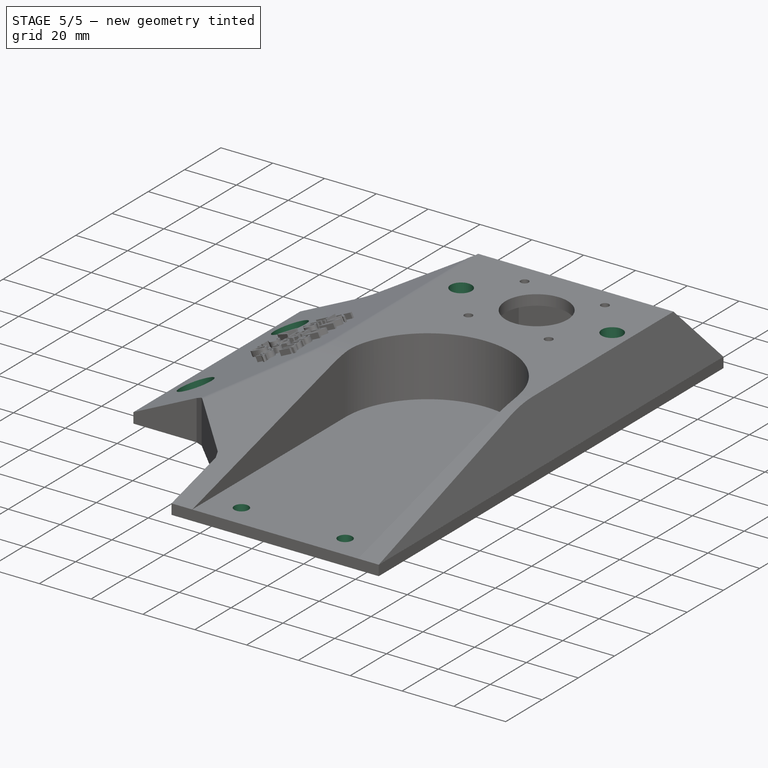
[diagram: stage 5 of 5 — iso view after this stage's code; geometry added in this stage tinted green]
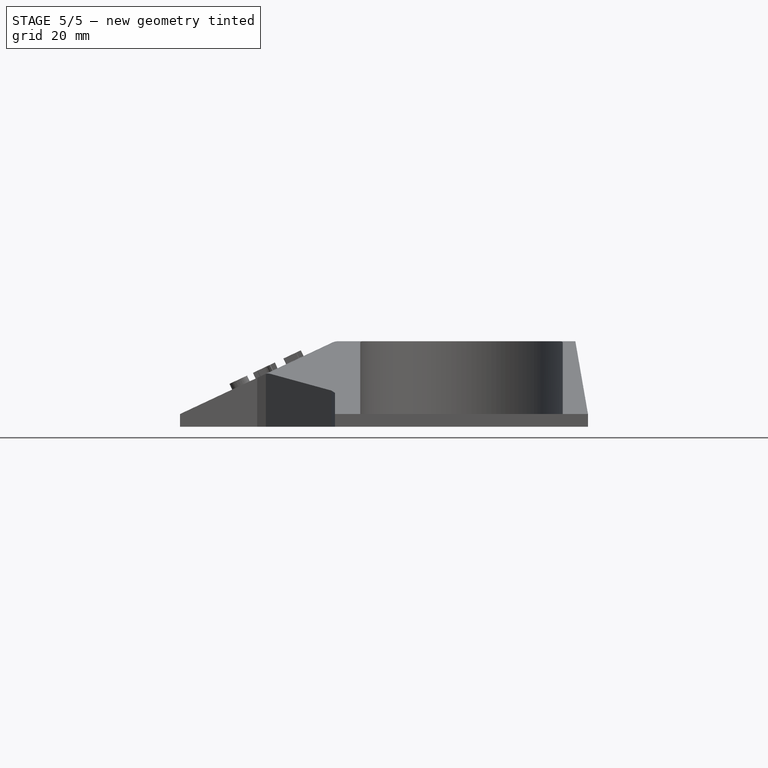
[diagram: stage 5 of 5 — front view after this stage's code; geometry added in this stage tinted green]
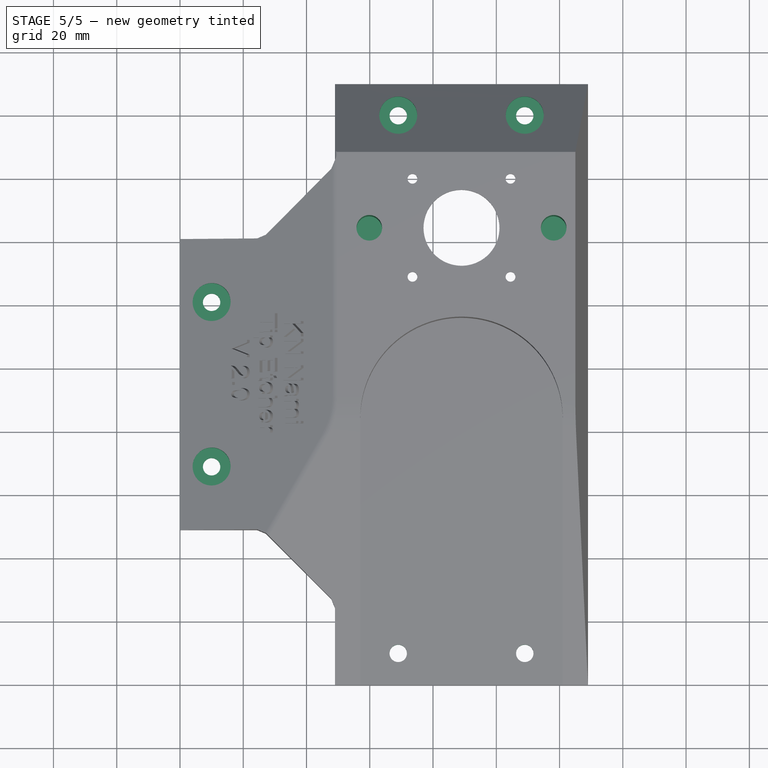
[diagram: stage 5 of 5 — top view after this stage's code; geometry added in this stage tinted green]
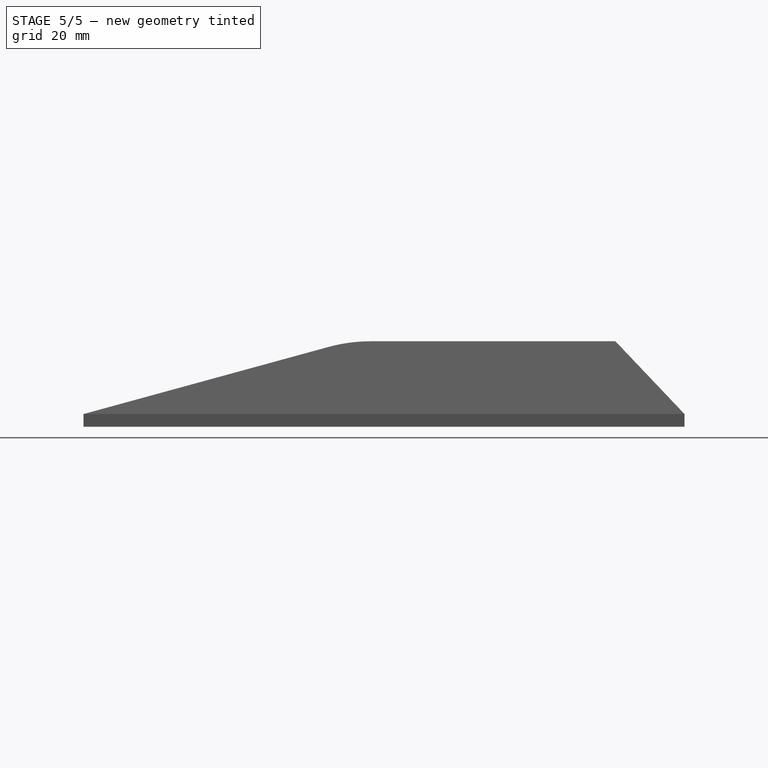
[diagram: stage 5 of 5 — right view after this stage's code; geometry added in this stage tinted green]
FEATURE [PartDesign::Fillet] Fillet
  Base = -> Chamfer005 [Edge12]
  BaseFeature = -> Chamfer005
  Radius = 50
  Refine = true
  SupportTransform = false
  Suppressed = false
  UseAllEdges = false
FEATURE [Sketcher::SketchObject] Sketch008
  ArcFitTolerance = 1e-06
  AttachmentSupport = -> [Fillet]
  FullyConstrained = true
  MakeInternals = false
  MapMode = 5
  Placement = pos=(0,0,23) rot=(0,0,1;0rad)
  sketch-geometry (86):
    g0: LineSegment [constr] StartX=0 StartY=0 StartZ=0 EndX=49 EndY=0 EndZ=0
    g1: LineSegment [constr] StartX=0 StartY=0 StartZ=0 EndX=0 EndY=49 EndZ=0
    g2: LineSegment [constr] StartX=0 StartY=49 StartZ=0 EndX=24.3764 EndY=49 EndZ=0
    g3: LineSegment [constr] StartX=49 StartY=0 StartZ=0 EndX=49 EndY=24.3764 EndZ=0
    g4: LineSegment [constr] StartX=47.8519 StartY=27.1481 StartZ=0 EndX=27.1481 EndY=47.8519 EndZ=0
    g5: ArcOfCircle [constr] CenterX=24.3764 CenterY=45.0803 CenterZ=0 NormalX=0 NormalY=0 NormalZ=1 AngleXU=0 Radius=3.91969 StartAngle=0.785398 EndAngle=1.5708
    g6: GeomPoint [constr] X=26 Y=49 Z=0
    g7: LineSegment [constr] StartX=27.1481 StartY=47.8519 StartZ=0 EndX=24.3764 EndY=49 EndZ=0
    g8: ArcOfCircle [constr] CenterX=45.0803 CenterY=24.3764 CenterZ=0 NormalX=0 NormalY=0 NormalZ=1 AngleXU=0 Radius=3.91969 StartAngle=0 EndAngle=0.785398
    g9: GeomPoint [constr] X=49 Y=26 Z=0
    g10: LineSegment [constr] StartX=49 StartY=24.3764 StartZ=0 EndX=47.8519 EndY=27.1481 EndZ=0
    g11: LineSegment [constr] StartX=49 StartY=0 StartZ=0 EndX=129 EndY=0 EndZ=0
    g12: LineSegment [constr] StartX=129 StartY=0 StartZ=0 EndX=129 EndY=190 EndZ=0
    g13: LineSegment [constr] StartX=129 StartY=190 StartZ=0 EndX=49 EndY=190 EndZ=0
    g14: LineSegment [constr] StartX=49 StartY=190 StartZ=0 EndX=49 EndY=165.624 EndZ=0
    g15: LineSegment [constr] StartX=49 StartY=190 StartZ=0 EndX=0 EndY=190 EndZ=0
    g16: LineSegment [constr] StartX=0 StartY=190 StartZ=0 EndX=0 EndY=0 EndZ=0
    g17: LineSegment [constr] StartX=0 StartY=190 StartZ=0 EndX=0 EndY=141 EndZ=0
    g18: LineSegment [constr] StartX=0 StartY=141 StartZ=0 EndX=24.3764 EndY=141 EndZ=0
    g19: LineSegment [constr] StartX=27.1481 StartY=142.148 StartZ=0 EndX=47.8519 EndY=162.852 EndZ=0
    g20: ArcOfCircle [constr] CenterX=45.0803 CenterY=165.624 CenterZ=0 NormalX=0 NormalY=0 NormalZ=1 AngleXU=0 Radius=3.91969 StartAngle=5.49779 EndAngle=6.28319
    g21: GeomPoint [constr] X=49 Y=164 Z=0
    g22: LineSegment [constr] StartX=47.8519 StartY=162.852 StartZ=0 EndX=49 EndY=165.624 EndZ=0
    g23: ArcOfCircle [constr] CenterX=24.3764 CenterY=144.92 CenterZ=0 NormalX=0 NormalY=0 NormalZ=1 AngleXU=0 Radius=3.91969 StartAngle=4.71239 EndAngle=5.49779
    g24: GeomPoint [constr] X=26 Y=141 Z=0
    g25: LineSegment [constr] StartX=24.3764 StartY=141 StartZ=0 EndX=27.1481 EndY=142.148 EndZ=0
    g26: LineSegment [constr] StartX=0 StartY=141 StartZ=0 EndX=0 EndY=49 EndZ=0
    g27: LineSegment [constr] StartX=0 StartY=190 StartZ=0 EndX=0 EndY=144.16 EndZ=0
    g28: LineSegment [constr] StartX=0 StartY=144.16 StartZ=0 EndX=59.85 EndY=144.16 EndZ=0
    g29: Circle CenterX=59.85 CenterY=144.16 CenterZ=0 NormalX=0 NormalY=0 NormalZ=1 AngleXU=0 Radius=4.05
    g30: LineSegment [constr] StartX=59.85 StartY=144.16 StartZ=0 EndX=89 EndY=144.16 EndZ=0
    g31: LineSegment [constr] StartX=89 StartY=144.16 StartZ=0 EndX=118.15 EndY=144.16 EndZ=0
    g32: Circle CenterX=118.15 CenterY=144.16 CenterZ=0 NormalX=0 NormalY=0 NormalZ=1 AngleXU=0 Radius=4.05
    g33: Circle [constr] CenterX=89 CenterY=144.16 CenterZ=0 NormalX=0 NormalY=0 NormalZ=1 AngleXU=0 Radius=12
    g34: LineSegment [constr] StartX=89 StartY=144.16 StartZ=0 EndX=104.5 EndY=159.66 EndZ=0
    g35: Circle [constr] CenterX=104.5 CenterY=159.66 CenterZ=0 NormalX=0 NormalY=0 NormalZ=1 AngleXU=0 Radius=1.55
    g36: LineSegment [constr] StartX=129 StartY=190 StartZ=0 EndX=129 EndY=180 EndZ=0
    g37: LineSegment [constr] StartX=129 StartY=180 StartZ=0 EndX=109 EndY=180 EndZ=0
    g38: Circle [constr] CenterX=109 CenterY=180 CenterZ=0 NormalX=0 NormalY=0 NormalZ=1 AngleXU=0 Radius=2.55
    g39: LineSegment [constr] StartX=49 StartY=190 StartZ=0 EndX=49 EndY=180 EndZ=0
    g40: LineSegment [constr] StartX=49 StartY=180 StartZ=0 EndX=69 EndY=180 EndZ=0
    g41: LineSegment [constr] StartX=69 StartY=180 StartZ=0 EndX=69 EndY=190 EndZ=0
    g42: LineSegment [constr] StartX=69 StartY=190 StartZ=0 EndX=49 EndY=190 EndZ=0
    g43: Circle [constr] CenterX=69 CenterY=180 CenterZ=0 NormalX=0 NormalY=0 NormalZ=1 AngleXU=0 Radius=2.55
    g44: LineSegment [constr] StartX=0 StartY=141 StartZ=0 EndX=0 EndY=121 EndZ=0
    g45: LineSegment [constr] StartX=0 StartY=121 StartZ=0 EndX=10 EndY=121 EndZ=0
    g46: LineSegment [constr] StartX=10 StartY=121 StartZ=0 EndX=10 EndY=141 EndZ=0
    g47: LineSegment [constr] StartX=10 StartY=141 StartZ=0 EndX=0 EndY=141 EndZ=0
    g48: LineSegment [constr] StartX=0 StartY=49 StartZ=0 EndX=10 EndY=49 EndZ=0
    g49: LineSegment [constr] StartX=10 StartY=49 StartZ=0 EndX=10 EndY=69 EndZ=0
    g50: LineSegment [constr] StartX=10 StartY=69 StartZ=0 EndX=0 EndY=69 EndZ=0
    g51: LineSegment [constr] StartX=0 StartY=69 StartZ=0 EndX=0 EndY=49 EndZ=0
    g52: Circle [constr] CenterX=10 CenterY=121 CenterZ=0 NormalX=0 NormalY=0 NormalZ=1 AngleXU=0 Radius=2.55
    g53: Circle [constr] CenterX=10 CenterY=69 CenterZ=0 NormalX=0 NormalY=0 NormalZ=1 AngleXU=0 Radius=2.55
    g54: LineSegment [constr] StartX=49 StartY=0 StartZ=0 EndX=69 EndY=0 EndZ=0
    g55: LineSegment [constr] StartX=69 StartY=0 StartZ=0 EndX=69 EndY=10 EndZ=0
    g56: LineSegment [constr] StartX=69 StartY=10 StartZ=0 EndX=49 EndY=10 EndZ=0
    g57: LineSegment [constr] StartX=49 StartY=10 StartZ=0 EndX=49 EndY=0 EndZ=0
    g58: LineSegment [constr] StartX=129 StartY=0 StartZ=0 EndX=129 EndY=10 EndZ=0
    g59: LineSegment [constr] StartX=129 StartY=10 StartZ=0 EndX=109 EndY=10 EndZ=0
    g60: LineSegment [constr] StartX=109 StartY=10 StartZ=0 EndX=109 EndY=0 EndZ=0
    g61: LineSegment [constr] StartX=109 StartY=0 StartZ=0 EndX=129 EndY=0 EndZ=0
    g62: Circle [constr] CenterX=69 CenterY=10 CenterZ=0 NormalX=0 NormalY=0 NormalZ=1 AngleXU=0 Radius=2.55
    g63: Circle [constr] CenterX=109 CenterY=10 CenterZ=0 NormalX=0 NormalY=0 NormalZ=1 AngleXU=0 Radius=2.55
    g64: LineSegment [constr] StartX=89 StartY=144.16 StartZ=0 EndX=73.5 EndY=144.16 EndZ=0
    g65: LineSegment [constr] StartX=73.5 StartY=144.16 StartZ=0 EndX=73.5 EndY=128.66 EndZ=0
    g66: LineSegment [constr] StartX=73.5 StartY=128.66 StartZ=0 EndX=89 EndY=128.66 EndZ=0
    g67: LineSegment [constr] StartX=89 StartY=128.66 StartZ=0 EndX=89 EndY=144.16 EndZ=0
    g68: LineSegment [constr] StartX=65.9 StartY=121.06 StartZ=0 EndX=112.1 EndY=121.06 EndZ=0
    g69: LineSegment [constr] StartX=112.1 StartY=121.06 StartZ=0 EndX=112.1 EndY=167.26 EndZ=0
    g70: LineSegment [constr] StartX=112.1 StartY=167.26 StartZ=0 EndX=65.9 EndY=167.26 EndZ=0
    g71: LineSegment [constr] StartX=65.9 StartY=167.26 StartZ=0 EndX=65.9 EndY=121.06 EndZ=0
    g72: GeomPoint [constr] X=89 Y=144.16 Z=0
    g73: LineSegment [constr] StartX=73.5002 StartY=128.66 StartZ=0 EndX=104.5 EndY=128.66 EndZ=0
    g74: LineSegment [constr] StartX=104.5 StartY=128.66 StartZ=0 EndX=104.5 EndY=159.66 EndZ=0
    g75: LineSegment [constr] StartX=104.5 StartY=159.66 StartZ=0 EndX=73.5002 EndY=159.66 EndZ=0
    g76: LineSegment [constr] StartX=73.5002 StartY=159.66 StartZ=0 EndX=73.5002 EndY=128.66 EndZ=0
    g77: GeomPoint [constr] X=89 Y=144.16 Z=0
    g78: LineSegment [constr] StartX=65 StartY=120.16 StartZ=0 EndX=113 EndY=120.16 EndZ=0
    g79: LineSegment [constr] StartX=113 StartY=120.16 StartZ=0 EndX=113 EndY=168.16 EndZ=0
    g80: LineSegment [constr] StartX=113 StartY=168.16 StartZ=0 EndX=65 EndY=168.16 EndZ=0
    g81: LineSegment [constr] StartX=65 StartY=168.16 StartZ=0 EndX=65 EndY=120.16 EndZ=0
    g82: GeomPoint [constr] X=89 Y=144.16 Z=0
    g83: Circle [constr] CenterX=73.5002 CenterY=159.66 CenterZ=0 NormalX=0 NormalY=0 NormalZ=1 AngleXU=0 Radius=1.55
    g84: Circle [constr] CenterX=73.5 CenterY=128.66 CenterZ=0 NormalX=0 NormalY=0 NormalZ=1 AngleXU=0 Radius=1.55
    g85: Circle [constr] CenterX=104.5 CenterY=128.66 CenterZ=0 NormalX=0 NormalY=0 NormalZ=1 AngleXU=0 Radius=1.55
  constraints (213):
    c: Distance(g0) = 49
    c: Coincident(g0,g-1)
    c: PointOnObject(g0,g-1)
    c: Distance(g1) = 49
    c: Coincident(g1,g0)
    c: PointOnObject(g1,g-2)
    c: Distance(g2,g6) = 26
    c: Coincident(g2,g1)
    c: Horizontal(g2)
    c: Distance(g3,g9) = 26
    c: Coincident(g3,g0)
    c: Vertical(g3)
    c: PointOnObject(g6,g2)
    c: PointOnObject(g6,g4)
    c: Tangent(g2,g5) = 1.5708
    c: Tangent(g4,g5) = -1.5708
    c: Coincident(g7,g2)
    c: Coincident(g7,g4)
    c: PointOnObject(g9,g3)
    c: PointOnObject(g9,g4)
    c: Tangent(g3,g8) = -1.5708
    c: Tangent(g4,g8) = -1.5708
    c: Coincident(g10,g3)
    c: Coincident(g10,g4)
    c: Distance(g10,g10) = 3
    c: Distance(g7,g7) = 3
    c: Distance(g11) = 80
    c: Coincident(g11,g0)
    c: PointOnObject(g11,g-1)
    c: Distance(g12) = 190
    c: Coincident(g12,g11)
    c: Vertical(g12)
    c: Distance(g13) = 80
    c: Coincident(g13,g12)
    c: Horizontal(g13)
    c: Distance(g14,g21) = 26
    c: Coincident(g14,g13)
    c: Vertical(g14)
    c: Coincident(g15,g13)
    c: PointOnObject(g15,g-2)
    c: Horizontal(g15)
    c: Coincident(g16,g15)
    c: Coincident(g16,g0)
    c: Distance(g17) = 49
    c: Coincident(g17,g15)
    c: PointOnObject(g17,g16)
    c: Distance(g18,g24) = 26
    c: Coincident(g18,g17)
    c: Horizontal(g18)
    c: PointOnObject(g21,g14)
    c: PointOnObject(g21,g19)
    c: Tangent(g14,g20) = 1.5708
    c: Tangent(g19,g20) = -1.5708
    c: Coincident(g22,g14)
    c: Coincident(g22,g19)
    c: PointOnObject(g24,g18)
    c: PointOnObject(g24,g19)
    c: Tangent(g18,g23) = -1.5708
    c: Tangent(g19,g23) = -1.5708
    c: Coincident(g25,g18)
    c: Coincident(g25,g19)
    c: Distance(g25,g25) = 3
    c: Distance(g22,g22) = 3
    c: Coincident(g26,g17)
    c: Coincident(g26,g1)
    c: Distance(g27) = 45.84
    c: Coincident(g27,g15)
    c: PointOnObject(g27,g16)
    c: Distance(g28) = 59.85
    c: Coincident(g28,g27)
    c: Horizontal(g28)
    c: Diameter(g29) = 8.1
    c: Coincident(g29,g28)
    c: Distance(g30) = 29.15
    c: Coincident(g30,g28)
    c: Horizontal(g30)
    c: Distance(g31) = 29.15
    c: Coincident(g31,g30)
    c: Horizontal(g31)
    c: Diameter(g32) = 8.1
    c: Coincident(g32,g31)
    c: Diameter(g33) = 24
    c: Coincident(g33,g30)
    c: Distance(g34) = 21.92
    c: Angle(g-1,g34) = 0.785398
    c: Coincident(g34,g30)
    c: Diameter(g35) = 3.1
    c: Coincident(g35,g34)
    c: Distance(g36) = 10
    c: Coincident(g36,g12)
    c: PointOnObject(g36,g12)
    c: Distance(g37) = 20
    c: Coincident(g37,g36)
    c: Horizontal(g37)
    c: Diameter(g38) = 5.1
    c: Coincident(g38,g37)
    c: Coincident(g39,g40)
    c: Coincident(g40,g41)
    c: Coincident(g41,g42)
    c: Coincident(g42,g39)
    c: Vertical(g39)
    c: Vertical(g41)
    c: Horizontal(g40)
    c: Horizontal(g42)
    c: Distance(g39,g41) = 20
    c: Distance(g40,g42) = 10
    c: Coincident(g39,g13)
    c: Diameter(g43) = 5.1
    c: Coincident(g43,g40)
    c: Coincident(g44,g45)
    c: Coincident(g45,g46)
    c: Coincident(g46,g47)
    c: Coincident(g47,g44)
    c: Vertical(g44)
    c: Vertical(g46)
    c: Horizontal(g45)
    c: Horizontal(g47)
    c: Distance(g44,g46) = 10
    c: Distance(g45,g47) = 20
    c: Coincident(g44,g17)
    c: Coincident(g48,g49)
    c: Coincident(g49,g50)
    c: Coincident(g50,g51)
    c: Coincident(g51,g48)
    c: Horizontal(g48)
    c: Horizontal(g50)
    c: Vertical(g49)
    c: Vertical(g51)
    c: Distance(g49,g51) = 10
    c: Distance(g48,g50) = 20
    c: Coincident(g48,g1)
    c: Diameter(g52) = 5.1
    c: Coincident(g52,g45)
    c: Diameter(g53) = 5.1
    c: Coincident(g53,g49)
    c: Coincident(g54,g55)
    c: Coincident(g55,g56)
    c: Coincident(g56,g57)
    c: Coincident(g57,g54)
    c: Horizontal(g54)
    c: Horizontal(g56)
    c: Vertical(g55)
    c: Vertical(g57)
    c: Distance(g55,g57) = 20
    c: Distance(g54,g56) = 10
    c: Coincident(g54,g0)
    c: Coincident(g58,g59)
    c: Coincident(g59,g60)
    c: Coincident(g60,g61)
    c: Coincident(g61,g58)
    c: Vertical(g58)
    c: Vertical(g60)
    c: Horizontal(g59)
    c: Horizontal(g61)
    c: Distance(g58,g60) = 20
    c: Distance(g59,g61) = 10
    c: Coincident(g58,g11)
    c: Diameter(g62) = 5.1
    c: Coincident(g62,g55)
    c: Diameter(g63) = 5.1
    c: Coincident(g63,g59)
    c: Coincident(g64,g65)
    c: Coincident(g65,g66)
    c: Coincident(g66,g67)
    c: Coincident(g67,g64)
    c: Horizontal(g64)
    c: Horizontal(g66)
    c: Vertical(g65)
    c: Vertical(g67)
    c: Distance(g65,g67) = 15.5
    c: Distance(g64,g66) = 15.5
    c: Coincident(g64,g30)
    c: Coincident(g68,g69)
    c: Coincident(g69,g70)
    c: Coincident(g70,g71)
    c: Coincident(g71,g68)
    c: Horizontal(g68)
    c: Horizontal(g70)
    c: Vertical(g69)
    c: Vertical(g71)
    c: Symmetric(g70,g68,g72)
    c: Distance(g69,g71) = 46.2
    c: Distance(g68,g70) = 46.2
    c: Coincident(g72,g30)
    c: Coincident(g73,g74)
    c: Coincident(g74,g75)
    c: Coincident(g75,g76)
    c: Coincident(g76,g73)
    c: Horizontal(g73)
    c: Horizontal(g75)
    c: Vertical(g74)
    c: Vertical(g76)
    c: Symmetric(g75,g73,g77)
    c: Coincident(g77,g30)
    c: Coincident(g74,g34)
    c: Coincident(g78,g79)
    c: Coincident(g79,g80)
    c: Coincident(g80,g81)
    c: Coincident(g81,g78)
    c: Horizontal(g78)
    c: Horizontal(g80)
    c: Vertical(g79)
    c: Vertical(g81)
    c: Symmetric(g80,g78,g82)
    c: Distance(g79,g81) = 48
    c: Distance(g78,g80) = 48
    c: Coincident(g82,g30)
    c: Diameter(g83) = 3.1
    c: Coincident(g83,g75)
    c: Diameter(g84) = 3.1
    c: Coincident(g84,g65)
    c: Diameter(g85) = 3.1
    c: Coincident(g85,g73)
FEATURE [PartDesign::Pocket] Pocket003
  BaseFeature = -> Fillet
  Direction = (0,0,-1)
  Length = 26
  Length2 = 5
  Profile = -> Sketch008
  ReferenceAxis = -> Sketch008 [N_Axis]
  Refine = true
  Suppressed = false
  Type = 0
FEATURE [PartDesign::Fillet] Fillet001
  Base = -> Pocket003 [Edge7]
  BaseFeature = -> Pocket003
  Radius = 50
  Refine = true
  SupportTransform = false
  Suppressed = false
  UseAllEdges = false
FEATURE [PartDesign::Fillet] Fillet002
  Base = -> Fillet001 [Edge9,Edge34,Edge39]
  BaseFeature = -> Fillet001
  Radius = 4
  Refine = true
  SupportTransform = false
  Suppressed = false
  UseAllEdges = false
FEATURE [Sketcher::SketchObject] Sketch009
  ArcFitTolerance = 1e-06
  AttachmentSupport = -> [Fillet002]
  FullyConstrained = true
  MakeInternals = false
  MapMode = 5
  Placement = pos=(0,0,23) rot=(0,0,1;0rad)
  sketch-geometry (86):
    g0: LineSegment [constr] StartX=0 StartY=0 StartZ=0 EndX=49 EndY=0 EndZ=0
    g1: LineSegment [constr] StartX=0 StartY=0 StartZ=0 EndX=0 EndY=49 EndZ=0
    g2: LineSegment [constr] StartX=0 StartY=49 StartZ=0 EndX=24.3764 EndY=49 EndZ=0
    g3: LineSegment [constr] StartX=49 StartY=0 StartZ=0 EndX=49 EndY=24.3764 EndZ=0
    g4: LineSegment [constr] StartX=47.8519 StartY=27.1481 StartZ=0 EndX=27.1481 EndY=47.8519 EndZ=0
    g5: ArcOfCircle [constr] CenterX=24.3764 CenterY=45.0803 CenterZ=0 NormalX=0 NormalY=0 NormalZ=1 AngleXU=0 Radius=3.91969 StartAngle=0.785398 EndAngle=1.5708
    g6: GeomPoint [constr] X=26 Y=49 Z=0
    g7: LineSegment [constr] StartX=27.1481 StartY=47.8519 StartZ=0 EndX=24.3764 EndY=49 EndZ=0
    g8: ArcOfCircle [constr] CenterX=45.0803 CenterY=24.3764 CenterZ=0 NormalX=0 NormalY=0 NormalZ=1 AngleXU=0 Radius=3.91969 StartAngle=0 EndAngle=0.785398
    g9: GeomPoint [constr] X=49 Y=26 Z=0
    g10: LineSegment [constr] StartX=49 StartY=24.3764 StartZ=0 EndX=47.8519 EndY=27.1481 EndZ=0
    g11: LineSegment [constr] StartX=49 StartY=0 StartZ=0 EndX=129 EndY=0 EndZ=0
    g12: LineSegment [constr] StartX=129 StartY=0 StartZ=0 EndX=129 EndY=190 EndZ=0
    g13: LineSegment [constr] StartX=129 StartY=190 StartZ=0 EndX=49 EndY=190 EndZ=0
    g14: LineSegment [constr] StartX=49 StartY=190 StartZ=0 EndX=49 EndY=165.624 EndZ=0
    g15: LineSegment [constr] StartX=49 StartY=190 StartZ=0 EndX=0 EndY=190 EndZ=0
    g16: LineSegment [constr] StartX=0 StartY=190 StartZ=0 EndX=0 EndY=0 EndZ=0
    g17: LineSegment [constr] StartX=0 StartY=190 StartZ=0 EndX=0 EndY=141 EndZ=0
    g18: LineSegment [constr] StartX=0 StartY=141 StartZ=0 EndX=24.3764 EndY=141 EndZ=0
    g19: LineSegment [constr] StartX=27.1481 StartY=142.148 StartZ=0 EndX=47.8519 EndY=162.852 EndZ=0
    g20: ArcOfCircle [constr] CenterX=45.0803 CenterY=165.624 CenterZ=0 NormalX=0 NormalY=0 NormalZ=1 AngleXU=0 Radius=3.91969 StartAngle=5.49779 EndAngle=6.28319
    g21: GeomPoint [constr] X=49 Y=164 Z=0
    g22: LineSegment [constr] StartX=47.8519 StartY=162.852 StartZ=0 EndX=49 EndY=165.624 EndZ=0
    g23: ArcOfCircle [constr] CenterX=24.3764 CenterY=144.92 CenterZ=0 NormalX=0 NormalY=0 NormalZ=1 AngleXU=0 Radius=3.91969 StartAngle=4.71239 EndAngle=5.49779
    g24: GeomPoint [constr] X=26 Y=141 Z=0
    g25: LineSegment [constr] StartX=24.3764 StartY=141 StartZ=0 EndX=27.1481 EndY=142.148 EndZ=0
    g26: LineSegment [constr] StartX=0 StartY=141 StartZ=0 EndX=0 EndY=49 EndZ=0
    g27: LineSegment [constr] StartX=0 StartY=190 StartZ=0 EndX=0 EndY=144.16 EndZ=0
    g28: LineSegment [constr] StartX=0 StartY=144.16 StartZ=0 EndX=59.85 EndY=144.16 EndZ=0
    g29: Circle [constr] CenterX=59.85 CenterY=144.16 CenterZ=0 NormalX=0 NormalY=0 NormalZ=1 AngleXU=0 Radius=4.05
    g30: LineSegment [constr] StartX=59.85 StartY=144.16 StartZ=0 EndX=89 EndY=144.16 EndZ=0
    g31: LineSegment [constr] StartX=89 StartY=144.16 StartZ=0 EndX=118.15 EndY=144.16 EndZ=0
    g32: Circle [constr] CenterX=118.15 CenterY=144.16 CenterZ=0 NormalX=0 NormalY=0 NormalZ=1 AngleXU=0 Radius=4.05
    g33: Circle [constr] CenterX=89 CenterY=144.16 CenterZ=0 NormalX=0 NormalY=0 NormalZ=1 AngleXU=0 Radius=12
    g34: LineSegment [constr] StartX=89 StartY=144.16 StartZ=0 EndX=104.5 EndY=159.66 EndZ=0
    g35: Circle [constr] CenterX=104.5 CenterY=159.66 CenterZ=0 NormalX=0 NormalY=0 NormalZ=1 AngleXU=0 Radius=1.55
    g36: LineSegment [constr] StartX=129 StartY=190 StartZ=0 EndX=129 EndY=180 EndZ=0
    g37: LineSegment [constr] StartX=129 StartY=180 StartZ=0 EndX=109 EndY=180 EndZ=0
    g38: Circle CenterX=109 CenterY=180 CenterZ=0 NormalX=0 NormalY=0 NormalZ=1 AngleXU=0 Radius=2.55
    g39: LineSegment [constr] StartX=49 StartY=190 StartZ=0 EndX=49 EndY=180 EndZ=0
    g40: LineSegment [constr] StartX=49 StartY=180 StartZ=0 EndX=69 EndY=180 EndZ=0
    g41: LineSegment [constr] StartX=69 StartY=180 StartZ=0 EndX=69 EndY=190 EndZ=0
    g42: LineSegment [constr] StartX=69 StartY=190 StartZ=0 EndX=49 EndY=190 EndZ=0
    g43: Circle CenterX=69 CenterY=180 CenterZ=0 NormalX=0 NormalY=0 NormalZ=1 AngleXU=0 Radius=2.55
    g44: LineSegment [constr] StartX=0 StartY=141 StartZ=0 EndX=0 EndY=121 EndZ=0
    g45: LineSegment [constr] StartX=0 StartY=121 StartZ=0 EndX=10 EndY=121 EndZ=0
    g46: LineSegment [constr] StartX=10 StartY=121 StartZ=0 EndX=10 EndY=141 EndZ=0
    g47: LineSegment [constr] StartX=10 StartY=141 StartZ=0 EndX=0 EndY=141 EndZ=0
    g48: LineSegment [constr] StartX=0 StartY=49 StartZ=0 EndX=10 EndY=49 EndZ=0
    g49: LineSegment [constr] StartX=10 StartY=49 StartZ=0 EndX=10 EndY=69 EndZ=0
    g50: LineSegment [constr] StartX=10 StartY=69 StartZ=0 EndX=0 EndY=69 EndZ=0
    g51: LineSegment [constr] StartX=0 StartY=69 StartZ=0 EndX=0 EndY=49 EndZ=0
    g52: Circle CenterX=10 CenterY=121 CenterZ=0 NormalX=0 NormalY=0 NormalZ=1 AngleXU=0 Radius=2.55
    g53: Circle CenterX=10 CenterY=69 CenterZ=0 NormalX=0 NormalY=0 NormalZ=1 AngleXU=0 Radius=2.55
    g54: LineSegment [constr] StartX=49 StartY=0 StartZ=0 EndX=69 EndY=0 EndZ=0
    g55: LineSegment [constr] StartX=69 StartY=0 StartZ=0 EndX=69 EndY=10 EndZ=0
    g56: LineSegment [constr] StartX=69 StartY=10 StartZ=0 EndX=49 EndY=10 EndZ=0
    g57: LineSegment [constr] StartX=49 StartY=10 StartZ=0 EndX=49 EndY=0 EndZ=0
    g58: LineSegment [constr] StartX=129 StartY=0 StartZ=0 EndX=129 EndY=10 EndZ=0
    g59: LineSegment [constr] StartX=129 StartY=10 StartZ=0 EndX=109 EndY=10 EndZ=0
    g60: LineSegment [constr] StartX=109 StartY=10 StartZ=0 EndX=109 EndY=0 EndZ=0
    g61: LineSegment [constr] StartX=109 StartY=0 StartZ=0 EndX=129 EndY=0 EndZ=0
    g62: Circle CenterX=69 CenterY=10 CenterZ=0 NormalX=0 NormalY=0 NormalZ=1 AngleXU=0 Radius=2.55
    g63: Circle CenterX=109 CenterY=10 CenterZ=0 NormalX=0 NormalY=0 NormalZ=1 AngleXU=0 Radius=2.55
    g64: LineSegment [constr] StartX=89 StartY=144.16 StartZ=0 EndX=73.5 EndY=144.16 EndZ=0
    g65: LineSegment [constr] StartX=73.5 StartY=144.16 StartZ=0 EndX=73.5 EndY=128.66 EndZ=0
    g66: LineSegment [constr] StartX=73.5 StartY=128.66 StartZ=0 EndX=89 EndY=128.66 EndZ=0
    g67: LineSegment [constr] StartX=89 StartY=128.66 StartZ=0 EndX=89 EndY=144.16 EndZ=0
    g68: LineSegment [constr] StartX=65.9 StartY=121.06 StartZ=0 EndX=112.1 EndY=121.06 EndZ=0
    g69: LineSegment [constr] StartX=112.1 StartY=121.06 StartZ=0 EndX=112.1 EndY=167.26 EndZ=0
    g70: LineSegment [constr] StartX=112.1 StartY=167.26 StartZ=0 EndX=65.9 EndY=167.26 EndZ=0
    g71: LineSegment [constr] StartX=65.9 StartY=167.26 StartZ=0 EndX=65.9 EndY=121.06 EndZ=0
    g72: GeomPoint [constr] X=89 Y=144.16 Z=0
    g73: LineSegment [constr] StartX=73.5002 StartY=128.66 StartZ=0 EndX=104.5 EndY=128.66 EndZ=0
    g74: LineSegment [constr] StartX=104.5 StartY=128.66 StartZ=0 EndX=104.5 EndY=159.66 EndZ=0
    g75: LineSegment [constr] StartX=104.5 StartY=159.66 StartZ=0 EndX=73.5002 EndY=159.66 EndZ=0
    g76: LineSegment [constr] StartX=73.5002 StartY=159.66 StartZ=0 EndX=73.5002 EndY=128.66 EndZ=0
    g77: GeomPoint [constr] X=89 Y=144.16 Z=0
    g78: LineSegment [constr] StartX=65 StartY=120.16 StartZ=0 EndX=113 EndY=120.16 EndZ=0
    g79: LineSegment [constr] StartX=113 StartY=120.16 StartZ=0 EndX=113 EndY=168.16 EndZ=0
    g80: LineSegment [constr] StartX=113 StartY=168.16 StartZ=0 EndX=65 EndY=168.16 EndZ=0
    g81: LineSegment [constr] StartX=65 StartY=168.16 StartZ=0 EndX=65 EndY=120.16 EndZ=0
    g82: GeomPoint [constr] X=89 Y=144.16 Z=0
    g83: Circle [constr] CenterX=73.5002 CenterY=159.66 CenterZ=0 NormalX=0 NormalY=0 NormalZ=1 AngleXU=0 Radius=1.55
    g84: Circle [constr] CenterX=73.5 CenterY=128.66 CenterZ=0 NormalX=0 NormalY=0 NormalZ=1 AngleXU=0 Radius=1.55
    g85: Circle [constr] CenterX=104.5 CenterY=128.66 CenterZ=0 NormalX=0 NormalY=0 NormalZ=1 AngleXU=0 Radius=1.55
  constraints (213):
    c: Distance(g0) = 49
    c: Coincident(g0,g-1)
    c: PointOnObject(g0,g-1)
    c: Distance(g1) = 49
    c: Coincident(g1,g0)
    c: PointOnObject(g1,g-2)
    c: Distance(g2,g6) = 26
    c: Coincident(g2,g1)
    c: Horizontal(g2)
    c: Distance(g3,g9) = 26
    c: Coincident(g3,g0)
    c: Vertical(g3)
    c: PointOnObject(g6,g2)
    c: PointOnObject(g6,g4)
    c: Tangent(g2,g5) = 1.5708
    c: Tangent(g4,g5) = -1.5708
    c: Coincident(g7,g2)
    c: Coincident(g7,g4)
    c: PointOnObject(g9,g3)
    c: PointOnObject(g9,g4)
    c: Tangent(g3,g8) = -1.5708
    c: Tangent(g4,g8) = -1.5708
    c: Coincident(g10,g3)
    c: Coincident(g10,g4)
    c: Distance(g10,g10) = 3
    c: Distance(g7,g7) = 3
    c: Distance(g11) = 80
    c: Coincident(g11,g0)
    c: PointOnObject(g11,g-1)
    c: Distance(g12) = 190
    c: Coincident(g12,g11)
    c: Vertical(g12)
    c: Distance(g13) = 80
    c: Coincident(g13,g12)
    c: Horizontal(g13)
    c: Distance(g14,g21) = 26
    c: Coincident(g14,g13)
    c: Vertical(g14)
    c: Coincident(g15,g13)
    c: PointOnObject(g15,g-2)
    c: Horizontal(g15)
    c: Coincident(g16,g15)
    c: Coincident(g16,g0)
    c: Distance(g17) = 49
    c: Coincident(g17,g15)
    c: PointOnObject(g17,g16)
    c: Distance(g18,g24) = 26
    c: Coincident(g18,g17)
    c: Horizontal(g18)
    c: PointOnObject(g21,g14)
    c: PointOnObject(g21,g19)
    c: Tangent(g14,g20) = 1.5708
    c: Tangent(g19,g20) = -1.5708
    c: Coincident(g22,g14)
    c: Coincident(g22,g19)
    c: PointOnObject(g24,g18)
    c: PointOnObject(g24,g19)
    c: Tangent(g18,g23) = -1.5708
    c: Tangent(g19,g23) = -1.5708
    c: Coincident(g25,g18)
    c: Coincident(g25,g19)
    c: Distance(g25,g25) = 3
    c: Distance(g22,g22) = 3
    c: Coincident(g26,g17)
    c: Coincident(g26,g1)
    c: Distance(g27) = 45.84
    c: Coincident(g27,g15)
    c: PointOnObject(g27,g16)
    c: Distance(g28) = 59.85
    c: Coincident(g28,g27)
    c: Horizontal(g28)
    c: Diameter(g29) = 8.1
    c: Coincident(g29,g28)
    c: Distance(g30) = 29.15
    c: Coincident(g30,g28)
    c: Horizontal(g30)
    c: Distance(g31) = 29.15
    c: Coincident(g31,g30)
    c: Horizontal(g31)
    c: Diameter(g32) = 8.1
    c: Coincident(g32,g31)
    c: Diameter(g33) = 24
    c: Coincident(g33,g30)
    c: Distance(g34) = 21.92
    c: Angle(g-1,g34) = 0.785398
    c: Coincident(g34,g30)
    c: Diameter(g35) = 3.1
    c: Coincident(g35,g34)
    c: Distance(g36) = 10
    c: Coincident(g36,g12)
    c: PointOnObject(g36,g12)
    c: Distance(g37) = 20
    c: Coincident(g37,g36)
    c: Horizontal(g37)
    c: Diameter(g38) = 5.1
    c: Coincident(g38,g37)
    c: Coincident(g39,g40)
    c: Coincident(g40,g41)
    c: Coincident(g41,g42)
    c: Coincident(g42,g39)
    c: Vertical(g39)
    c: Vertical(g41)
    c: Horizontal(g40)
    c: Horizontal(g42)
    c: Distance(g39,g41) = 20
    c: Distance(g40,g42) = 10
    c: Coincident(g39,g13)
    c: Diameter(g43) = 5.1
    c: Coincident(g43,g40)
    c: Coincident(g44,g45)
    c: Coincident(g45,g46)
    c: Coincident(g46,g47)
    c: Coincident(g47,g44)
    c: Vertical(g44)
    c: Vertical(g46)
    c: Horizontal(g45)
    c: Horizontal(g47)
    c: Distance(g44,g46) = 10
    c: Distance(g45,g47) = 20
    c: Coincident(g44,g17)
    c: Coincident(g48,g49)
    c: Coincident(g49,g50)
    c: Coincident(g50,g51)
    c: Coincident(g51,g48)
    c: Horizontal(g48)
    c: Horizontal(g50)
    c: Vertical(g49)
    c: Vertical(g51)
    c: Distance(g49,g51) = 10
    c: Distance(g48,g50) = 20
    c: Coincident(g48,g1)
    c: Diameter(g52) = 5.1
    c: Coincident(g52,g45)
    c: Diameter(g53) = 5.1
    c: Coincident(g53,g49)
    c: Coincident(g54,g55)
    c: Coincident(g55,g56)
    c: Coincident(g56,g57)
    c: Coincident(g57,g54)
    c: Horizontal(g54)
    c: Horizontal(g56)
    c: Vertical(g55)
    c: Vertical(g57)
    c: Distance(g55,g57) = 20
    c: Distance(g54,g56) = 10
    c: Coincident(g54,g0)
    c: Coincident(g58,g59)
    c: Coincident(g59,g60)
    c: Coincident(g60,g61)
    c: Coincident(g61,g58)
    c: Vertical(g58)
    c: Vertical(g60)
    c: Horizontal(g59)
    c: Horizontal(g61)
    c: Distance(g58,g60) = 20
    c: Distance(g59,g61) = 10
    c: Coincident(g58,g11)
    c: Diameter(g62) = 5.1
    c: Coincident(g62,g55)
    c: Diameter(g63) = 5.1
    c: Coincident(g63,g59)
    c: Coincident(g64,g65)
    c: Coincident(g65,g66)
    c: Coincident(g66,g67)
    c: Coincident(g67,g64)
    c: Horizontal(g64)
    c: Horizontal(g66)
    c: Vertical(g65)
    c: Vertical(g67)
    c: Distance(g65,g67) = 15.5
    c: Distance(g64,g66) = 15.5
    c: Coincident(g64,g30)
    c: Coincident(g68,g69)
    c: Coincident(g69,g70)
    c: Coincident(g70,g71)
    c: Coincident(g71,g68)
    c: Horizontal(g68)
    c: Horizontal(g70)
    c: Vertical(g69)
    c: Vertical(g71)
    c: Symmetric(g70,g68,g72)
    c: Distance(g69,g71) = 46.2
    c: Distance(g68,g70) = 46.2
    c: Coincident(g72,g30)
    c: Coincident(g73,g74)
    c: Coincident(g74,g75)
    c: Coincident(g75,g76)
    c: Coincident(g76,g73)
    c: Horizontal(g73)
    c: Horizontal(g75)
    c: Vertical(g74)
    c: Vertical(g76)
    c: Symmetric(g75,g73,g77)
    c: Coincident(g77,g30)
    c: Coincident(g74,g34)
    c: Coincident(g78,g79)
    c: Coincident(g79,g80)
    c: Coincident(g80,g81)
    c: Coincident(g81,g78)
    c: Horizontal(g78)
    c: Horizontal(g80)
    c: Vertical(g79)
    c: Vertical(g81)
    c: Symmetric(g80,g78,g82)
    c: Distance(g79,g81) = 48
    c: Distance(g78,g80) = 48
    c: Coincident(g82,g30)
    c: Diameter(g83) = 3.1
    c: Coincident(g83,g75)
    c: Diameter(g84) = 3.1
    c: Coincident(g84,g65)
    c: Diameter(g85) = 3.1
    c: Coincident(g85,g73)
FEATURE [PartDesign::Hole] Hole
  BaseFeature = -> Fillet002
  CustomThreadClearance = 0
  Depth = 27
  DepthType = 0
  Diameter = 5.5
  DrillForDepth = false
  DrillPoint = 0
  DrillPointAngle = 118
  HoleCutCountersinkAngle = 90
  HoleCutCustomValues = false
  HoleCutDepth = 0
  HoleCutDiameter = 6.1
  HoleCutType = 0
  ModelThread = false
  Profile = -> Sketch009
  Refine = true
  Suppressed = false
  Tapered = false
  TaperedAngle = 90
  ThreadClass = 0
  ThreadDepth = 27
  ThreadDepthType = 0
  ThreadDirection = 0
  ThreadFit = 0
  ThreadSize = 13
  ThreadType = 1
  Threaded = false
  UseCustomThreadClearance = false
FEATURE [Sketcher::SketchObject] Sketch010
  ArcFitTolerance = 1e-06
  AttachmentSupport = -> [Hole]
  FullyConstrained = true
  MakeInternals = false
  MapMode = 5
  Placement = pos=(0,0,23) rot=(0,0,1;0rad)
  sketch-geometry (86):
    g0: LineSegment [constr] StartX=0 StartY=0 StartZ=0 EndX=49 EndY=0 EndZ=0
    g1: LineSegment [constr] StartX=0 StartY=0 StartZ=0 EndX=0 EndY=49 EndZ=0
    g2: LineSegment [constr] StartX=0 StartY=49 StartZ=0 EndX=24.3764 EndY=49 EndZ=0
    g3: LineSegment [constr] StartX=49 StartY=0 StartZ=0 EndX=49 EndY=24.3764 EndZ=0
    g4: LineSegment [constr] StartX=47.8519 StartY=27.1481 StartZ=0 EndX=27.1481 EndY=47.8519 EndZ=0
    g5: ArcOfCircle [constr] CenterX=24.3764 CenterY=45.0803 CenterZ=0 NormalX=0 NormalY=0 NormalZ=1 AngleXU=0 Radius=3.91969 StartAngle=0.785398 EndAngle=1.5708
    g6: GeomPoint [constr] X=26 Y=49 Z=0
    g7: LineSegment [constr] StartX=27.1481 StartY=47.8519 StartZ=0 EndX=24.3764 EndY=49 EndZ=0
    g8: ArcOfCircle [constr] CenterX=45.0803 CenterY=24.3764 CenterZ=0 NormalX=0 NormalY=0 NormalZ=1 AngleXU=0 Radius=3.91969 StartAngle=0 EndAngle=0.785398
    g9: GeomPoint [constr] X=49 Y=26 Z=0
    g10: LineSegment [constr] StartX=49 StartY=24.3764 StartZ=0 EndX=47.8519 EndY=27.1481 EndZ=0
    g11: LineSegment [constr] StartX=49 StartY=0 StartZ=0 EndX=129 EndY=0 EndZ=0
    g12: LineSegment [constr] StartX=129 StartY=0 StartZ=0 EndX=129 EndY=190 EndZ=0
    g13: LineSegment [constr] StartX=129 StartY=190 StartZ=0 EndX=49 EndY=190 EndZ=0
    g14: LineSegment [constr] StartX=49 StartY=190 StartZ=0 EndX=49 EndY=165.624 EndZ=0
    g15: LineSegment [constr] StartX=49 StartY=190 StartZ=0 EndX=0 EndY=190 EndZ=0
    g16: LineSegment [constr] StartX=0 StartY=190 StartZ=0 EndX=0 EndY=0 EndZ=0
    g17: LineSegment [constr] StartX=0 StartY=190 StartZ=0 EndX=0 EndY=141 EndZ=0
    g18: LineSegment [constr] StartX=0 StartY=141 StartZ=0 EndX=24.3764 EndY=141 EndZ=0
    g19: LineSegment [constr] StartX=27.1481 StartY=142.148 StartZ=0 EndX=47.8519 EndY=162.852 EndZ=0
    g20: ArcOfCircle [constr] CenterX=45.0803 CenterY=165.624 CenterZ=0 NormalX=0 NormalY=0 NormalZ=1 AngleXU=0 Radius=3.91969 StartAngle=5.49779 EndAngle=6.28319
    g21: GeomPoint [constr] X=49 Y=164 Z=0
    g22: LineSegment [constr] StartX=47.8519 StartY=162.852 StartZ=0 EndX=49 EndY=165.624 EndZ=0
    g23: ArcOfCircle [constr] CenterX=24.3764 CenterY=144.92 CenterZ=0 NormalX=0 NormalY=0 NormalZ=1 AngleXU=0 Radius=3.91969 StartAngle=4.71239 EndAngle=5.49779
    g24: GeomPoint [constr] X=26 Y=141 Z=0
    g25: LineSegment [constr] StartX=24.3764 StartY=141 StartZ=0 EndX=27.1481 EndY=142.148 EndZ=0
    g26: LineSegment [constr] StartX=0 StartY=141 StartZ=0 EndX=0 EndY=49 EndZ=0
    g27: LineSegment [constr] StartX=0 StartY=190 StartZ=0 EndX=0 EndY=144.16 EndZ=0
    g28: LineSegment [constr] StartX=0 StartY=144.16 StartZ=0 EndX=59.85 EndY=144.16 EndZ=0
    g29: Circle [constr] CenterX=59.85 CenterY=144.16 CenterZ=0 NormalX=0 NormalY=0 NormalZ=1 AngleXU=0 Radius=4.05
    g30: LineSegment [constr] StartX=59.85 StartY=144.16 StartZ=0 EndX=89 EndY=144.16 EndZ=0
    g31: LineSegment [constr] StartX=89 StartY=144.16 StartZ=0 EndX=118.15 EndY=144.16 EndZ=0
    g32: Circle [constr] CenterX=118.15 CenterY=144.16 CenterZ=0 NormalX=0 NormalY=0 NormalZ=1 AngleXU=0 Radius=4.05
    g33: Circle [constr] CenterX=89 CenterY=144.16 CenterZ=0 NormalX=0 NormalY=0 NormalZ=1 AngleXU=0 Radius=12
    g34: LineSegment [constr] StartX=89 StartY=144.16 StartZ=0 EndX=104.5 EndY=159.66 EndZ=0
    g35: Circle [constr] CenterX=104.5 CenterY=159.66 CenterZ=0 NormalX=0 NormalY=0 NormalZ=1 AngleXU=0 Radius=1.55
    g36: LineSegment [constr] StartX=129 StartY=190 StartZ=0 EndX=129 EndY=180 EndZ=0
    g37: LineSegment [constr] StartX=129 StartY=180 StartZ=0 EndX=109 EndY=180 EndZ=0
    g38: Circle CenterX=109 CenterY=180 CenterZ=0 NormalX=0 NormalY=0 NormalZ=1 AngleXU=0 Radius=2.55
    g39: LineSegment [constr] StartX=49 StartY=190 StartZ=0 EndX=49 EndY=180 EndZ=0
    g40: LineSegment [constr] StartX=49 StartY=180 StartZ=0 EndX=69 EndY=180 EndZ=0
    g41: LineSegment [constr] StartX=69 StartY=180 StartZ=0 EndX=69 EndY=190 EndZ=0
    g42: LineSegment [constr] StartX=69 StartY=190 StartZ=0 EndX=49 EndY=190 EndZ=0
    g43: Circle CenterX=69 CenterY=180 CenterZ=0 NormalX=0 NormalY=0 NormalZ=1 AngleXU=0 Radius=2.55
    g44: LineSegment [constr] StartX=0 StartY=141 StartZ=0 EndX=0 EndY=121 EndZ=0
    g45: LineSegment [constr] StartX=0 StartY=121 StartZ=0 EndX=10 EndY=121 EndZ=0
    g46: LineSegment [constr] StartX=10 StartY=121 StartZ=0 EndX=10 EndY=141 EndZ=0
    g47: LineSegment [constr] StartX=10 StartY=141 StartZ=0 EndX=0 EndY=141 EndZ=0
    g48: LineSegment [constr] StartX=0 StartY=49 StartZ=0 EndX=10 EndY=49 EndZ=0
    g49: LineSegment [constr] StartX=10 StartY=49 StartZ=0 EndX=10 EndY=69 EndZ=0
    g50: LineSegment [constr] StartX=10 StartY=69 StartZ=0 EndX=0 EndY=69 EndZ=0
    g51: LineSegment [constr] StartX=0 StartY=69 StartZ=0 EndX=0 EndY=49 EndZ=0
    g52: Circle CenterX=10 CenterY=121 CenterZ=0 NormalX=0 NormalY=0 NormalZ=1 AngleXU=0 Radius=2.55
    g53: Circle CenterX=10 CenterY=69 CenterZ=0 NormalX=0 NormalY=0 NormalZ=1 AngleXU=0 Radius=2.55
    g54: LineSegment [constr] StartX=49 StartY=0 StartZ=0 EndX=69 EndY=0 EndZ=0
    g55: LineSegment [constr] StartX=69 StartY=0 StartZ=0 EndX=69 EndY=10 EndZ=0
    g56: LineSegment [constr] StartX=69 StartY=10 StartZ=0 EndX=49 EndY=10 EndZ=0
    g57: LineSegment [constr] StartX=49 StartY=10 StartZ=0 EndX=49 EndY=0 EndZ=0
    g58: LineSegment [constr] StartX=129 StartY=0 StartZ=0 EndX=129 EndY=10 EndZ=0
    g59: LineSegment [constr] StartX=129 StartY=10 StartZ=0 EndX=109 EndY=10 EndZ=0
    g60: LineSegment [constr] StartX=109 StartY=10 StartZ=0 EndX=109 EndY=0 EndZ=0
    g61: LineSegment [constr] StartX=109 StartY=0 StartZ=0 EndX=129 EndY=0 EndZ=0
    g62: Circle CenterX=69 CenterY=10 CenterZ=0 NormalX=0 NormalY=0 NormalZ=1 AngleXU=0 Radius=2.55
    g63: Circle CenterX=109 CenterY=10 CenterZ=0 NormalX=0 NormalY=0 NormalZ=1 AngleXU=0 Radius=2.55
    g64: LineSegment [constr] StartX=89 StartY=144.16 StartZ=0 EndX=73.5 EndY=144.16 EndZ=0
    g65: LineSegment [constr] StartX=73.5 StartY=144.16 StartZ=0 EndX=73.5 EndY=128.66 EndZ=0
    g66: LineSegment [constr] StartX=73.5 StartY=128.66 StartZ=0 EndX=89 EndY=128.66 EndZ=0
    g67: LineSegment [constr] StartX=89 StartY=128.66 StartZ=0 EndX=89 EndY=144.16 EndZ=0
    g68: LineSegment [constr] StartX=65.9 StartY=121.06 StartZ=0 EndX=112.1 EndY=121.06 EndZ=0
    g69: LineSegment [constr] StartX=112.1 StartY=121.06 StartZ=0 EndX=112.1 EndY=167.26 EndZ=0
    g70: LineSegment [constr] StartX=112.1 StartY=167.26 StartZ=0 EndX=65.9 EndY=167.26 EndZ=0
    g71: LineSegment [constr] StartX=65.9 StartY=167.26 StartZ=0 EndX=65.9 EndY=121.06 EndZ=0
    g72: GeomPoint [constr] X=89 Y=144.16 Z=0
    g73: LineSegment [constr] StartX=73.5002 StartY=128.66 StartZ=0 EndX=104.5 EndY=128.66 EndZ=0
    g74: LineSegment [constr] StartX=104.5 StartY=128.66 StartZ=0 EndX=104.5 EndY=159.66 EndZ=0
    g75: LineSegment [constr] StartX=104.5 StartY=159.66 StartZ=0 EndX=73.5002 EndY=159.66 EndZ=0
    g76: LineSegment [constr] StartX=73.5002 StartY=159.66 StartZ=0 EndX=73.5002 EndY=128.66 EndZ=0
    g77: GeomPoint [constr] X=89 Y=144.16 Z=0
    g78: LineSegment [constr] StartX=65 StartY=120.16 StartZ=0 EndX=113 EndY=120.16 EndZ=0
    g79: LineSegment [constr] StartX=113 StartY=120.16 StartZ=0 EndX=113 EndY=168.16 EndZ=0
    g80: LineSegment [constr] StartX=113 StartY=168.16 StartZ=0 EndX=65 EndY=168.16 EndZ=0
    g81: LineSegment [constr] StartX=65 StartY=168.16 StartZ=0 EndX=65 EndY=120.16 EndZ=0
    g82: GeomPoint [constr] X=89 Y=144.16 Z=0
    g83: Circle [constr] CenterX=73.5002 CenterY=159.66 CenterZ=0 NormalX=0 NormalY=0 NormalZ=1 AngleXU=0 Radius=1.55
    g84: Circle [constr] CenterX=73.5 CenterY=128.66 CenterZ=0 NormalX=0 NormalY=0 NormalZ=1 AngleXU=0 Radius=1.55
    g85: Circle [constr] CenterX=104.5 CenterY=128.66 CenterZ=0 NormalX=0 NormalY=0 NormalZ=1 AngleXU=0 Radius=1.55
  constraints (213):
    c: Distance(g0) = 49
    c: Coincident(g0,g-1)
    c: PointOnObject(g0,g-1)
    c: Distance(g1) = 49
    c: Coincident(g1,g0)
    c: PointOnObject(g1,g-2)
    c: Distance(g2,g6) = 26
    c: Coincident(g2,g1)
    c: Horizontal(g2)
    c: Distance(g3,g9) = 26
    c: Coincident(g3,g0)
    c: Vertical(g3)
    c: PointOnObject(g6,g2)
    c: PointOnObject(g6,g4)
    c: Tangent(g2,g5) = 1.5708
    c: Tangent(g4,g5) = -1.5708
    c: Coincident(g7,g2)
    c: Coincident(g7,g4)
    c: PointOnObject(g9,g3)
    c: PointOnObject(g9,g4)
    c: Tangent(g3,g8) = -1.5708
    c: Tangent(g4,g8) = -1.5708
    c: Coincident(g10,g3)
    c: Coincident(g10,g4)
    c: Distance(g10,g10) = 3
    c: Distance(g7,g7) = 3
    c: Distance(g11) = 80
    c: Coincident(g11,g0)
    c: PointOnObject(g11,g-1)
    c: Distance(g12) = 190
    c: Coincident(g12,g11)
    c: Vertical(g12)
    c: Distance(g13) = 80
    c: Coincident(g13,g12)
    c: Horizontal(g13)
    c: Distance(g14,g21) = 26
    c: Coincident(g14,g13)
    c: Vertical(g14)
    c: Coincident(g15,g13)
    c: PointOnObject(g15,g-2)
    c: Horizontal(g15)
    c: Coincident(g16,g15)
    c: Coincident(g16,g0)
    c: Distance(g17) = 49
    c: Coincident(g17,g15)
    c: PointOnObject(g17,g16)
    c: Distance(g18,g24) = 26
    c: Coincident(g18,g17)
    c: Horizontal(g18)
    c: PointOnObject(g21,g14)
    c: PointOnObject(g21,g19)
    c: Tangent(g14,g20) = 1.5708
    c: Tangent(g19,g20) = -1.5708
    c: Coincident(g22,g14)
    c: Coincident(g22,g19)
    c: PointOnObject(g24,g18)
    c: PointOnObject(g24,g19)
    c: Tangent(g18,g23) = -1.5708
    c: Tangent(g19,g23) = -1.5708
    c: Coincident(g25,g18)
    c: Coincident(g25,g19)
    c: Distance(g25,g25) = 3
    c: Distance(g22,g22) = 3
    c: Coincident(g26,g17)
    c: Coincident(g26,g1)
    c: Distance(g27) = 45.84
    c: Coincident(g27,g15)
    c: PointOnObject(g27,g16)
    c: Distance(g28) = 59.85
    c: Coincident(g28,g27)
    c: Horizontal(g28)
    c: Diameter(g29) = 8.1
    c: Coincident(g29,g28)
    c: Distance(g30) = 29.15
    c: Coincident(g30,g28)
    c: Horizontal(g30)
    c: Distance(g31) = 29.15
    c: Coincident(g31,g30)
    c: Horizontal(g31)
    c: Diameter(g32) = 8.1
    c: Coincident(g32,g31)
    c: Diameter(g33) = 24
    c: Coincident(g33,g30)
    c: Distance(g34) = 21.92
    c: Angle(g-1,g34) = 0.785398
    c: Coincident(g34,g30)
    c: Diameter(g35) = 3.1
    c: Coincident(g35,g34)
    c: Distance(g36) = 10
    c: Coincident(g36,g12)
    c: PointOnObject(g36,g12)
    c: Distance(g37) = 20
    c: Coincident(g37,g36)
    c: Horizontal(g37)
    c: Diameter(g38) = 5.1
    c: Coincident(g38,g37)
    c: Coincident(g39,g40)
    c: Coincident(g40,g41)
    c: Coincident(g41,g42)
    c: Coincident(g42,g39)
    c: Vertical(g39)
    c: Vertical(g41)
    c: Horizontal(g40)
    c: Horizontal(g42)
    c: Distance(g39,g41) = 20
    c: Distance(g40,g42) = 10
    c: Coincident(g39,g13)
    c: Diameter(g43) = 5.1
    c: Coincident(g43,g40)
    c: Coincident(g44,g45)
    c: Coincident(g45,g46)
    c: Coincident(g46,g47)
    c: Coincident(g47,g44)
    c: Vertical(g44)
    c: Vertical(g46)
    c: Horizontal(g45)
    c: Horizontal(g47)
    c: Distance(g44,g46) = 10
    c: Distance(g45,g47) = 20
    c: Coincident(g44,g17)
    c: Coincident(g48,g49)
    c: Coincident(g49,g50)
    c: Coincident(g50,g51)
    c: Coincident(g51,g48)
    c: Horizontal(g48)
    c: Horizontal(g50)
    c: Vertical(g49)
    c: Vertical(g51)
    c: Distance(g49,g51) = 10
    c: Distance(g48,g50) = 20
    c: Coincident(g48,g1)
    c: Diameter(g52) = 5.1
    c: Coincident(g52,g45)
    c: Diameter(g53) = 5.1
    c: Coincident(g53,g49)
    c: Coincident(g54,g55)
    c: Coincident(g55,g56)
    c: Coincident(g56,g57)
    c: Coincident(g57,g54)
    c: Horizontal(g54)
    c: Horizontal(g56)
    c: Vertical(g55)
    c: Vertical(g57)
    c: Distance(g55,g57) = 20
    c: Distance(g54,g56) = 10
    c: Coincident(g54,g0)
    c: Coincident(g58,g59)
    c: Coincident(g59,g60)
    c: Coincident(g60,g61)
    c: Coincident(g61,g58)
    c: Vertical(g58)
    c: Vertical(g60)
    c: Horizontal(g59)
    c: Horizontal(g61)
    c: Distance(g58,g60) = 20
    c: Distance(g59,g61) = 10
    c: Coincident(g58,g11)
    c: Diameter(g62) = 5.1
    c: Coincident(g62,g55)
    c: Diameter(g63) = 5.1
    c: Coincident(g63,g59)
    c: Coincident(g64,g65)
    c: Coincident(g65,g66)
    c: Coincident(g66,g67)
    c: Coincident(g67,g64)
    c: Horizontal(g64)
    c: Horizontal(g66)
    c: Vertical(g65)
    c: Vertical(g67)
    c: Distance(g65,g67) = 15.5
    c: Distance(g64,g66) = 15.5
    c: Coincident(g64,g30)
    c: Coincident(g68,g69)
    c: Coincident(g69,g70)
    c: Coincident(g70,g71)
    c: Coincident(g71,g68)
    c: Horizontal(g68)
    c: Horizontal(g70)
    c: Vertical(g69)
    c: Vertical(g71)
    c: Symmetric(g70,g68,g72)
    c: Distance(g69,g71) = 46.2
    c: Distance(g68,g70) = 46.2
    c: Coincident(g72,g30)
    c: Coincident(g73,g74)
    c: Coincident(g74,g75)
    c: Coincident(g75,g76)
    c: Coincident(g76,g73)
    c: Horizontal(g73)
    c: Horizontal(g75)
    c: Vertical(g74)
    c: Vertical(g76)
    c: Symmetric(g75,g73,g77)
    c: Coincident(g77,g30)
    c: Coincident(g74,g34)
    c: Coincident(g78,g79)
    c: Coincident(g79,g80)
    c: Coincident(g80,g81)
    c: Coincident(g81,g78)
    c: Horizontal(g78)
    c: Horizontal(g80)
    c: Vertical(g79)
    c: Vertical(g81)
    c: Symmetric(g80,g78,g82)
    c: Distance(g79,g81) = 48
    c: Distance(g78,g80) = 48
    c: Coincident(g82,g30)
    c: Diameter(g83) = 3.1
    c: Coincident(g83,g75)
    c: Diameter(g84) = 3.1
    c: Coincident(g84,g65)
    c: Diameter(g85) = 3.1
    c: Coincident(g85,g73)
FEATURE [PartDesign::Hole] Hole001
  BaseFeature = -> Hole
  CustomThreadClearance = 0
  Depth = 22.99
  DepthType = 0
  Diameter = 12
  DrillForDepth = false
  DrillPoint = 0
  DrillPointAngle = 118
  HoleCutCountersinkAngle = 90
  HoleCutCustomValues = false
  HoleCutDepth = 0
  HoleCutDiameter = 6.1
  HoleCutType = 0
  ModelThread = false
  Profile = -> Sketch010
  Refine = true
  Suppressed = false
  Tapered = false
  TaperedAngle = 90
  ThreadClass = 0
  ThreadDepth = 22.99
  ThreadDepthType = 0
  ThreadDirection = 0
  ThreadFit = 0
  ThreadSize = 0
  ThreadType = 0
  Threaded = false
  UseCustomThreadClearance = false
FEATURE [PartDesign::Fillet] Fillet003
  Base = -> Hole001 [Edge6]
  BaseFeature = -> Hole001
  Radius = 0.85
  Refine = true
  SupportTransform = false
  Suppressed = false
  UseAllEdges = false
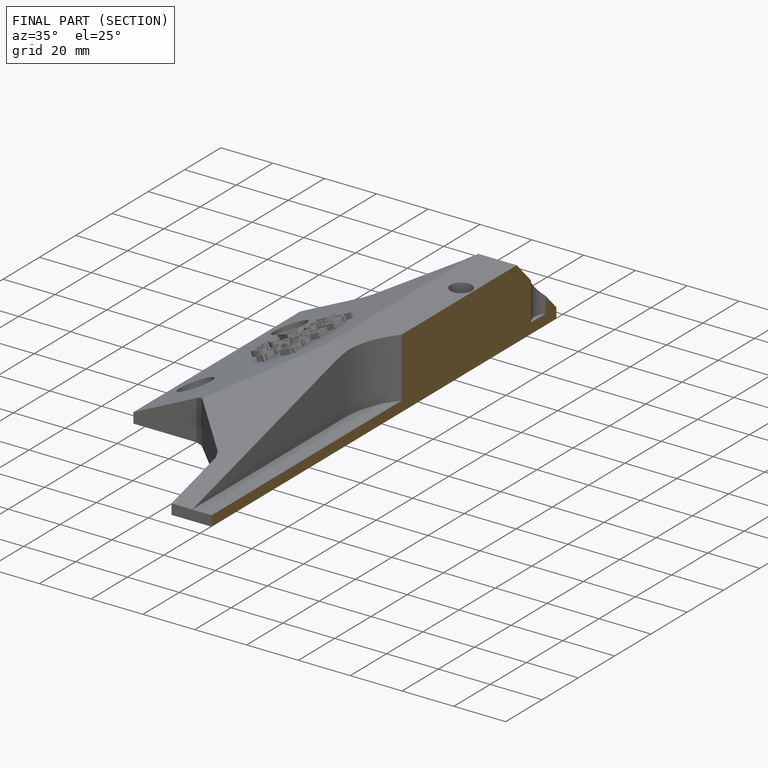
[diagram: finished part — half-section view (interior)]
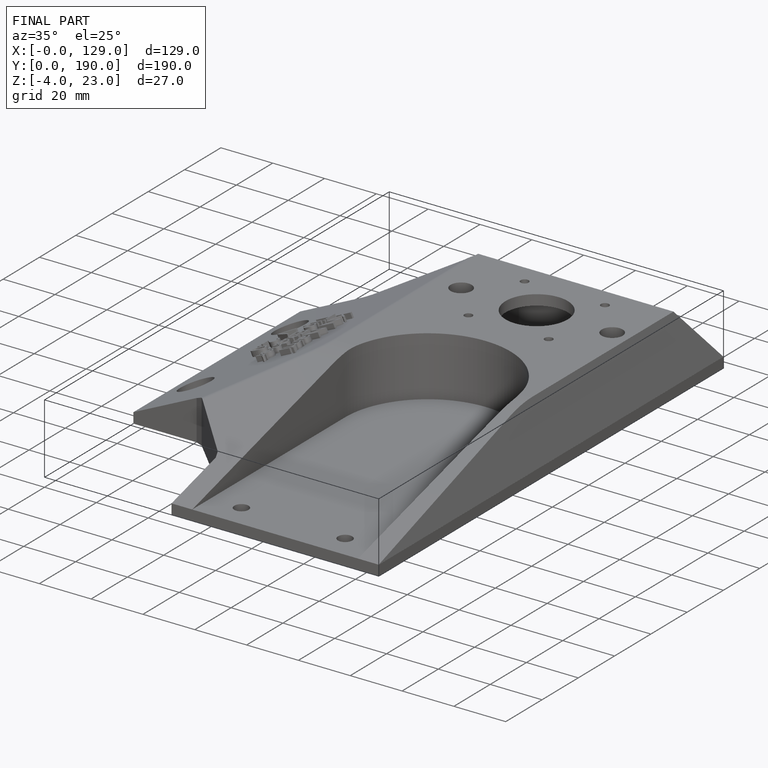
[diagram: finished part — iso view with bounding-box wireframe]
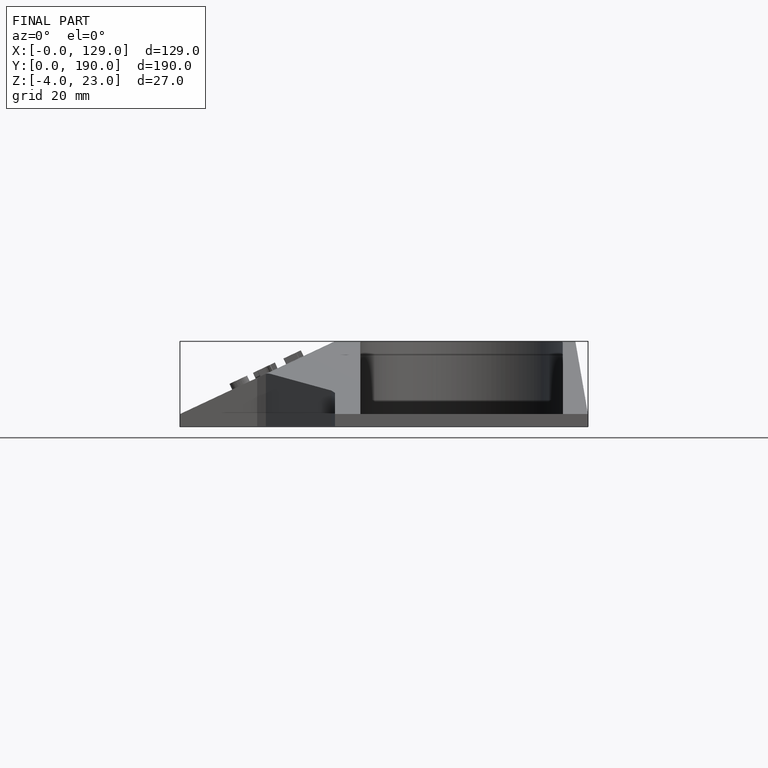
[diagram: finished part — front view with bounding-box wireframe]
